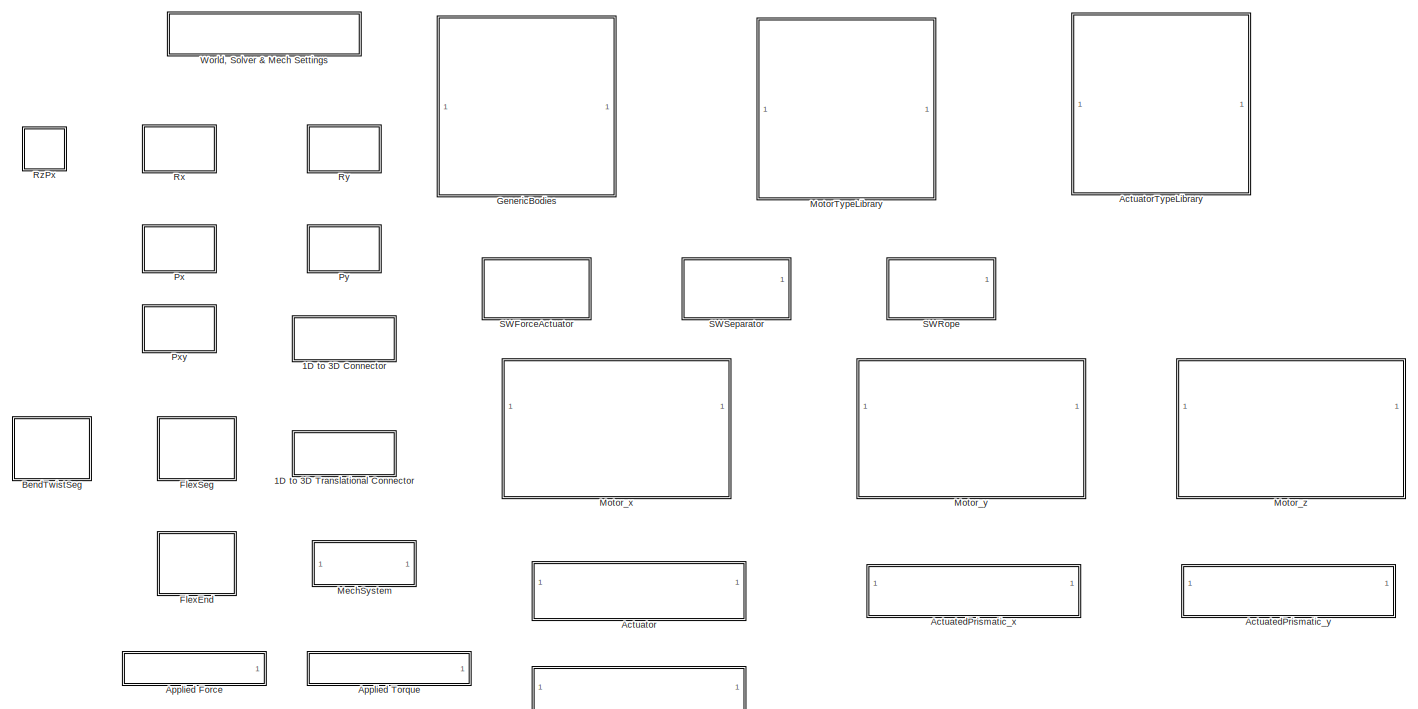
[diagram: root canvas - part 1/2, most of the canvas]
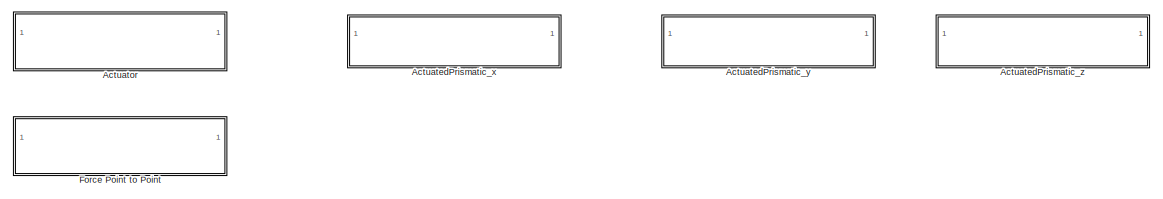
[diagram: root canvas - part 2/2, bottom center region]
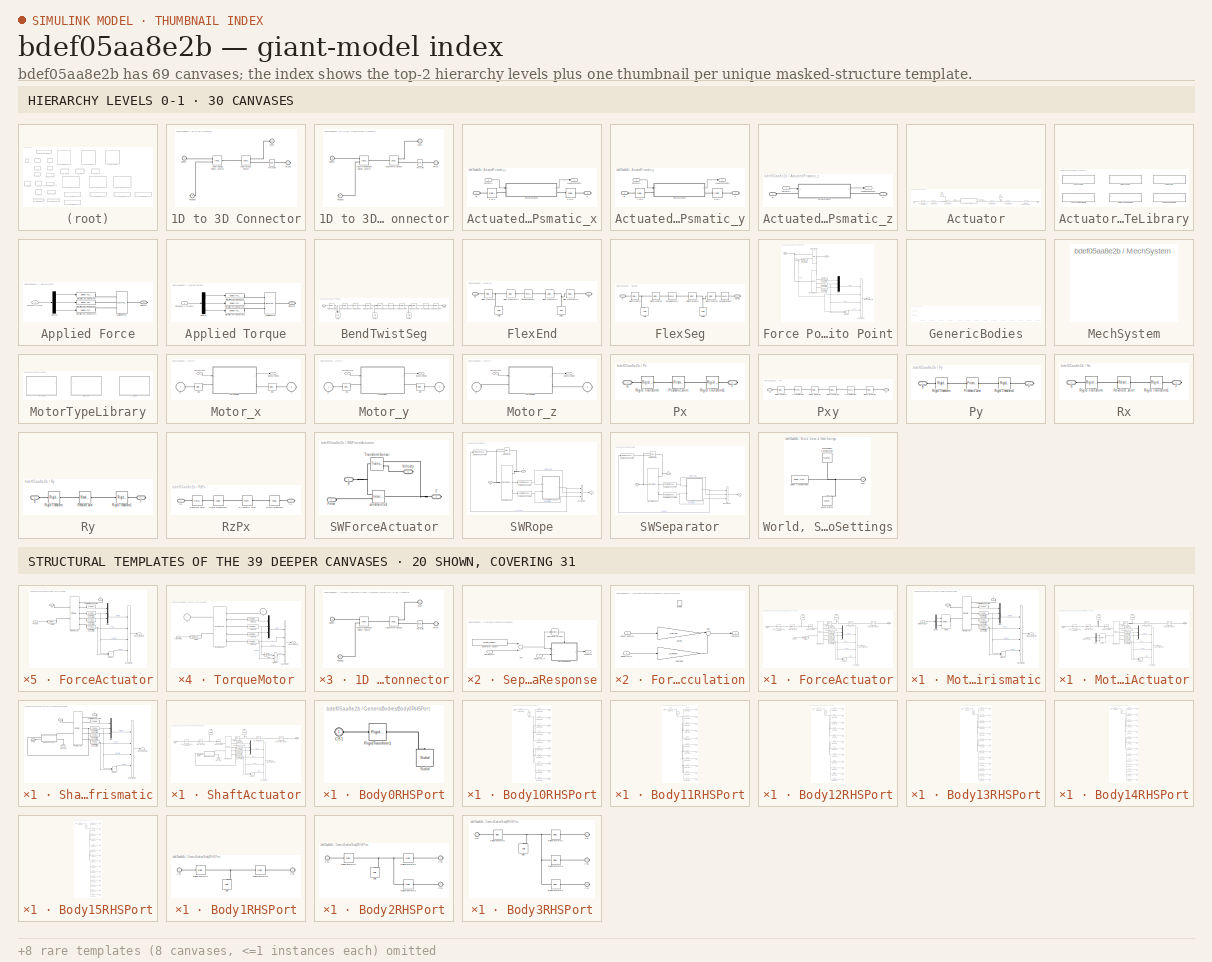
[diagram: thumbnail index - top-2 hierarchy levels (30 canvases) + 20 structural-template representatives of the remaining 39 canvases]
MODEL slx_bdef05aa8e2b
KIND library
CONFIG AbsTol = auto
CONFIG EnableMultiTasking = on
CONFIG FixedStep = auto
CONFIG MaxStep = auto
CONFIG MinStep = auto
CONFIG RelTol = 1e-3
CONFIG SampleTimeConstraint = Unconstrained
CONFIG Solver = ode45
CONFIG SolverName = ode45
CONFIG StartTime = 0.0
CONFIG StopTime = 10.0
BLOCK [SubSystem] 1D to 3D Connector
  Ports = [0, 0, 0, 0, 0, 2, 2]
  RequestExecContextInheritance = off
BLOCK [PMIOPort] 1D to 3D Connector/Housing
  Port = 4
  Side = Right
BLOCK [Reference] 1D to 3D Connector/Ideal Angular Velocity Source  REF=fl_lib/Mechanical/Mechanical Sources/Ideal Angular
Velocity Source
  Ports = [0, 0, 0, 0, 0, 1, 2]
  SourceBlock = fl_lib/Mechanical/Mechanical Sources/Ideal Angular\nVelocity Source
  SourceProductBaseCode = SS
  SourceProductName = Simscape
  SourceType = Ideal Angular\nVelocity Source
BLOCK [Reference] 1D to 3D Connector/Ideal Torque Sensor  REF=fl_lib/Mechanical/Mechanical Sensors/Ideal Torque Sensor
  Ports = [0, 0, 0, 0, 0, 1, 2]
  SourceBlock = fl_lib/Mechanical/Mechanical Sensors/Ideal Torque Sensor
  SourceProductBaseCode = SS
  SourceProductName = Simscape
  SourceType = Ideal Torque Sensor
BLOCK [Reference] 1D to 3D Connector/PS Gain  REF=fl_lib/Physical Signals/Functions/PS Gain
  Ports = [0, 0, 0, 0, 0, 1, 1]
  SourceBlock = fl_lib/Physical Signals/Functions/PS Gain
  SourceProductBaseCode = SS
  SourceProductName = Simscape
  SourceType = PS Gain
BLOCK [PMIOPort] 1D to 3D Connector/Shaft
  Port = 3
  Side = Left
BLOCK [PMIOPort] 1D to 3D Connector/Torque
  Side = Right
BLOCK [PMIOPort] 1D to 3D Connector/Velocity
  Port = 2
  Side = Left
BLOCK [SubSystem] 1D to 3D Translational Connector
  Ports = [0, 0, 0, 0, 0, 2, 2]
  RequestExecContextInheritance = off
  Tag = Mech1D3DConverter
BLOCK [PMIOPort] 1D to 3D Translational Connector/Force
  Side = Right
BLOCK [PMIOPort] 1D to 3D Translational Connector/Housing
  Port = 4
  Side = Right
BLOCK [Reference] 1D to 3D Translational Connector/Ideal Force Sensor  REF=fl_lib/Mechanical/Mechanical Sensors/Ideal Force Sensor
  Ports = [0, 0, 0, 0, 0, 1, 2]
  SourceBlock = fl_lib/Mechanical/Mechanical Sensors/Ideal Force Sensor
  SourceProductBaseCode = SS
  SourceProductName = Simscape
  SourceType = Ideal Force Sensor
BLOCK [Reference] 1D to 3D Translational Connector/Ideal Translational Velocity Source  REF=fl_lib/Mechanical/Mechanical Sources/Ideal Translational
Velocity Source
  Ports = [0, 0, 0, 0, 0, 1, 2]
  SourceBlock = fl_lib/Mechanical/Mechanical Sources/Ideal Translational\nVelocity Source
  SourceProductBaseCode = SS
  SourceProductName = Simscape
  SourceType = Ideal Translational\nVelocity Source
BLOCK [Reference] 1D to 3D Translational Connector/PS Gain  REF=fl_lib/Physical Signals/Functions/PS Gain
  Ports = [0, 0, 0, 0, 0, 1, 1]
  SourceBlock = fl_lib/Physical Signals/Functions/PS Gain
  SourceProductBaseCode = SS
  SourceProductName = Simscape
  SourceType = PS Gain
BLOCK [PMIOPort] 1D to 3D Translational Connector/Shaft
  Port = 3
  Side = Left
BLOCK [PMIOPort] 1D to 3D Translational Connector/Velocity
  Port = 2
  Side = Left
BLOCK [SubSystem] ActuatedPrismatic_x
  Ports = [1, 1, 0, 0, 0, 1, 1]
  RequestExecContextInheritance = off
  Tag = Force
BLOCK [PMIOPort] ActuatedPrismatic_x/B
  Side = Left
BLOCK [PMIOPort] ActuatedPrismatic_x/F
  Port = 2
  Side = Right
BLOCK [Inport] ActuatedPrismatic_x/Force(N)
  IconDisplay = Port number
BLOCK [SubSystem] ActuatedPrismatic_x/ForceActuator
  Ports = [1, 1, 0, 0, 0, 1, 1]
  RequestExecContextInheritance = off
  Tag = Actuator
BLOCK [PMIOPort] ActuatedPrismatic_x/ForceActuator/B
  Side = Left
BLOCK [BusCreator] ActuatedPrismatic_x/ForceActuator/Bus Creator
  DisplayOption = bar
  InheritFromInputs = on
  Inputs = 4
  Ports = [4, 1]
BLOCK [PMIOPort] ActuatedPrismatic_x/ForceActuator/F
  Port = 2
  Side = Right
BLOCK [Inport] ActuatedPrismatic_x/ForceActuator/Force (N)
  IconDisplay = Port number
BLOCK [Outport] ActuatedPrismatic_x/ForceActuator/Measurements
  IconDisplay = Port number
BLOCK [Mux] ActuatedPrismatic_x/ForceActuator/Mux
  DisplayOption = bar
  Inputs = 3
  Ports = [3, 1]
BLOCK [Reference] ActuatedPrismatic_x/ForceActuator/PS-Simulink Converter  REF=nesl_utility/PS-Simulink
Converter
  Ports = [0, 1, 0, 0, 0, 1]
  SourceBlock = nesl_utility/PS-Simulink\nConverter
  SourceProductBaseCode = SS
  SourceProductName = Simscape
  SourceType = PS-Simulink\nConverter
BLOCK [Reference] ActuatedPrismatic_x/ForceActuator/PS-Simulink Converter1  REF=nesl_utility/PS-Simulink
Converter
  Ports = [0, 1, 0, 0, 0, 1]
  SourceBlock = nesl_utility/PS-Simulink\nConverter
  SourceProductBaseCode = SS
  SourceProductName = Simscape
  SourceType = PS-Simulink\nConverter
BLOCK [Reference] ActuatedPrismatic_x/ForceActuator/PS-Simulink Converter2  REF=nesl_utility/PS-Simulink
Converter
  Ports = [0, 1, 0, 0, 0, 1]
  SourceBlock = nesl_utility/PS-Simulink\nConverter
  SourceProductBaseCode = SS
  SourceProductName = Simscape
  SourceType = PS-Simulink\nConverter
BLOCK [Reference] ActuatedPrismatic_x/ForceActuator/PS-Simulink Converter3  REF=nesl_utility/PS-Simulink
Converter
  Ports = [0, 1, 0, 0, 0, 1]
  SourceBlock = nesl_utility/PS-Simulink\nConverter
  SourceProductBaseCode = SS
  SourceProductName = Simscape
  SourceType = PS-Simulink\nConverter
BLOCK [Reference] ActuatedPrismatic_x/ForceActuator/Prismatic Joint  REF=sm_lib/Joints/Prismatic
Joint
  Ports = [0, 0, 0, 0, 0, 2, 5]
  SourceBlock = sm_lib/Joints/Prismatic\nJoint
  SourceProductBaseCode = MS
  SourceProductName = Simscape Multibody
  SourceType = Prismatic\nJoint
BLOCK [Product] ActuatedPrismatic_x/ForceActuator/Product
  InputSameDT = off
  OutDataTypeStr = Inherit: Inherit via internal rule
  Ports = [2, 1]
  RndMeth = Floor
  SaturateOnIntegerOverflow = off
BLOCK [Reference] ActuatedPrismatic_x/ForceActuator/UnitsIn  REF=nesl_utility/Simulink-PS
Converter
  Ports = [1, 0, 0, 0, 0, 0, 1]
  SourceBlock = nesl_utility/Simulink-PS\nConverter
  SourceProductBaseCode = SS
  SourceProductName = Simscape
  SourceType = Simulink-PS\nConverter
BLOCK [Outport] ActuatedPrismatic_x/Measurements
  IconDisplay = Port number
BLOCK [Reference] ActuatedPrismatic_x/x to z  REF=sm_lib/Frames and
Transforms/Rigid
Transform
  Ports = [0, 0, 0, 0, 0, 1, 1]
  SourceBlock = sm_lib/Frames and\nTransforms/Rigid\nTransform
  SourceProductBaseCode = MS
  SourceProductName = Simscape Multibody
  SourceType = Rigid\nTransform
BLOCK [Reference] ActuatedPrismatic_x/z to x  REF=sm_lib/Frames and
Transforms/Rigid
Transform
  Ports = [0, 0, 0, 0, 0, 1, 1]
  SourceBlock = sm_lib/Frames and\nTransforms/Rigid\nTransform
  SourceProductBaseCode = MS
  SourceProductName = Simscape Multibody
  SourceType = Rigid\nTransform
BLOCK [SubSystem] ActuatedPrismatic_y
  Ports = [1, 1, 0, 0, 0, 1, 1]
  RequestExecContextInheritance = off
  Tag = Force
BLOCK [PMIOPort] ActuatedPrismatic_y/B
  Side = Left
BLOCK [PMIOPort] ActuatedPrismatic_y/F
  Port = 2
  Side = Right
BLOCK [Inport] ActuatedPrismatic_y/Force(N)
  IconDisplay = Port number
BLOCK [SubSystem] ActuatedPrismatic_y/ForceActuator
  Ports = [1, 1, 0, 0, 0, 1, 1]
  RequestExecContextInheritance = off
  Tag = Actuator
BLOCK [PMIOPort] ActuatedPrismatic_y/ForceActuator/B
  Side = Left
BLOCK [BusCreator] ActuatedPrismatic_y/ForceActuator/Bus Creator
  DisplayOption = bar
  InheritFromInputs = on
  Inputs = 4
  Ports = [4, 1]
BLOCK [PMIOPort] ActuatedPrismatic_y/ForceActuator/F
  Port = 2
  Side = Right
BLOCK [Inport] ActuatedPrismatic_y/ForceActuator/Force (N)
  IconDisplay = Port number
BLOCK [Outport] ActuatedPrismatic_y/ForceActuator/Measurements
  IconDisplay = Port number
BLOCK [Mux] ActuatedPrismatic_y/ForceActuator/Mux
  DisplayOption = bar
  Inputs = 3
  Ports = [3, 1]
BLOCK [Reference] ActuatedPrismatic_y/ForceActuator/PS-Simulink Converter  REF=nesl_utility/PS-Simulink
Converter
  Ports = [0, 1, 0, 0, 0, 1]
  SourceBlock = nesl_utility/PS-Simulink\nConverter
  SourceProductBaseCode = SS
  SourceProductName = Simscape
  SourceType = PS-Simulink\nConverter
BLOCK [Reference] ActuatedPrismatic_y/ForceActuator/PS-Simulink Converter1  REF=nesl_utility/PS-Simulink
Converter
  Ports = [0, 1, 0, 0, 0, 1]
  SourceBlock = nesl_utility/PS-Simulink\nConverter
  SourceProductBaseCode = SS
  SourceProductName = Simscape
  SourceType = PS-Simulink\nConverter
BLOCK [Reference] ActuatedPrismatic_y/ForceActuator/PS-Simulink Converter2  REF=nesl_utility/PS-Simulink
Converter
  Ports = [0, 1, 0, 0, 0, 1]
  SourceBlock = nesl_utility/PS-Simulink\nConverter
  SourceProductBaseCode = SS
  SourceProductName = Simscape
  SourceType = PS-Simulink\nConverter
BLOCK [Reference] ActuatedPrismatic_y/ForceActuator/PS-Simulink Converter3  REF=nesl_utility/PS-Simulink
Converter
  Ports = [0, 1, 0, 0, 0, 1]
  SourceBlock = nesl_utility/PS-Simulink\nConverter
  SourceProductBaseCode = SS
  SourceProductName = Simscape
  SourceType = PS-Simulink\nConverter
BLOCK [Reference] ActuatedPrismatic_y/ForceActuator/Prismatic Joint  REF=sm_lib/Joints/Prismatic
Joint
  Ports = [0, 0, 0, 0, 0, 2, 5]
  SourceBlock = sm_lib/Joints/Prismatic\nJoint
  SourceProductBaseCode = MS
  SourceProductName = Simscape Multibody
  SourceType = Prismatic\nJoint
BLOCK [Product] ActuatedPrismatic_y/ForceActuator/Product
  InputSameDT = off
  OutDataTypeStr = Inherit: Inherit via internal rule
  Ports = [2, 1]
  RndMeth = Floor
  SaturateOnIntegerOverflow = off
BLOCK [Reference] ActuatedPrismatic_y/ForceActuator/UnitsIn  REF=nesl_utility/Simulink-PS
Converter
  Ports = [1, 0, 0, 0, 0, 0, 1]
  SourceBlock = nesl_utility/Simulink-PS\nConverter
  SourceProductBaseCode = SS
  SourceProductName = Simscape
  SourceType = Simulink-PS\nConverter
BLOCK [Outport] ActuatedPrismatic_y/Measurements
  IconDisplay = Port number
BLOCK [Reference] ActuatedPrismatic_y/y to z  REF=sm_lib/Frames and
Transforms/Rigid
Transform
  Ports = [0, 0, 0, 0, 0, 1, 1]
  SourceBlock = sm_lib/Frames and\nTransforms/Rigid\nTransform
  SourceProductBaseCode = MS
  SourceProductName = Simscape Multibody
  SourceType = Rigid\nTransform
BLOCK [Reference] ActuatedPrismatic_y/z to y   REF=sm_lib/Frames and
Transforms/Rigid
Transform
  Ports = [0, 0, 0, 0, 0, 1, 1]
  SourceBlock = sm_lib/Frames and\nTransforms/Rigid\nTransform
  SourceProductBaseCode = MS
  SourceProductName = Simscape Multibody
  SourceType = Rigid\nTransform
BLOCK [SubSystem] ActuatedPrismatic_z
  Ports = [1, 1, 0, 0, 0, 1, 1]
  RequestExecContextInheritance = off
  Tag = Force
BLOCK [PMIOPort] ActuatedPrismatic_z/B
  Side = Left
BLOCK [PMIOPort] ActuatedPrismatic_z/F
  Port = 2
  Side = Right
BLOCK [Inport] ActuatedPrismatic_z/Force(N)
  IconDisplay = Port number
BLOCK [SubSystem] ActuatedPrismatic_z/ForceActuator
  Ports = [1, 1, 0, 0, 0, 1, 1]
  RequestExecContextInheritance = off
  Tag = Actuator
BLOCK [PMIOPort] ActuatedPrismatic_z/ForceActuator/B
  Side = Left
BLOCK [BusCreator] ActuatedPrismatic_z/ForceActuator/Bus Creator
  DisplayOption = bar
  InheritFromInputs = on
  Inputs = 4
  Ports = [4, 1]
BLOCK [PMIOPort] ActuatedPrismatic_z/ForceActuator/F
  Port = 2
  Side = Right
BLOCK [Inport] ActuatedPrismatic_z/ForceActuator/Force (N)
  IconDisplay = Port number
BLOCK [Outport] ActuatedPrismatic_z/ForceActuator/Measurements
  IconDisplay = Port number
BLOCK [Mux] ActuatedPrismatic_z/ForceActuator/Mux
  DisplayOption = bar
  Inputs = 3
  Ports = [3, 1]
BLOCK [Reference] ActuatedPrismatic_z/ForceActuator/PS-Simulink Converter  REF=nesl_utility/PS-Simulink
Converter
  Ports = [0, 1, 0, 0, 0, 1]
  SourceBlock = nesl_utility/PS-Simulink\nConverter
  SourceProductBaseCode = SS
  SourceProductName = Simscape
  SourceType = PS-Simulink\nConverter
BLOCK [Reference] ActuatedPrismatic_z/ForceActuator/PS-Simulink Converter1  REF=nesl_utility/PS-Simulink
Converter
  Ports = [0, 1, 0, 0, 0, 1]
  SourceBlock = nesl_utility/PS-Simulink\nConverter
  SourceProductBaseCode = SS
  SourceProductName = Simscape
  SourceType = PS-Simulink\nConverter
BLOCK [Reference] ActuatedPrismatic_z/ForceActuator/PS-Simulink Converter2  REF=nesl_utility/PS-Simulink
Converter
  Ports = [0, 1, 0, 0, 0, 1]
  SourceBlock = nesl_utility/PS-Simulink\nConverter
  SourceProductBaseCode = SS
  SourceProductName = Simscape
  SourceType = PS-Simulink\nConverter
BLOCK [Reference] ActuatedPrismatic_z/ForceActuator/PS-Simulink Converter3  REF=nesl_utility/PS-Simulink
Converter
  Ports = [0, 1, 0, 0, 0, 1]
  SourceBlock = nesl_utility/PS-Simulink\nConverter
  SourceProductBaseCode = SS
  SourceProductName = Simscape
  SourceType = PS-Simulink\nConverter
BLOCK [Reference] ActuatedPrismatic_z/ForceActuator/Prismatic Joint  REF=sm_lib/Joints/Prismatic
Joint
  Ports = [0, 0, 0, 0, 0, 2, 5]
  SourceBlock = sm_lib/Joints/Prismatic\nJoint
  SourceProductBaseCode = MS
  SourceProductName = Simscape Multibody
  SourceType = Prismatic\nJoint
BLOCK [Product] ActuatedPrismatic_z/ForceActuator/Product
  InputSameDT = off
  OutDataTypeStr = Inherit: Inherit via internal rule
  Ports = [2, 1]
  RndMeth = Floor
  SaturateOnIntegerOverflow = off
BLOCK [Reference] ActuatedPrismatic_z/ForceActuator/UnitsIn  REF=nesl_utility/Simulink-PS
Converter
  Ports = [1, 0, 0, 0, 0, 0, 1]
  SourceBlock = nesl_utility/Simulink-PS\nConverter
  SourceProductBaseCode = SS
  SourceProductName = Simscape
  SourceType = Simulink-PS\nConverter
BLOCK [Outport] ActuatedPrismatic_z/Measurements
  IconDisplay = Port number
BLOCK [SubSystem] Actuator
  Ports = [1, 1, 0, 0, 0, 1, 1]
  RequestExecContextInheritance = off
  Tag = Force
BLOCK [PMIOPort] Actuator/B
  Side = Left
BLOCK [PMIOPort] Actuator/F
  Port = 2
  Side = Right
BLOCK [Inport] Actuator/Force(N)
  IconDisplay = Port number
BLOCK [SubSystem] Actuator/ForceActuator
  Ports = [1, 1, 0, 0, 0, 1, 1]
  RequestExecContextInheritance = off
  Tag = Actuator
BLOCK [PMIOPort] Actuator/ForceActuator/B
  Side = Left
BLOCK [BusCreator] Actuator/ForceActuator/Bus Creator
  DisplayOption = bar
  InheritFromInputs = on
  Inputs = 4
  Ports = [4, 1]
BLOCK [PMIOPort] Actuator/ForceActuator/F
  Port = 2
  Side = Right
BLOCK [Inport] Actuator/ForceActuator/Force (N)
  IconDisplay = Port number
BLOCK [Outport] Actuator/ForceActuator/Measurements
  IconDisplay = Port number
BLOCK [Mux] Actuator/ForceActuator/Mux
  DisplayOption = bar
  Inputs = 3
  Ports = [3, 1]
BLOCK [Reference] Actuator/ForceActuator/PS-Simulink Converter  REF=nesl_utility/PS-Simulink
Converter
  Ports = [0, 1, 0, 0, 0, 1]
  SourceBlock = nesl_utility/PS-Simulink\nConverter
  SourceProductBaseCode = SS
  SourceProductName = Simscape
  SourceType = PS-Simulink\nConverter
BLOCK [Reference] Actuator/ForceActuator/PS-Simulink Converter1  REF=nesl_utility/PS-Simulink
Converter
  Ports = [0, 1, 0, 0, 0, 1]
  SourceBlock = nesl_utility/PS-Simulink\nConverter
  SourceProductBaseCode = SS
  SourceProductName = Simscape
  SourceType = PS-Simulink\nConverter
BLOCK [Reference] Actuator/ForceActuator/PS-Simulink Converter2  REF=nesl_utility/PS-Simulink
Converter
  Ports = [0, 1, 0, 0, 0, 1]
  SourceBlock = nesl_utility/PS-Simulink\nConverter
  SourceProductBaseCode = SS
  SourceProductName = Simscape
  SourceType = PS-Simulink\nConverter
BLOCK [Reference] Actuator/ForceActuator/PS-Simulink Converter3  REF=nesl_utility/PS-Simulink
Converter
  Ports = [0, 1, 0, 0, 0, 1]
  SourceBlock = nesl_utility/PS-Simulink\nConverter
  SourceProductBaseCode = SS
  SourceProductName = Simscape
  SourceType = PS-Simulink\nConverter
BLOCK [Reference] Actuator/ForceActuator/Prismatic Joint  REF=sm_lib/Joints/Prismatic
Joint
  Ports = [0, 0, 0, 0, 0, 2, 5]
  SourceBlock = sm_lib/Joints/Prismatic\nJoint
  SourceProductBaseCode = MS
  SourceProductName = Simscape Multibody
  SourceType = Prismatic\nJoint
BLOCK [Product] Actuator/ForceActuator/Product
  InputSameDT = off
  OutDataTypeStr = Inherit: Inherit via internal rule
  Ports = [2, 1]
  RndMeth = Floor
  SaturateOnIntegerOverflow = off
BLOCK [Reference] Actuator/ForceActuator/UnitsIn  REF=nesl_utility/Simulink-PS
Converter
  Ports = [1, 0, 0, 0, 0, 0, 1]
  SourceBlock = nesl_utility/Simulink-PS\nConverter
  SourceProductBaseCode = SS
  SourceProductName = Simscape
  SourceType = Simulink-PS\nConverter
BLOCK [Outport] Actuator/Measurements
  IconDisplay = Port number
BLOCK [Reference] Actuator/RevXFor_ExtensionActuator  REF=sm_lib/Joints/Universal
Joint
  Ports = [0, 0, 0, 0, 0, 1, 1]
  SourceBlock = sm_lib/Joints/Universal\nJoint
  SourceProductBaseCode = MS
  SourceProductName = Simscape Multibody
  SourceType = Universal\nJoint
BLOCK [Reference] Actuator/Rigid Transform  REF=sm_lib/Frames and
Transforms/Rigid
Transform
  Ports = [0, 0, 0, 0, 0, 1, 1]
  SourceBlock = sm_lib/Frames and\nTransforms/Rigid\nTransform
  SourceProductBaseCode = MS
  SourceProductName = Simscape Multibody
  SourceType = Rigid\nTransform
BLOCK [Reference] Actuator/Rigid Transform2  REF=sm_lib/Frames and
Transforms/Rigid
Transform
  Ports = [0, 0, 0, 0, 0, 1, 1]
  SourceBlock = sm_lib/Frames and\nTransforms/Rigid\nTransform
  SourceProductBaseCode = MS
  SourceProductName = Simscape Multibody
  SourceType = Rigid\nTransform
BLOCK [Reference] Actuator/Rigid Transform3  REF=sm_lib/Frames and
Transforms/Rigid
Transform
  Ports = [0, 0, 0, 0, 0, 1, 1]
  SourceBlock = sm_lib/Frames and\nTransforms/Rigid\nTransform
  SourceProductBaseCode = MS
  SourceProductName = Simscape Multibody
  SourceType = Rigid\nTransform
BLOCK [Reference] Actuator/Solid  REF=sm_lib/Body Elements/Solid
  Ports = [0, 0, 0, 0, 0, 0, 1]
  SourceBlock = sm_lib/Body Elements/Solid
  SourceProductBaseCode = MS
  SourceProductName = Simscape Multibody
  SourceType = Solid
BLOCK [Reference] Actuator/Solid1  REF=sm_lib/Body Elements/Solid
  Ports = [0, 0, 0, 0, 0, 0, 1]
  SourceBlock = sm_lib/Body Elements/Solid
  SourceProductBaseCode = MS
  SourceProductName = Simscape Multibody
  SourceType = Solid
BLOCK [Reference] Actuator/SphericalFor_ExtensionActuator  REF=sm_lib/Joints/Spherical
Joint
  Ports = [0, 0, 0, 0, 0, 1, 1]
  SourceBlock = sm_lib/Joints/Spherical\nJoint
  SourceProductBaseCode = MS
  SourceProductName = Simscape Multibody
  SourceType = Spherical\nJoint
BLOCK [Reference] Actuator/TransformThatSetsF  REF=sm_lib/Frames and
Transforms/Rigid
Transform
  Ports = [0, 0, 0, 0, 0, 1, 1]
  SourceBlock = sm_lib/Frames and\nTransforms/Rigid\nTransform
  SourceProductBaseCode = MS
  SourceProductName = Simscape Multibody
  SourceType = Rigid\nTransform
BLOCK [SubSystem] ActuatorTypeLibrary
  Ports = []
  RequestExecContextInheritance = off
BLOCK [SubSystem] ActuatorTypeLibrary/ForceActuatedPrismatic
  Ports = [1, 1, 0, 0, 0, 1, 1]
  RequestExecContextInheritance = off
  Tag = Actuator
BLOCK [PMIOPort] ActuatorTypeLibrary/ForceActuatedPrismatic/B
  Side = Left
BLOCK [BusCreator] ActuatorTypeLibrary/ForceActuatedPrismatic/Bus Creator
  DisplayOption = bar
  InheritFromInputs = on
  Inputs = 4
  Ports = [4, 1]
BLOCK [PMIOPort] ActuatorTypeLibrary/ForceActuatedPrismatic/F
  Port = 2
  Side = Right
BLOCK [Inport] ActuatorTypeLibrary/ForceActuatedPrismatic/Force (N)
  IconDisplay = Port number
BLOCK [Outport] ActuatorTypeLibrary/ForceActuatedPrismatic/Measurements
  IconDisplay = Port number
BLOCK [Mux] ActuatorTypeLibrary/ForceActuatedPrismatic/Mux
  DisplayOption = bar
  Inputs = 3
  Ports = [3, 1]
BLOCK [Reference] ActuatorTypeLibrary/ForceActuatedPrismatic/PS-Simulink Converter  REF=nesl_utility/PS-Simulink
Converter
  Ports = [0, 1, 0, 0, 0, 1]
  SourceBlock = nesl_utility/PS-Simulink\nConverter
  SourceProductBaseCode = SS
  SourceProductName = Simscape
  SourceType = PS-Simulink\nConverter
BLOCK [Reference] ActuatorTypeLibrary/ForceActuatedPrismatic/PS-Simulink Converter1  REF=nesl_utility/PS-Simulink
Converter
  Ports = [0, 1, 0, 0, 0, 1]
  SourceBlock = nesl_utility/PS-Simulink\nConverter
  SourceProductBaseCode = SS
  SourceProductName = Simscape
  SourceType = PS-Simulink\nConverter
BLOCK [Reference] ActuatorTypeLibrary/ForceActuatedPrismatic/PS-Simulink Converter2  REF=nesl_utility/PS-Simulink
Converter
  Ports = [0, 1, 0, 0, 0, 1]
  SourceBlock = nesl_utility/PS-Simulink\nConverter
  SourceProductBaseCode = SS
  SourceProductName = Simscape
  SourceType = PS-Simulink\nConverter
BLOCK [Reference] ActuatorTypeLibrary/ForceActuatedPrismatic/PS-Simulink Converter3  REF=nesl_utility/PS-Simulink
Converter
  Ports = [0, 1, 0, 0, 0, 1]
  SourceBlock = nesl_utility/PS-Simulink\nConverter
  SourceProductBaseCode = SS
  SourceProductName = Simscape
  SourceType = PS-Simulink\nConverter
BLOCK [Reference] ActuatorTypeLibrary/ForceActuatedPrismatic/Prismatic Joint  REF=sm_lib/Joints/Prismatic
Joint
  Ports = [0, 0, 0, 0, 0, 2, 5]
  SourceBlock = sm_lib/Joints/Prismatic\nJoint
  SourceProductBaseCode = MS
  SourceProductName = Simscape Multibody
  SourceType = Prismatic\nJoint
BLOCK [Product] ActuatorTypeLibrary/ForceActuatedPrismatic/Product
  InputSameDT = off
  OutDataTypeStr = Inherit: Inherit via internal rule
  Ports = [2, 1]
  RndMeth = Floor
  SaturateOnIntegerOverflow = off
BLOCK [Reference] ActuatorTypeLibrary/ForceActuatedPrismatic/UnitsIn  REF=nesl_utility/Simulink-PS
Converter
  Ports = [1, 0, 0, 0, 0, 0, 1]
  SourceBlock = nesl_utility/Simulink-PS\nConverter
  SourceProductBaseCode = SS
  SourceProductName = Simscape
  SourceType = Simulink-PS\nConverter
BLOCK [SubSystem] ActuatorTypeLibrary/ForceActuator
  Ports = [1, 1, 0, 0, 0, 1, 1]
  RequestExecContextInheritance = off
  Tag = Actuator
BLOCK [PMIOPort] ActuatorTypeLibrary/ForceActuator/B
  Side = Left
BLOCK [BusCreator] ActuatorTypeLibrary/ForceActuator/Bus Creator
  DisplayOption = bar
  InheritFromInputs = on
  Inputs = 4
  Ports = [4, 1]
BLOCK [PMIOPort] ActuatorTypeLibrary/ForceActuator/F
  Port = 2
  Side = Right
BLOCK [Inport] ActuatorTypeLibrary/ForceActuator/Force (N)
  IconDisplay = Port number
BLOCK [Outport] ActuatorTypeLibrary/ForceActuator/Measurements
  IconDisplay = Port number
BLOCK [Mux] ActuatorTypeLibrary/ForceActuator/Mux
  DisplayOption = bar
  Inputs = 3
  Ports = [3, 1]
BLOCK [Reference] ActuatorTypeLibrary/ForceActuator/PS-Simulink Converter  REF=nesl_utility/PS-Simulink
Converter
  Ports = [0, 1, 0, 0, 0, 1]
  SourceBlock = nesl_utility/PS-Simulink\nConverter
  SourceProductBaseCode = SS
  SourceProductName = Simscape
  SourceType = PS-Simulink\nConverter
BLOCK [Reference] ActuatorTypeLibrary/ForceActuator/PS-Simulink Converter1  REF=nesl_utility/PS-Simulink
Converter
  Ports = [0, 1, 0, 0, 0, 1]
  SourceBlock = nesl_utility/PS-Simulink\nConverter
  SourceProductBaseCode = SS
  SourceProductName = Simscape
  SourceType = PS-Simulink\nConverter
BLOCK [Reference] ActuatorTypeLibrary/ForceActuator/PS-Simulink Converter2  REF=nesl_utility/PS-Simulink
Converter
  Ports = [0, 1, 0, 0, 0, 1]
  SourceBlock = nesl_utility/PS-Simulink\nConverter
  SourceProductBaseCode = SS
  SourceProductName = Simscape
  SourceType = PS-Simulink\nConverter
BLOCK [Reference] ActuatorTypeLibrary/ForceActuator/PS-Simulink Converter3  REF=nesl_utility/PS-Simulink
Converter
  Ports = [0, 1, 0, 0, 0, 1]
  SourceBlock = nesl_utility/PS-Simulink\nConverter
  SourceProductBaseCode = SS
  SourceProductName = Simscape
  SourceType = PS-Simulink\nConverter
BLOCK [Reference] ActuatorTypeLibrary/ForceActuator/Prismatic Joint  REF=sm_lib/Joints/Prismatic
Joint
  Ports = [0, 0, 0, 0, 0, 2, 5]
  SourceBlock = sm_lib/Joints/Prismatic\nJoint
  SourceProductBaseCode = MS
  SourceProductName = Simscape Multibody
  SourceType = Prismatic\nJoint
BLOCK [Product] ActuatorTypeLibrary/ForceActuator/Product
  InputSameDT = off
  OutDataTypeStr = Inherit: Inherit via internal rule
  Ports = [2, 1]
  RndMeth = Floor
  SaturateOnIntegerOverflow = off
BLOCK [Reference] ActuatorTypeLibrary/ForceActuator/RevXFor_ExtensionActuator  REF=sm_lib/Joints/Universal
Joint
  Ports = [0, 0, 0, 0, 0, 1, 1]
  SourceBlock = sm_lib/Joints/Universal\nJoint
  SourceProductBaseCode = MS
  SourceProductName = Simscape Multibody
  SourceType = Universal\nJoint
BLOCK [Reference] ActuatorTypeLibrary/ForceActuator/Rigid Transform  REF=sm_lib/Frames and
Transforms/Rigid
Transform
  Ports = [0, 0, 0, 0, 0, 1, 1]
  SourceBlock = sm_lib/Frames and\nTransforms/Rigid\nTransform
  SourceProductBaseCode = MS
  SourceProductName = Simscape Multibody
  SourceType = Rigid\nTransform
BLOCK [Reference] ActuatorTypeLibrary/ForceActuator/Rigid Transform2  REF=sm_lib/Frames and
Transforms/Rigid
Transform
  Ports = [0, 0, 0, 0, 0, 1, 1]
  SourceBlock = sm_lib/Frames and\nTransforms/Rigid\nTransform
  SourceProductBaseCode = MS
  SourceProductName = Simscape Multibody
  SourceType = Rigid\nTransform
BLOCK [Reference] ActuatorTypeLibrary/ForceActuator/Rigid Transform3  REF=sm_lib/Frames and
Transforms/Rigid
Transform
  Ports = [0, 0, 0, 0, 0, 1, 1]
  SourceBlock = sm_lib/Frames and\nTransforms/Rigid\nTransform
  SourceProductBaseCode = MS
  SourceProductName = Simscape Multibody
  SourceType = Rigid\nTransform
BLOCK [Reference] ActuatorTypeLibrary/ForceActuator/Solid  REF=sm_lib/Body Elements/Solid
  Ports = [0, 0, 0, 0, 0, 0, 1]
  SourceBlock = sm_lib/Body Elements/Solid
  SourceProductBaseCode = MS
  SourceProductName = Simscape Multibody
  SourceType = Solid
BLOCK [Reference] ActuatorTypeLibrary/ForceActuator/Solid1  REF=sm_lib/Body Elements/Solid
  Ports = [0, 0, 0, 0, 0, 0, 1]
  SourceBlock = sm_lib/Body Elements/Solid
  SourceProductBaseCode = MS
  SourceProductName = Simscape Multibody
  SourceType = Solid
BLOCK [Reference] ActuatorTypeLibrary/ForceActuator/SphericalFor_ExtensionActuator  REF=sm_lib/Joints/Spherical
Joint
  Ports = [0, 0, 0, 0, 0, 1, 1]
  SourceBlock = sm_lib/Joints/Spherical\nJoint
  SourceProductBaseCode = MS
  SourceProductName = Simscape Multibody
  SourceType = Spherical\nJoint
BLOCK [Reference] ActuatorTypeLibrary/ForceActuator/TransformThatSetsF  REF=sm_lib/Frames and
Transforms/Rigid
Transform
  Ports = [0, 0, 0, 0, 0, 1, 1]
  SourceBlock = sm_lib/Frames and\nTransforms/Rigid\nTransform
  SourceProductBaseCode = MS
  SourceProductName = Simscape Multibody
  SourceType = Rigid\nTransform
BLOCK [Reference] ActuatorTypeLibrary/ForceActuator/UnitsIn  REF=nesl_utility/Simulink-PS
Converter
  Ports = [1, 0, 0, 0, 0, 0, 1]
  SourceBlock = nesl_utility/Simulink-PS\nConverter
  SourceProductBaseCode = SS
  SourceProductName = Simscape
  SourceType = Simulink-PS\nConverter
BLOCK [SubSystem] ActuatorTypeLibrary/MotionActuatedPrismatic
  Ports = [1, 1, 0, 0, 0, 1, 1]
  RequestExecContextInheritance = off
  Tag = Actuator
BLOCK [PMIOPort] ActuatorTypeLibrary/MotionActuatedPrismatic/B
  Side = Left
BLOCK [BusCreator] ActuatorTypeLibrary/MotionActuatedPrismatic/Bus Creator
  DisplayOption = bar
  InheritFromInputs = on
  Inputs = 4
  Ports = [4, 1]
BLOCK [Demux] ActuatorTypeLibrary/MotionActuatedPrismatic/Demux
  DisplayOption = bar
  Outputs = 3
  Ports = [1, 3]
BLOCK [PMIOPort] ActuatorTypeLibrary/MotionActuatedPrismatic/F
  Port = 2
  Side = Right
BLOCK [Outport] ActuatorTypeLibrary/MotionActuatedPrismatic/Measurements
  IconDisplay = Port number
BLOCK [Inport] ActuatorTypeLibrary/MotionActuatedPrismatic/Motion ( pva, m, s )
  IconDisplay = Port number
BLOCK [Mux] ActuatorTypeLibrary/MotionActuatedPrismatic/Mux
  DisplayOption = bar
  Inputs = 3
  Ports = [3, 1]
BLOCK [Reference] ActuatorTypeLibrary/MotionActuatedPrismatic/PS-Simulink Converter  REF=nesl_utility/PS-Simulink
Converter
  Ports = [0, 1, 0, 0, 0, 1]
  SourceBlock = nesl_utility/PS-Simulink\nConverter
  SourceProductBaseCode = SS
  SourceProductName = Simscape
  SourceType = PS-Simulink\nConverter
BLOCK [Reference] ActuatorTypeLibrary/MotionActuatedPrismatic/PS-Simulink Converter1  REF=nesl_utility/PS-Simulink
Converter
  Ports = [0, 1, 0, 0, 0, 1]
  SourceBlock = nesl_utility/PS-Simulink\nConverter
  SourceProductBaseCode = SS
  SourceProductName = Simscape
  SourceType = PS-Simulink\nConverter
BLOCK [Reference] ActuatorTypeLibrary/MotionActuatedPrismatic/PS-Simulink Converter2  REF=nesl_utility/PS-Simulink
Converter
  Ports = [0, 1, 0, 0, 0, 1]
  SourceBlock = nesl_utility/PS-Simulink\nConverter
  SourceProductBaseCode = SS
  SourceProductName = Simscape
  SourceType = PS-Simulink\nConverter
BLOCK [Reference] ActuatorTypeLibrary/MotionActuatedPrismatic/PS-Simulink Converter3  REF=nesl_utility/PS-Simulink
Converter
  Ports = [0, 1, 0, 0, 0, 1]
  SourceBlock = nesl_utility/PS-Simulink\nConverter
  SourceProductBaseCode = SS
  SourceProductName = Simscape
  SourceType = PS-Simulink\nConverter
BLOCK [Reference] ActuatorTypeLibrary/MotionActuatedPrismatic/Prismatic Joint  REF=sm_lib/Joints/Prismatic
Joint
  Ports = [0, 0, 0, 0, 0, 2, 5]
  SourceBlock = sm_lib/Joints/Prismatic\nJoint
  SourceProductBaseCode = MS
  SourceProductName = Simscape Multibody
  SourceType = Prismatic\nJoint
BLOCK [Product] ActuatorTypeLibrary/MotionActuatedPrismatic/Product
  InputSameDT = off
  OutDataTypeStr = Inherit: Inherit via internal rule
  Ports = [2, 1]
  RndMeth = Floor
  SaturateOnIntegerOverflow = off
BLOCK [Reference] ActuatorTypeLibrary/MotionActuatedPrismatic/UnitsIn  REF=nesl_utility/Simulink-PS
Converter
  Ports = [3, 0, 0, 0, 0, 0, 1]
  SourceBlock = nesl_utility/Simulink-PS\nConverter
  SourceProductBaseCode = SS
  SourceProductName = Simscape
  SourceType = Simulink-PS\nConverter
BLOCK [SubSystem] ActuatorTypeLibrary/MotionActuator
  Ports = [1, 1, 0, 0, 0, 1, 1]
  RequestExecContextInheritance = off
  Tag = Actuator
BLOCK [PMIOPort] ActuatorTypeLibrary/MotionActuator/B
  Side = Left
BLOCK [BusCreator] ActuatorTypeLibrary/MotionActuator/Bus Creator
  DisplayOption = bar
  InheritFromInputs = on
  Inputs = 4
  Ports = [4, 1]
BLOCK [Demux] ActuatorTypeLibrary/MotionActuator/Demux
  DisplayOption = bar
  Outputs = 3
  Ports = [1, 3]
BLOCK [PMIOPort] ActuatorTypeLibrary/MotionActuator/F
  Port = 2
  Side = Right
BLOCK [Outport] ActuatorTypeLibrary/MotionActuator/Measurements
  IconDisplay = Port number
BLOCK [Inport] ActuatorTypeLibrary/MotionActuator/Motion ( pva, m, s )
  IconDisplay = Port number
BLOCK [Mux] ActuatorTypeLibrary/MotionActuator/Mux
  DisplayOption = bar
  Inputs = 3
  Ports = [3, 1]
BLOCK [Reference] ActuatorTypeLibrary/MotionActuator/PS-Simulink Converter  REF=nesl_utility/PS-Simulink
Converter
  Ports = [0, 1, 0, 0, 0, 1]
  SourceBlock = nesl_utility/PS-Simulink\nConverter
  SourceProductBaseCode = SS
  SourceProductName = Simscape
  SourceType = PS-Simulink\nConverter
BLOCK [Reference] ActuatorTypeLibrary/MotionActuator/PS-Simulink Converter1  REF=nesl_utility/PS-Simulink
Converter
  Ports = [0, 1, 0, 0, 0, 1]
  SourceBlock = nesl_utility/PS-Simulink\nConverter
  SourceProductBaseCode = SS
  SourceProductName = Simscape
  SourceType = PS-Simulink\nConverter
BLOCK [Reference] ActuatorTypeLibrary/MotionActuator/PS-Simulink Converter2  REF=nesl_utility/PS-Simulink
Converter
  Ports = [0, 1, 0, 0, 0, 1]
  SourceBlock = nesl_utility/PS-Simulink\nConverter
  SourceProductBaseCode = SS
  SourceProductName = Simscape
  SourceType = PS-Simulink\nConverter
BLOCK [Reference] ActuatorTypeLibrary/MotionActuator/PS-Simulink Converter3  REF=nesl_utility/PS-Simulink
Converter
  Ports = [0, 1, 0, 0, 0, 1]
  SourceBlock = nesl_utility/PS-Simulink\nConverter
  SourceProductBaseCode = SS
  SourceProductName = Simscape
  SourceType = PS-Simulink\nConverter
BLOCK [Reference] ActuatorTypeLibrary/MotionActuator/Prismatic Joint  REF=sm_lib/Joints/Prismatic
Joint
  Ports = [0, 0, 0, 0, 0, 2, 5]
  SourceBlock = sm_lib/Joints/Prismatic\nJoint
  SourceProductBaseCode = MS
  SourceProductName = Simscape Multibody
  SourceType = Prismatic\nJoint
BLOCK [Product] ActuatorTypeLibrary/MotionActuator/Product
  InputSameDT = off
  OutDataTypeStr = Inherit: Inherit via internal rule
  Ports = [2, 1]
  RndMeth = Floor
  SaturateOnIntegerOverflow = off
BLOCK [Reference] ActuatorTypeLibrary/MotionActuator/RevXFor_ExtensionActuator  REF=sm_lib/Joints/Universal
Joint
  Ports = [0, 0, 0, 0, 0, 1, 1]
  SourceBlock = sm_lib/Joints/Universal\nJoint
  SourceProductBaseCode = MS
  SourceProductName = Simscape Multibody
  SourceType = Universal\nJoint
BLOCK [Reference] ActuatorTypeLibrary/MotionActuator/Rigid Transform  REF=sm_lib/Frames and
Transforms/Rigid
Transform
  Ports = [0, 0, 0, 0, 0, 1, 1]
  SourceBlock = sm_lib/Frames and\nTransforms/Rigid\nTransform
  SourceProductBaseCode = MS
  SourceProductName = Simscape Multibody
  SourceType = Rigid\nTransform
BLOCK [Reference] ActuatorTypeLibrary/MotionActuator/Rigid Transform2  REF=sm_lib/Frames and
Transforms/Rigid
Transform
  Ports = [0, 0, 0, 0, 0, 1, 1]
  SourceBlock = sm_lib/Frames and\nTransforms/Rigid\nTransform
  SourceProductBaseCode = MS
  SourceProductName = Simscape Multibody
  SourceType = Rigid\nTransform
BLOCK [Reference] ActuatorTypeLibrary/MotionActuator/Rigid Transform3  REF=sm_lib/Frames and
Transforms/Rigid
Transform
  Ports = [0, 0, 0, 0, 0, 1, 1]
  SourceBlock = sm_lib/Frames and\nTransforms/Rigid\nTransform
  SourceProductBaseCode = MS
  SourceProductName = Simscape Multibody
  SourceType = Rigid\nTransform
BLOCK [Reference] ActuatorTypeLibrary/MotionActuator/Solid  REF=sm_lib/Body Elements/Solid
  Ports = [0, 0, 0, 0, 0, 0, 1]
  SourceBlock = sm_lib/Body Elements/Solid
  SourceProductBaseCode = MS
  SourceProductName = Simscape Multibody
  SourceType = Solid
BLOCK [Reference] ActuatorTypeLibrary/MotionActuator/Solid1  REF=sm_lib/Body Elements/Solid
  Ports = [0, 0, 0, 0, 0, 0, 1]
  SourceBlock = sm_lib/Body Elements/Solid
  SourceProductBaseCode = MS
  SourceProductName = Simscape Multibody
  SourceType = Solid
BLOCK [Reference] ActuatorTypeLibrary/MotionActuator/SphericalFor_ExtensionActuator  REF=sm_lib/Joints/Spherical
Joint
  Ports = [0, 0, 0, 0, 0, 1, 1]
  SourceBlock = sm_lib/Joints/Spherical\nJoint
  SourceProductBaseCode = MS
  SourceProductName = Simscape Multibody
  SourceType = Spherical\nJoint
BLOCK [Reference] ActuatorTypeLibrary/MotionActuator/TransformThatSetsF  REF=sm_lib/Frames and
Transforms/Rigid
Transform
  Ports = [0, 0, 0, 0, 0, 1, 1]
  SourceBlock = sm_lib/Frames and\nTransforms/Rigid\nTransform
  SourceProductBaseCode = MS
  SourceProductName = Simscape Multibody
  SourceType = Rigid\nTransform
BLOCK [Reference] ActuatorTypeLibrary/MotionActuator/UnitsIn  REF=nesl_utility/Simulink-PS
Converter
  Ports = [3, 0, 0, 0, 0, 0, 1]
  SourceBlock = nesl_utility/Simulink-PS\nConverter
  SourceProductBaseCode = SS
  SourceProductName = Simscape
  SourceType = Simulink-PS\nConverter
BLOCK [SubSystem] ActuatorTypeLibrary/ShaftActuatedPrismatic
  Ports = [0, 1, 0, 0, 0, 2, 1]
  RequestExecContextInheritance = off
  Tag = Actuator
BLOCK [SubSystem] ActuatorTypeLibrary/ShaftActuatedPrismatic/1D to 3D Connector
  Ports = [0, 0, 0, 0, 0, 2, 2]
  RequestExecContextInheritance = off
  Tag = Mech1D3DConverter
BLOCK [PMIOPort] ActuatorTypeLibrary/ShaftActuatedPrismatic/1D to 3D Connector/Force
  Side = Right
BLOCK [PMIOPort] ActuatorTypeLibrary/ShaftActuatedPrismatic/1D to 3D Connector/Housing
  Port = 4
  Side = Right
BLOCK [Reference] ActuatorTypeLibrary/ShaftActuatedPrismatic/1D to 3D Connector/Ideal Force Sensor  REF=fl_lib/Mechanical/Mechanical Sensors/Ideal Force Sensor
  Ports = [0, 0, 0, 0, 0, 1, 2]
  SourceBlock = fl_lib/Mechanical/Mechanical Sensors/Ideal Force Sensor
  SourceProductBaseCode = SS
  SourceProductName = Simscape
  SourceType = Ideal Force Sensor
BLOCK [Reference] ActuatorTypeLibrary/ShaftActuatedPrismatic/1D to 3D Connector/Ideal Translational Velocity Source  REF=fl_lib/Mechanical/Mechanical Sources/Ideal Translational
Velocity Source
  Ports = [0, 0, 0, 0, 0, 1, 2]
  SourceBlock = fl_lib/Mechanical/Mechanical Sources/Ideal Translational\nVelocity Source
  SourceProductBaseCode = SS
  SourceProductName = Simscape
  SourceType = Ideal Translational\nVelocity Source
BLOCK [Reference] ActuatorTypeLibrary/ShaftActuatedPrismatic/1D to 3D Connector/PS Gain  REF=fl_lib/Physical Signals/Functions/PS Gain
  Ports = [0, 0, 0, 0, 0, 1, 1]
  SourceBlock = fl_lib/Physical Signals/Functions/PS Gain
  SourceProductBaseCode = SS
  SourceProductName = Simscape
  SourceType = PS Gain
BLOCK [PMIOPort] ActuatorTypeLibrary/ShaftActuatedPrismatic/1D to 3D Connector/Shaft
  Port = 3
  Side = Left
BLOCK [PMIOPort] ActuatorTypeLibrary/ShaftActuatedPrismatic/1D to 3D Connector/Velocity
  Port = 2
  Side = Left
BLOCK [PMIOPort] ActuatorTypeLibrary/ShaftActuatedPrismatic/B
  Port = 2
  Side = Left
BLOCK [BusCreator] ActuatorTypeLibrary/ShaftActuatedPrismatic/Bus Creator
  DisplayOption = bar
  InheritFromInputs = on
  Inputs = 4
  Ports = [4, 1]
BLOCK [PMIOPort] ActuatorTypeLibrary/ShaftActuatedPrismatic/F
  Port = 3
  Side = Right
BLOCK [Outport] ActuatorTypeLibrary/ShaftActuatedPrismatic/Measurements
  IconDisplay = Port number
BLOCK [Reference] ActuatorTypeLibrary/ShaftActuatedPrismatic/MechRef  REF=fl_lib/Mechanical/Translational
Elements/Mechanical
Translational
Reference
  Ports = [0, 0, 0, 0, 0, 1]
  SourceBlock = fl_lib/Mechanical/Translational\nElements/Mechanical\nTranslational\nReference
  SourceProductBaseCode = SS
  SourceProductName = Simscape
  SourceType = Mechanical\nTranslational\nReference
BLOCK [Mux] ActuatorTypeLibrary/ShaftActuatedPrismatic/Mux
  DisplayOption = bar
  Inputs = 3
  Ports = [3, 1]
BLOCK [Reference] ActuatorTypeLibrary/ShaftActuatedPrismatic/PS-Simulink Converter  REF=nesl_utility/PS-Simulink
Converter
  Ports = [0, 1, 0, 0, 0, 1]
  SourceBlock = nesl_utility/PS-Simulink\nConverter
  SourceProductBaseCode = SS
  SourceProductName = Simscape
  SourceType = PS-Simulink\nConverter
BLOCK [Reference] ActuatorTypeLibrary/ShaftActuatedPrismatic/PS-Simulink Converter1  REF=nesl_utility/PS-Simulink
Converter
  Ports = [0, 1, 0, 0, 0, 1]
  SourceBlock = nesl_utility/PS-Simulink\nConverter
  SourceProductBaseCode = SS
  SourceProductName = Simscape
  SourceType = PS-Simulink\nConverter
BLOCK [Reference] ActuatorTypeLibrary/ShaftActuatedPrismatic/PS-Simulink Converter2  REF=nesl_utility/PS-Simulink
Converter
  Ports = [0, 1, 0, 0, 0, 1]
  SourceBlock = nesl_utility/PS-Simulink\nConverter
  SourceProductBaseCode = SS
  SourceProductName = Simscape
  SourceType = PS-Simulink\nConverter
BLOCK [Reference] ActuatorTypeLibrary/ShaftActuatedPrismatic/PS-Simulink Converter3  REF=nesl_utility/PS-Simulink
Converter
  Ports = [0, 1, 0, 0, 0, 1]
  SourceBlock = nesl_utility/PS-Simulink\nConverter
  SourceProductBaseCode = SS
  SourceProductName = Simscape
  SourceType = PS-Simulink\nConverter
BLOCK [Reference] ActuatorTypeLibrary/ShaftActuatedPrismatic/Prismatic Joint  REF=sm_lib/Joints/Prismatic
Joint
  Ports = [0, 0, 0, 0, 0, 2, 5]
  SourceBlock = sm_lib/Joints/Prismatic\nJoint
  SourceProductBaseCode = MS
  SourceProductName = Simscape Multibody
  SourceType = Prismatic\nJoint
BLOCK [Product] ActuatorTypeLibrary/ShaftActuatedPrismatic/Product
  InputSameDT = off
  OutDataTypeStr = Inherit: Inherit via internal rule
  Ports = [2, 1]
  RndMeth = Floor
  SaturateOnIntegerOverflow = off
BLOCK [PMIOPort] ActuatorTypeLibrary/ShaftActuatedPrismatic/Shaft
  Side = Left
BLOCK [SubSystem] ActuatorTypeLibrary/ShaftActuator
  Ports = [0, 1, 0, 0, 0, 2, 1]
  RequestExecContextInheritance = off
  Tag = Actuator
BLOCK [SubSystem] ActuatorTypeLibrary/ShaftActuator/1D to 3D Connector
  Ports = [0, 0, 0, 0, 0, 2, 2]
  RequestExecContextInheritance = off
  Tag = Mech1D3DConverter
BLOCK [PMIOPort] ActuatorTypeLibrary/ShaftActuator/1D to 3D Connector/Force
  Side = Right
BLOCK [PMIOPort] ActuatorTypeLibrary/ShaftActuator/1D to 3D Connector/Housing
  Port = 4
  Side = Right
BLOCK [Reference] ActuatorTypeLibrary/ShaftActuator/1D to 3D Connector/Ideal Force Sensor  REF=fl_lib/Mechanical/Mechanical Sensors/Ideal Force Sensor
  Ports = [0, 0, 0, 0, 0, 1, 2]
  SourceBlock = fl_lib/Mechanical/Mechanical Sensors/Ideal Force Sensor
  SourceProductBaseCode = SS
  SourceProductName = Simscape
  SourceType = Ideal Force Sensor
BLOCK [Reference] ActuatorTypeLibrary/ShaftActuator/1D to 3D Connector/Ideal Translational Velocity Source  REF=fl_lib/Mechanical/Mechanical Sources/Ideal Translational
Velocity Source
  Ports = [0, 0, 0, 0, 0, 1, 2]
  SourceBlock = fl_lib/Mechanical/Mechanical Sources/Ideal Translational\nVelocity Source
  SourceProductBaseCode = SS
  SourceProductName = Simscape
  SourceType = Ideal Translational\nVelocity Source
BLOCK [Reference] ActuatorTypeLibrary/ShaftActuator/1D to 3D Connector/PS Gain  REF=fl_lib/Physical Signals/Functions/PS Gain
  Ports = [0, 0, 0, 0, 0, 1, 1]
  SourceBlock = fl_lib/Physical Signals/Functions/PS Gain
  SourceProductBaseCode = SS
  SourceProductName = Simscape
  SourceType = PS Gain
BLOCK [PMIOPort] ActuatorTypeLibrary/ShaftActuator/1D to 3D Connector/Shaft
  Port = 3
  Side = Left
BLOCK [PMIOPort] ActuatorTypeLibrary/ShaftActuator/1D to 3D Connector/Velocity
  Port = 2
  Side = Left
BLOCK [PMIOPort] ActuatorTypeLibrary/ShaftActuator/B
  Port = 2
  Side = Left
BLOCK [BusCreator] ActuatorTypeLibrary/ShaftActuator/Bus Creator
  DisplayOption = bar
  InheritFromInputs = on
  Inputs = 4
  Ports = [4, 1]
BLOCK [PMIOPort] ActuatorTypeLibrary/ShaftActuator/F
  Port = 3
  Side = Right
BLOCK [Outport] ActuatorTypeLibrary/ShaftActuator/Measurements
  IconDisplay = Port number
BLOCK [Reference] ActuatorTypeLibrary/ShaftActuator/MechRef  REF=fl_lib/Mechanical/Translational
Elements/Mechanical
Translational
Reference
  Ports = [0, 0, 0, 0, 0, 1]
  SourceBlock = fl_lib/Mechanical/Translational\nElements/Mechanical\nTranslational\nReference
  SourceProductBaseCode = SS
  SourceProductName = Simscape
  SourceType = Mechanical\nTranslational\nReference
BLOCK [Mux] ActuatorTypeLibrary/ShaftActuator/Mux
  DisplayOption = bar
  Inputs = 3
  Ports = [3, 1]
BLOCK [Reference] ActuatorTypeLibrary/ShaftActuator/PS-Simulink Converter  REF=nesl_utility/PS-Simulink
Converter
  Ports = [0, 1, 0, 0, 0, 1]
  SourceBlock = nesl_utility/PS-Simulink\nConverter
  SourceProductBaseCode = SS
  SourceProductName = Simscape
  SourceType = PS-Simulink\nConverter
BLOCK [Reference] ActuatorTypeLibrary/ShaftActuator/PS-Simulink Converter1  REF=nesl_utility/PS-Simulink
Converter
  Ports = [0, 1, 0, 0, 0, 1]
  SourceBlock = nesl_utility/PS-Simulink\nConverter
  SourceProductBaseCode = SS
  SourceProductName = Simscape
  SourceType = PS-Simulink\nConverter
BLOCK [Reference] ActuatorTypeLibrary/ShaftActuator/PS-Simulink Converter2  REF=nesl_utility/PS-Simulink
Converter
  Ports = [0, 1, 0, 0, 0, 1]
  SourceBlock = nesl_utility/PS-Simulink\nConverter
  SourceProductBaseCode = SS
  SourceProductName = Simscape
  SourceType = PS-Simulink\nConverter
BLOCK [Reference] ActuatorTypeLibrary/ShaftActuator/PS-Simulink Converter3  REF=nesl_utility/PS-Simulink
Converter
  Ports = [0, 1, 0, 0, 0, 1]
  SourceBlock = nesl_utility/PS-Simulink\nConverter
  SourceProductBaseCode = SS
  SourceProductName = Simscape
  SourceType = PS-Simulink\nConverter
BLOCK [Reference] ActuatorTypeLibrary/ShaftActuator/Prismatic Joint  REF=sm_lib/Joints/Prismatic
Joint
  Ports = [0, 0, 0, 0, 0, 2, 5]
  SourceBlock = sm_lib/Joints/Prismatic\nJoint
  SourceProductBaseCode = MS
  SourceProductName = Simscape Multibody
  SourceType = Prismatic\nJoint
BLOCK [Product] ActuatorTypeLibrary/ShaftActuator/Product
  InputSameDT = off
  OutDataTypeStr = Inherit: Inherit via internal rule
  Ports = [2, 1]
  RndMeth = Floor
  SaturateOnIntegerOverflow = off
BLOCK [Reference] ActuatorTypeLibrary/ShaftActuator/RevXFor_ExtensionActuator  REF=sm_lib/Joints/Universal
Joint
  Ports = [0, 0, 0, 0, 0, 1, 1]
  SourceBlock = sm_lib/Joints/Universal\nJoint
  SourceProductBaseCode = MS
  SourceProductName = Simscape Multibody
  SourceType = Universal\nJoint
BLOCK [Reference] ActuatorTypeLibrary/ShaftActuator/Rigid Transform  REF=sm_lib/Frames and
Transforms/Rigid
Transform
  Ports = [0, 0, 0, 0, 0, 1, 1]
  SourceBlock = sm_lib/Frames and\nTransforms/Rigid\nTransform
  SourceProductBaseCode = MS
  SourceProductName = Simscape Multibody
  SourceType = Rigid\nTransform
BLOCK [Reference] ActuatorTypeLibrary/ShaftActuator/Rigid Transform2  REF=sm_lib/Frames and
Transforms/Rigid
Transform
  Ports = [0, 0, 0, 0, 0, 1, 1]
  SourceBlock = sm_lib/Frames and\nTransforms/Rigid\nTransform
  SourceProductBaseCode = MS
  SourceProductName = Simscape Multibody
  SourceType = Rigid\nTransform
BLOCK [Reference] ActuatorTypeLibrary/ShaftActuator/Rigid Transform3  REF=sm_lib/Frames and
Transforms/Rigid
Transform
  Ports = [0, 0, 0, 0, 0, 1, 1]
  SourceBlock = sm_lib/Frames and\nTransforms/Rigid\nTransform
  SourceProductBaseCode = MS
  SourceProductName = Simscape Multibody
  SourceType = Rigid\nTransform
BLOCK [PMIOPort] ActuatorTypeLibrary/ShaftActuator/Shaft
  Side = Left
BLOCK [Reference] ActuatorTypeLibrary/ShaftActuator/Solid  REF=sm_lib/Body Elements/Solid
  Ports = [0, 0, 0, 0, 0, 0, 1]
  SourceBlock = sm_lib/Body Elements/Solid
  SourceProductBaseCode = MS
  SourceProductName = Simscape Multibody
  SourceType = Solid
BLOCK [Reference] ActuatorTypeLibrary/ShaftActuator/Solid1  REF=sm_lib/Body Elements/Solid
  Ports = [0, 0, 0, 0, 0, 0, 1]
  SourceBlock = sm_lib/Body Elements/Solid
  SourceProductBaseCode = MS
  SourceProductName = Simscape Multibody
  SourceType = Solid
BLOCK [Reference] ActuatorTypeLibrary/ShaftActuator/SphericalFor_ExtensionActuator  REF=sm_lib/Joints/Spherical
Joint
  Ports = [0, 0, 0, 0, 0, 1, 1]
  SourceBlock = sm_lib/Joints/Spherical\nJoint
  SourceProductBaseCode = MS
  SourceProductName = Simscape Multibody
  SourceType = Spherical\nJoint
BLOCK [Reference] ActuatorTypeLibrary/ShaftActuator/TransformThatSetsF  REF=sm_lib/Frames and
Transforms/Rigid
Transform
  Ports = [0, 0, 0, 0, 0, 1, 1]
  SourceBlock = sm_lib/Frames and\nTransforms/Rigid\nTransform
  SourceProductBaseCode = MS
  SourceProductName = Simscape Multibody
  SourceType = Rigid\nTransform
BLOCK [SubSystem] Applied Force
  Ports = [1, 0, 0, 0, 0, 0, 1]
  RequestExecContextInheritance = off
BLOCK [Reference] Applied Force/AppliedForce  REF=sm_lib/Forces and
Torques/External Force
and Torque
  Ports = [0, 0, 0, 0, 0, 3, 1]
  SourceBlock = sm_lib/Forces and\nTorques/External Force\nand Torque
  SourceProductBaseCode = MS
  SourceProductName = Simscape Multibody
  SourceType = External Force\nand Torque
BLOCK [PMIOPort] Applied Force/BodyCS
  Side = Right
BLOCK [Demux] Applied Force/Demux
  DisplayOption = bar
  Outputs = 3
  Ports = [1, 3]
BLOCK [Inport] Applied Force/Force[x,y,z](N)
  IconDisplay = Port number
BLOCK [Reference] Applied Force/Simulink-PS Converter  REF=nesl_utility/Simulink-PS
Converter
  Ports = [1, 0, 0, 0, 0, 0, 1]
  SourceBlock = nesl_utility/Simulink-PS\nConverter
  SourceProductBaseCode = SS
  SourceProductName = Simscape
  SourceType = Simulink-PS\nConverter
BLOCK [Reference] Applied Force/Simulink-PS Converter1  REF=nesl_utility/Simulink-PS
Converter
  Ports = [1, 0, 0, 0, 0, 0, 1]
  SourceBlock = nesl_utility/Simulink-PS\nConverter
  SourceProductBaseCode = SS
  SourceProductName = Simscape
  SourceType = Simulink-PS\nConverter
BLOCK [Reference] Applied Force/Simulink-PS Converter2  REF=nesl_utility/Simulink-PS
Converter
  Ports = [1, 0, 0, 0, 0, 0, 1]
  SourceBlock = nesl_utility/Simulink-PS\nConverter
  SourceProductBaseCode = SS
  SourceProductName = Simscape
  SourceType = Simulink-PS\nConverter
BLOCK [SubSystem] Applied Torque
  Ports = [1, 0, 0, 0, 0, 0, 1]
  RequestExecContextInheritance = off
BLOCK [Reference] Applied Torque/AppliedForce  REF=sm_lib/Forces and
Torques/External Force
and Torque
  Ports = [0, 0, 0, 0, 0, 3, 1]
  SourceBlock = sm_lib/Forces and\nTorques/External Force\nand Torque
  SourceProductBaseCode = MS
  SourceProductName = Simscape Multibody
  SourceType = External Force\nand Torque
BLOCK [PMIOPort] Applied Torque/BodyCS
  Side = Right
BLOCK [Demux] Applied Torque/Demux
  DisplayOption = bar
  Outputs = 3
  Ports = [1, 3]
BLOCK [Reference] Applied Torque/Simulink-PS Converter  REF=nesl_utility/Simulink-PS
Converter
  Ports = [1, 0, 0, 0, 0, 0, 1]
  SourceBlock = nesl_utility/Simulink-PS\nConverter
  SourceProductBaseCode = SS
  SourceProductName = Simscape
  SourceType = Simulink-PS\nConverter
BLOCK [Reference] Applied Torque/Simulink-PS Converter1  REF=nesl_utility/Simulink-PS
Converter
  Ports = [1, 0, 0, 0, 0, 0, 1]
  SourceBlock = nesl_utility/Simulink-PS\nConverter
  SourceProductBaseCode = SS
  SourceProductName = Simscape
  SourceType = Simulink-PS\nConverter
BLOCK [Reference] Applied Torque/Simulink-PS Converter2  REF=nesl_utility/Simulink-PS
Converter
  Ports = [1, 0, 0, 0, 0, 0, 1]
  SourceBlock = nesl_utility/Simulink-PS\nConverter
  SourceProductBaseCode = SS
  SourceProductName = Simscape
  SourceType = Simulink-PS\nConverter
BLOCK [Inport] Applied Torque/Torque[x,y,z](N*m)
  IconDisplay = Port number
BLOCK [SubSystem] BendTwistSeg
  Ports = [0, 0, 0, 0, 0, 1, 1]
  RequestExecContextInheritance = off
BLOCK [PMIOPort] BendTwistSeg/B
  Side = Left
BLOCK [Reference] BendTwistSeg/RevoluteSpringX  REF=sm_lib/Joints/Revolute Joint
  Ports = [0, 0, 0, 0, 0, 1, 1]
  SourceBlock = sm_lib/Joints/Revolute Joint
  SourceProductBaseCode = MS
  SourceProductName = Simscape Multibody
  SourceType = Revolute Joint
BLOCK [Reference] BendTwistSeg/RevoluteSpringY  REF=sm_lib/Joints/Revolute Joint
  Ports = [0, 0, 0, 0, 0, 1, 1]
  SourceBlock = sm_lib/Joints/Revolute Joint
  SourceProductBaseCode = MS
  SourceProductName = Simscape Multibody
  SourceType = Revolute Joint
BLOCK [Reference] BendTwistSeg/RevoluteSpringZ  REF=sm_lib/Joints/Revolute Joint
  Ports = [0, 0, 0, 0, 0, 1, 1]
  SourceBlock = sm_lib/Joints/Revolute Joint
  SourceProductBaseCode = MS
  SourceProductName = Simscape Multibody
  SourceType = Revolute Joint
BLOCK [Reference] BendTwistSeg/Rigid Transform  REF=sm_lib/Frames and
Transforms/Rigid
Transform
  Ports = [0, 0, 0, 0, 0, 1, 1]
  SourceBlock = sm_lib/Frames and\nTransforms/Rigid\nTransform
  SourceProductBaseCode = MS
  SourceProductName = Simscape Multibody
  SourceType = Rigid\nTransform
BLOCK [Reference] BendTwistSeg/Rigid Transform1  REF=sm_lib/Frames and
Transforms/Rigid
Transform
  Ports = [0, 0, 0, 0, 0, 1, 1]
  SourceBlock = sm_lib/Frames and\nTransforms/Rigid\nTransform
  SourceProductBaseCode = MS
  SourceProductName = Simscape Multibody
  SourceType = Rigid\nTransform
BLOCK [Reference] BendTwistSeg/Rigid Transform2  REF=sm_lib/Frames and
Transforms/Rigid
Transform
  Ports = [0, 0, 0, 0, 0, 1, 1]
  SourceBlock = sm_lib/Frames and\nTransforms/Rigid\nTransform
  SourceProductBaseCode = MS
  SourceProductName = Simscape Multibody
  SourceType = Rigid\nTransform
BLOCK [Reference] BendTwistSeg/Rigid Transform3  REF=sm_lib/Frames and
Transforms/Rigid
Transform
  Ports = [0, 0, 0, 0, 0, 1, 1]
  SourceBlock = sm_lib/Frames and\nTransforms/Rigid\nTransform
  SourceProductBaseCode = MS
  SourceProductName = Simscape Multibody
  SourceType = Rigid\nTransform
BLOCK [Reference] BendTwistSeg/Rigid Transform4  REF=sm_lib/Frames and
Transforms/Rigid
Transform
  Ports = [0, 0, 0, 0, 0, 1, 1]
  SourceBlock = sm_lib/Frames and\nTransforms/Rigid\nTransform
  SourceProductBaseCode = MS
  SourceProductName = Simscape Multibody
  SourceType = Rigid\nTransform
BLOCK [Reference] BendTwistSeg/Rigid Transform5  REF=sm_lib/Frames and
Transforms/Rigid
Transform
  Ports = [0, 0, 0, 0, 0, 1, 1]
  SourceBlock = sm_lib/Frames and\nTransforms/Rigid\nTransform
  SourceProductBaseCode = MS
  SourceProductName = Simscape Multibody
  SourceType = Rigid\nTransform
BLOCK [Reference] BendTwistSeg/Rigid Transform6  REF=sm_lib/Frames and
Transforms/Rigid
Transform
  Ports = [0, 0, 0, 0, 0, 1, 1]
  SourceBlock = sm_lib/Frames and\nTransforms/Rigid\nTransform
  SourceProductBaseCode = MS
  SourceProductName = Simscape Multibody
  SourceType = Rigid\nTransform
BLOCK [Reference] BendTwistSeg/Solid  REF=sm_lib/Body Elements/Solid
  Ports = [0, 0, 0, 0, 0, 0, 1]
  SourceBlock = sm_lib/Body Elements/Solid
  SourceProductBaseCode = MS
  SourceProductName = Simscape Multibody
  SourceType = Solid
BLOCK [Reference] BendTwistSeg/Solid1  REF=sm_lib/Body Elements/Solid
  Ports = [0, 0, 0, 0, 0, 0, 1]
  SourceBlock = sm_lib/Body Elements/Solid
  SourceProductBaseCode = MS
  SourceProductName = Simscape Multibody
  SourceType = Solid
BLOCK [Reference] BendTwistSeg/Solid2  REF=sm_lib/Body Elements/Solid
  Ports = [0, 0, 0, 0, 0, 0, 1]
  SourceBlock = sm_lib/Body Elements/Solid
  SourceProductBaseCode = MS
  SourceProductName = Simscape Multibody
  SourceType = Solid
BLOCK [PMIOPort] BendTwistSeg/Spring
  Port = 2
  Side = Right
BLOCK [SubSystem] FlexEnd
  Ports = [0, 0, 0, 0, 0, 1, 1]
  RequestExecContextInheritance = off
BLOCK [PMIOPort] FlexEnd/B1
  Side = Left
BLOCK [PMIOPort] FlexEnd/B2
  Port = 2
  Side = Right
BLOCK [Reference] FlexEnd/RevoluteSpringY  REF=sm_lib/Joints/Revolute Joint
  Ports = [0, 0, 0, 0, 0, 1, 1]
  SourceBlock = sm_lib/Joints/Revolute Joint
  SourceProductBaseCode = MS
  SourceProductName = Simscape Multibody
  SourceType = Revolute Joint
BLOCK [Reference] FlexEnd/Rigid Transform  REF=sm_lib/Frames and
Transforms/Rigid
Transform
  Ports = [0, 0, 0, 0, 0, 1, 1]
  SourceBlock = sm_lib/Frames and\nTransforms/Rigid\nTransform
  SourceProductBaseCode = MS
  SourceProductName = Simscape Multibody
  SourceType = Rigid\nTransform
BLOCK [Reference] FlexEnd/Rigid Transform1  REF=sm_lib/Frames and
Transforms/Rigid
Transform
  Ports = [0, 0, 0, 0, 0, 1, 1]
  SourceBlock = sm_lib/Frames and\nTransforms/Rigid\nTransform
  SourceProductBaseCode = MS
  SourceProductName = Simscape Multibody
  SourceType = Rigid\nTransform
BLOCK [Reference] FlexEnd/Rigid Transform2  REF=sm_lib/Frames and
Transforms/Rigid
Transform
  Ports = [0, 0, 0, 0, 0, 1, 1]
  SourceBlock = sm_lib/Frames and\nTransforms/Rigid\nTransform
  SourceProductBaseCode = MS
  SourceProductName = Simscape Multibody
  SourceType = Rigid\nTransform
BLOCK [Reference] FlexEnd/Rigid Transform3  REF=sm_lib/Frames and
Transforms/Rigid
Transform
  Ports = [0, 0, 0, 0, 0, 1, 1]
  SourceBlock = sm_lib/Frames and\nTransforms/Rigid\nTransform
  SourceProductBaseCode = MS
  SourceProductName = Simscape Multibody
  SourceType = Rigid\nTransform
BLOCK [Reference] FlexEnd/Solid  REF=sm_lib/Body Elements/Solid
  Ports = [0, 0, 0, 0, 0, 0, 1]
  SourceBlock = sm_lib/Body Elements/Solid
  SourceProductBaseCode = MS
  SourceProductName = Simscape Multibody
  SourceType = Solid
BLOCK [Reference] FlexEnd/Solid1  REF=sm_lib/Body Elements/Solid
  Ports = [0, 0, 0, 0, 0, 0, 1]
  SourceBlock = sm_lib/Body Elements/Solid
  SourceProductBaseCode = MS
  SourceProductName = Simscape Multibody
  SourceType = Solid
BLOCK [SubSystem] FlexSeg
  Ports = [0, 0, 0, 0, 0, 1, 1]
  RequestExecContextInheritance = off
BLOCK [PMIOPort] FlexSeg/B
  Side = Left
BLOCK [Reference] FlexSeg/RevoluteSpringY  REF=sm_lib/Joints/Revolute Joint
  Ports = [0, 0, 0, 0, 0, 1, 1]
  SourceBlock = sm_lib/Joints/Revolute Joint
  SourceProductBaseCode = MS
  SourceProductName = Simscape Multibody
  SourceType = Revolute Joint
BLOCK [Reference] FlexSeg/RevoluteSpringZ  REF=sm_lib/Joints/Revolute Joint
  Ports = [0, 0, 0, 0, 0, 1, 1]
  SourceBlock = sm_lib/Joints/Revolute Joint
  SourceProductBaseCode = MS
  SourceProductName = Simscape Multibody
  SourceType = Revolute Joint
BLOCK [Reference] FlexSeg/Rigid Transform  REF=sm_lib/Frames and
Transforms/Rigid
Transform
  Ports = [0, 0, 0, 0, 0, 1, 1]
  SourceBlock = sm_lib/Frames and\nTransforms/Rigid\nTransform
  SourceProductBaseCode = MS
  SourceProductName = Simscape Multibody
  SourceType = Rigid\nTransform
BLOCK [Reference] FlexSeg/Rigid Transform1  REF=sm_lib/Frames and
Transforms/Rigid
Transform
  Ports = [0, 0, 0, 0, 0, 1, 1]
  SourceBlock = sm_lib/Frames and\nTransforms/Rigid\nTransform
  SourceProductBaseCode = MS
  SourceProductName = Simscape Multibody
  SourceType = Rigid\nTransform
BLOCK [Reference] FlexSeg/Rigid Transform2  REF=sm_lib/Frames and
Transforms/Rigid
Transform
  Ports = [0, 0, 0, 0, 0, 1, 1]
  SourceBlock = sm_lib/Frames and\nTransforms/Rigid\nTransform
  SourceProductBaseCode = MS
  SourceProductName = Simscape Multibody
  SourceType = Rigid\nTransform
BLOCK [Reference] FlexSeg/Rigid Transform3  REF=sm_lib/Frames and
Transforms/Rigid
Transform
  Ports = [0, 0, 0, 0, 0, 1, 1]
  SourceBlock = sm_lib/Frames and\nTransforms/Rigid\nTransform
  SourceProductBaseCode = MS
  SourceProductName = Simscape Multibody
  SourceType = Rigid\nTransform
BLOCK [Reference] FlexSeg/Solid  REF=sm_lib/Body Elements/Solid
  Ports = [0, 0, 0, 0, 0, 0, 1]
  SourceBlock = sm_lib/Body Elements/Solid
  SourceProductBaseCode = MS
  SourceProductName = Simscape Multibody
  SourceType = Solid
BLOCK [Reference] FlexSeg/Solid1  REF=sm_lib/Body Elements/Solid
  Ports = [0, 0, 0, 0, 0, 0, 1]
  SourceBlock = sm_lib/Body Elements/Solid
  SourceProductBaseCode = MS
  SourceProductName = Simscape Multibody
  SourceType = Solid
BLOCK [PMIOPort] FlexSeg/Spring
  Port = 2
  Side = Right
BLOCK [SubSystem] Force Point to Point
  Ports = [1, 1, 0, 0, 0, 1, 1]
  RequestExecContextInheritance = off
BLOCK [PMIOPort] Force Point to Point/B
  Side = Left
BLOCK [BusCreator] Force Point to Point/Bus Creator
  DisplayOption = bar
  InheritFromInputs = on
  Inputs = 4
  Ports = [4, 1]
BLOCK [PMIOPort] Force Point to Point/F
  Port = 2
  Side = Right
BLOCK [Inport] Force Point to Point/Force(N)
  IconDisplay = Port number
BLOCK [Reference] Force Point to Point/Internal Force  REF=sm_lib/Forces and
Torques/Internal Force
  Ports = [0, 0, 0, 0, 0, 2, 1]
  SourceBlock = sm_lib/Forces and\nTorques/Internal Force
  SourceProductBaseCode = MS
  SourceProductName = Simscape Multibody
  SourceType = Internal Force
BLOCK [Outport] Force Point to Point/Measurements
  IconDisplay = Port number
BLOCK [Mux] Force Point to Point/Mux
  DisplayOption = bar
  Inputs = 3
  Ports = [3, 1]
BLOCK [Reference] Force Point to Point/PS-Simulink Converter  REF=nesl_utility/PS-Simulink
Converter
  Ports = [0, 1, 0, 0, 0, 1]
  SourceBlock = nesl_utility/PS-Simulink\nConverter
  SourceProductBaseCode = SS
  SourceProductName = Simscape
  SourceType = PS-Simulink\nConverter
BLOCK [Reference] Force Point to Point/PS-Simulink Converter1  REF=nesl_utility/PS-Simulink
Converter
  Ports = [0, 1, 0, 0, 0, 1]
  SourceBlock = nesl_utility/PS-Simulink\nConverter
  SourceProductBaseCode = SS
  SourceProductName = Simscape
  SourceType = PS-Simulink\nConverter
BLOCK [Reference] Force Point to Point/PS-Simulink Converter2  REF=nesl_utility/PS-Simulink
Converter
  Ports = [0, 1, 0, 0, 0, 1]
  SourceBlock = nesl_utility/PS-Simulink\nConverter
  SourceProductBaseCode = SS
  SourceProductName = Simscape
  SourceType = PS-Simulink\nConverter
BLOCK [Product] Force Point to Point/Product
  InputSameDT = off
  OutDataTypeStr = Inherit: Inherit via internal rule
  Ports = [2, 1]
  RndMeth = Floor
  SaturateOnIntegerOverflow = off
BLOCK [Reference] Force Point to Point/Simulink-PS Converter  REF=nesl_utility/Simulink-PS
Converter
  Ports = [1, 0, 0, 0, 0, 0, 1]
  SourceBlock = nesl_utility/Simulink-PS\nConverter
  SourceProductBaseCode = SS
  SourceProductName = Simscape
  SourceType = Simulink-PS\nConverter
BLOCK [Reference] Force Point to Point/Transform Sensor  REF=sm_lib/Frames and
Transforms/Transform
Sensor
  Ports = [0, 0, 0, 0, 0, 1, 4]
  SourceBlock = sm_lib/Frames and\nTransforms/Transform\nSensor
  SourceProductBaseCode = MS
  SourceProductName = Simscape Multibody
  SourceType = Transform\nSensor
BLOCK [SubSystem] GenericBodies
  Ports = []
  RequestExecContextInheritance = off
BLOCK [SubSystem] GenericBodies/Body0RHSPort
  Ports = [0, 0, 0, 0, 0, 1]
  RequestExecContextInheritance = off
BLOCK [PMIOPort] GenericBodies/Body0RHSPort/CS1 
  Side = Left
BLOCK [Reference] GenericBodies/Body0RHSPort/RigidTransform1  REF=sm_lib/Frames and
Transforms/Rigid
Transform
  Ports = [0, 0, 0, 0, 0, 1, 1]
  SourceBlock = sm_lib/Frames and\nTransforms/Rigid\nTransform
  SourceProductBaseCode = MS
  SourceProductName = Simscape Multibody
  SourceType = Rigid\nTransform
BLOCK [Reference] GenericBodies/Body0RHSPort/Solid  REF=sm_lib/Body Elements/Solid
  Ports = [0, 0, 0, 0, 0, 0, 1]
  SourceBlock = sm_lib/Body Elements/Solid
  SourceProductBaseCode = MS
  SourceProductName = Simscape Multibody
  SourceType = Solid
BLOCK [SubSystem] GenericBodies/Body10RHSPort
  Ports = [0, 0, 0, 0, 0, 1, 10]
  RequestExecContextInheritance = off
BLOCK [PMIOPort] GenericBodies/Body10RHSPort/CS1 
  Side = Left
BLOCK [PMIOPort] GenericBodies/Body10RHSPort/CS10
  Port = 10
  Side = Right
BLOCK [PMIOPort] GenericBodies/Body10RHSPort/CS11
  Port = 11
  Side = Right
BLOCK [PMIOPort] GenericBodies/Body10RHSPort/CS2
  Port = 2
  Side = Right
BLOCK [PMIOPort] GenericBodies/Body10RHSPort/CS3
  Port = 3
  Side = Right
BLOCK [PMIOPort] GenericBodies/Body10RHSPort/CS4
  Port = 4
  Side = Right
BLOCK [PMIOPort] GenericBodies/Body10RHSPort/CS5
  Port = 5
  Side = Right
BLOCK [PMIOPort] GenericBodies/Body10RHSPort/CS6
  Port = 6
  Side = Right
BLOCK [PMIOPort] GenericBodies/Body10RHSPort/CS7
  Port = 7
  Side = Right
BLOCK [PMIOPort] GenericBodies/Body10RHSPort/CS8
  Port = 8
  Side = Right
BLOCK [PMIOPort] GenericBodies/Body10RHSPort/CS9
  Port = 9
  Side = Right
BLOCK [Reference] GenericBodies/Body10RHSPort/RigidTransform1  REF=sm_lib/Frames and
Transforms/Rigid
Transform
  Ports = [0, 0, 0, 0, 0, 1, 1]
  SourceBlock = sm_lib/Frames and\nTransforms/Rigid\nTransform
  SourceProductBaseCode = MS
  SourceProductName = Simscape Multibody
  SourceType = Rigid\nTransform
BLOCK [Reference] GenericBodies/Body10RHSPort/RigidTransform10  REF=sm_lib/Frames and
Transforms/Rigid
Transform
  Ports = [0, 0, 0, 0, 0, 1, 1]
  SourceBlock = sm_lib/Frames and\nTransforms/Rigid\nTransform
  SourceProductBaseCode = MS
  SourceProductName = Simscape Multibody
  SourceType = Rigid\nTransform
BLOCK [Reference] GenericBodies/Body10RHSPort/RigidTransform11  REF=sm_lib/Frames and
Transforms/Rigid
Transform
  Ports = [0, 0, 0, 0, 0, 1, 1]
  SourceBlock = sm_lib/Frames and\nTransforms/Rigid\nTransform
  SourceProductBaseCode = MS
  SourceProductName = Simscape Multibody
  SourceType = Rigid\nTransform
BLOCK [Reference] GenericBodies/Body10RHSPort/RigidTransform2  REF=sm_lib/Frames and
Transforms/Rigid
Transform
  Ports = [0, 0, 0, 0, 0, 1, 1]
  SourceBlock = sm_lib/Frames and\nTransforms/Rigid\nTransform
  SourceProductBaseCode = MS
  SourceProductName = Simscape Multibody
  SourceType = Rigid\nTransform
BLOCK [Reference] GenericBodies/Body10RHSPort/RigidTransform3  REF=sm_lib/Frames and
Transforms/Rigid
Transform
  Ports = [0, 0, 0, 0, 0, 1, 1]
  SourceBlock = sm_lib/Frames and\nTransforms/Rigid\nTransform
  SourceProductBaseCode = MS
  SourceProductName = Simscape Multibody
  SourceType = Rigid\nTransform
BLOCK [Reference] GenericBodies/Body10RHSPort/RigidTransform4  REF=sm_lib/Frames and
Transforms/Rigid
Transform
  Ports = [0, 0, 0, 0, 0, 1, 1]
  SourceBlock = sm_lib/Frames and\nTransforms/Rigid\nTransform
  SourceProductBaseCode = MS
  SourceProductName = Simscape Multibody
  SourceType = Rigid\nTransform
BLOCK [Reference] GenericBodies/Body10RHSPort/RigidTransform5  REF=sm_lib/Frames and
Transforms/Rigid
Transform
  Ports = [0, 0, 0, 0, 0, 1, 1]
  SourceBlock = sm_lib/Frames and\nTransforms/Rigid\nTransform
  SourceProductBaseCode = MS
  SourceProductName = Simscape Multibody
  SourceType = Rigid\nTransform
BLOCK [Reference] GenericBodies/Body10RHSPort/RigidTransform6  REF=sm_lib/Frames and
Transforms/Rigid
Transform
  Ports = [0, 0, 0, 0, 0, 1, 1]
  SourceBlock = sm_lib/Frames and\nTransforms/Rigid\nTransform
  SourceProductBaseCode = MS
  SourceProductName = Simscape Multibody
  SourceType = Rigid\nTransform
BLOCK [Reference] GenericBodies/Body10RHSPort/RigidTransform7  REF=sm_lib/Frames and
Transforms/Rigid
Transform
  Ports = [0, 0, 0, 0, 0, 1, 1]
  SourceBlock = sm_lib/Frames and\nTransforms/Rigid\nTransform
  SourceProductBaseCode = MS
  SourceProductName = Simscape Multibody
  SourceType = Rigid\nTransform
BLOCK [Reference] GenericBodies/Body10RHSPort/RigidTransform8  REF=sm_lib/Frames and
Transforms/Rigid
Transform
  Ports = [0, 0, 0, 0, 0, 1, 1]
  SourceBlock = sm_lib/Frames and\nTransforms/Rigid\nTransform
  SourceProductBaseCode = MS
  SourceProductName = Simscape Multibody
  SourceType = Rigid\nTransform
BLOCK [Reference] GenericBodies/Body10RHSPort/RigidTransform9  REF=sm_lib/Frames and
Transforms/Rigid
Transform
  Ports = [0, 0, 0, 0, 0, 1, 1]
  SourceBlock = sm_lib/Frames and\nTransforms/Rigid\nTransform
  SourceProductBaseCode = MS
  SourceProductName = Simscape Multibody
  SourceType = Rigid\nTransform
BLOCK [Reference] GenericBodies/Body10RHSPort/Solid  REF=sm_lib/Body Elements/Solid
  Ports = [0, 0, 0, 0, 0, 0, 1]
  SourceBlock = sm_lib/Body Elements/Solid
  SourceProductBaseCode = MS
  SourceProductName = Simscape Multibody
  SourceType = Solid
BLOCK [SubSystem] GenericBodies/Body11RHSPort
  Ports = [0, 0, 0, 0, 0, 1, 11]
  RequestExecContextInheritance = off
BLOCK [PMIOPort] GenericBodies/Body11RHSPort/CS1 
  Side = Left
BLOCK [PMIOPort] GenericBodies/Body11RHSPort/CS10
  Port = 10
  Side = Right
BLOCK [PMIOPort] GenericBodies/Body11RHSPort/CS11
  Port = 11
  Side = Right
BLOCK [PMIOPort] GenericBodies/Body11RHSPort/CS12
  Port = 12
  Side = Right
BLOCK [PMIOPort] GenericBodies/Body11RHSPort/CS2
  Port = 2
  Side = Right
BLOCK [PMIOPort] GenericBodies/Body11RHSPort/CS3
  Port = 3
  Side = Right
BLOCK [PMIOPort] GenericBodies/Body11RHSPort/CS4
  Port = 4
  Side = Right
BLOCK [PMIOPort] GenericBodies/Body11RHSPort/CS5
  Port = 5
  Side = Right
BLOCK [PMIOPort] GenericBodies/Body11RHSPort/CS6
  Port = 6
  Side = Right
BLOCK [PMIOPort] GenericBodies/Body11RHSPort/CS7
  Port = 7
  Side = Right
BLOCK [PMIOPort] GenericBodies/Body11RHSPort/CS8
  Port = 8
  Side = Right
BLOCK [PMIOPort] GenericBodies/Body11RHSPort/CS9
  Port = 9
  Side = Right
BLOCK [Reference] GenericBodies/Body11RHSPort/RigidTransform1  REF=sm_lib/Frames and
Transforms/Rigid
Transform
  Ports = [0, 0, 0, 0, 0, 1, 1]
  SourceBlock = sm_lib/Frames and\nTransforms/Rigid\nTransform
  SourceProductBaseCode = MS
  SourceProductName = Simscape Multibody
  SourceType = Rigid\nTransform
BLOCK [Reference] GenericBodies/Body11RHSPort/RigidTransform10  REF=sm_lib/Frames and
Transforms/Rigid
Transform
  Ports = [0, 0, 0, 0, 0, 1, 1]
  SourceBlock = sm_lib/Frames and\nTransforms/Rigid\nTransform
  SourceProductBaseCode = MS
  SourceProductName = Simscape Multibody
  SourceType = Rigid\nTransform
BLOCK [Reference] GenericBodies/Body11RHSPort/RigidTransform11  REF=sm_lib/Frames and
Transforms/Rigid
Transform
  Ports = [0, 0, 0, 0, 0, 1, 1]
  SourceBlock = sm_lib/Frames and\nTransforms/Rigid\nTransform
  SourceProductBaseCode = MS
  SourceProductName = Simscape Multibody
  SourceType = Rigid\nTransform
BLOCK [Reference] GenericBodies/Body11RHSPort/RigidTransform12  REF=sm_lib/Frames and
Transforms/Rigid
Transform
  Ports = [0, 0, 0, 0, 0, 1, 1]
  SourceBlock = sm_lib/Frames and\nTransforms/Rigid\nTransform
  SourceProductBaseCode = MS
  SourceProductName = Simscape Multibody
  SourceType = Rigid\nTransform
BLOCK [Reference] GenericBodies/Body11RHSPort/RigidTransform2  REF=sm_lib/Frames and
Transforms/Rigid
Transform
  Ports = [0, 0, 0, 0, 0, 1, 1]
  SourceBlock = sm_lib/Frames and\nTransforms/Rigid\nTransform
  SourceProductBaseCode = MS
  SourceProductName = Simscape Multibody
  SourceType = Rigid\nTransform
BLOCK [Reference] GenericBodies/Body11RHSPort/RigidTransform3  REF=sm_lib/Frames and
Transforms/Rigid
Transform
  Ports = [0, 0, 0, 0, 0, 1, 1]
  SourceBlock = sm_lib/Frames and\nTransforms/Rigid\nTransform
  SourceProductBaseCode = MS
  SourceProductName = Simscape Multibody
  SourceType = Rigid\nTransform
BLOCK [Reference] GenericBodies/Body11RHSPort/RigidTransform4  REF=sm_lib/Frames and
Transforms/Rigid
Transform
  Ports = [0, 0, 0, 0, 0, 1, 1]
  SourceBlock = sm_lib/Frames and\nTransforms/Rigid\nTransform
  SourceProductBaseCode = MS
  SourceProductName = Simscape Multibody
  SourceType = Rigid\nTransform
BLOCK [Reference] GenericBodies/Body11RHSPort/RigidTransform5  REF=sm_lib/Frames and
Transforms/Rigid
Transform
  Ports = [0, 0, 0, 0, 0, 1, 1]
  SourceBlock = sm_lib/Frames and\nTransforms/Rigid\nTransform
  SourceProductBaseCode = MS
  SourceProductName = Simscape Multibody
  SourceType = Rigid\nTransform
BLOCK [Reference] GenericBodies/Body11RHSPort/RigidTransform6  REF=sm_lib/Frames and
Transforms/Rigid
Transform
  Ports = [0, 0, 0, 0, 0, 1, 1]
  SourceBlock = sm_lib/Frames and\nTransforms/Rigid\nTransform
  SourceProductBaseCode = MS
  SourceProductName = Simscape Multibody
  SourceType = Rigid\nTransform
BLOCK [Reference] GenericBodies/Body11RHSPort/RigidTransform7  REF=sm_lib/Frames and
Transforms/Rigid
Transform
  Ports = [0, 0, 0, 0, 0, 1, 1]
  SourceBlock = sm_lib/Frames and\nTransforms/Rigid\nTransform
  SourceProductBaseCode = MS
  SourceProductName = Simscape Multibody
  SourceType = Rigid\nTransform
BLOCK [Reference] GenericBodies/Body11RHSPort/RigidTransform8  REF=sm_lib/Frames and
Transforms/Rigid
Transform
  Ports = [0, 0, 0, 0, 0, 1, 1]
  SourceBlock = sm_lib/Frames and\nTransforms/Rigid\nTransform
  SourceProductBaseCode = MS
  SourceProductName = Simscape Multibody
  SourceType = Rigid\nTransform
BLOCK [Reference] GenericBodies/Body11RHSPort/RigidTransform9  REF=sm_lib/Frames and
Transforms/Rigid
Transform
  Ports = [0, 0, 0, 0, 0, 1, 1]
  SourceBlock = sm_lib/Frames and\nTransforms/Rigid\nTransform
  SourceProductBaseCode = MS
  SourceProductName = Simscape Multibody
  SourceType = Rigid\nTransform
BLOCK [Reference] GenericBodies/Body11RHSPort/Solid  REF=sm_lib/Body Elements/Solid
  Ports = [0, 0, 0, 0, 0, 0, 1]
  SourceBlock = sm_lib/Body Elements/Solid
  SourceProductBaseCode = MS
  SourceProductName = Simscape Multibody
  SourceType = Solid
BLOCK [SubSystem] GenericBodies/Body12RHSPort
  Ports = [0, 0, 0, 0, 0, 1, 12]
  RequestExecContextInheritance = off
BLOCK [PMIOPort] GenericBodies/Body12RHSPort/CS1 
  Side = Left
BLOCK [PMIOPort] GenericBodies/Body12RHSPort/CS10
  Port = 10
  Side = Right
BLOCK [PMIOPort] GenericBodies/Body12RHSPort/CS11
  Port = 11
  Side = Right
BLOCK [PMIOPort] GenericBodies/Body12RHSPort/CS12
  Port = 12
  Side = Right
BLOCK [PMIOPort] GenericBodies/Body12RHSPort/CS13
  Port = 13
  Side = Right
BLOCK [PMIOPort] GenericBodies/Body12RHSPort/CS2
  Port = 2
  Side = Right
BLOCK [PMIOPort] GenericBodies/Body12RHSPort/CS3
  Port = 3
  Side = Right
BLOCK [PMIOPort] GenericBodies/Body12RHSPort/CS4
  Port = 4
  Side = Right
BLOCK [PMIOPort] GenericBodies/Body12RHSPort/CS5
  Port = 5
  Side = Right
BLOCK [PMIOPort] GenericBodies/Body12RHSPort/CS6
  Port = 6
  Side = Right
BLOCK [PMIOPort] GenericBodies/Body12RHSPort/CS7
  Port = 7
  Side = Right
BLOCK [PMIOPort] GenericBodies/Body12RHSPort/CS8
  Port = 8
  Side = Right
BLOCK [PMIOPort] GenericBodies/Body12RHSPort/CS9
  Port = 9
  Side = Right
BLOCK [Reference] GenericBodies/Body12RHSPort/RigidTransform1  REF=sm_lib/Frames and
Transforms/Rigid
Transform
  Ports = [0, 0, 0, 0, 0, 1, 1]
  SourceBlock = sm_lib/Frames and\nTransforms/Rigid\nTransform
  SourceProductBaseCode = MS
  SourceProductName = Simscape Multibody
  SourceType = Rigid\nTransform
BLOCK [Reference] GenericBodies/Body12RHSPort/RigidTransform10  REF=sm_lib/Frames and
Transforms/Rigid
Transform
  Ports = [0, 0, 0, 0, 0, 1, 1]
  SourceBlock = sm_lib/Frames and\nTransforms/Rigid\nTransform
  SourceProductBaseCode = MS
  SourceProductName = Simscape Multibody
  SourceType = Rigid\nTransform
BLOCK [Reference] GenericBodies/Body12RHSPort/RigidTransform11  REF=sm_lib/Frames and
Transforms/Rigid
Transform
  Ports = [0, 0, 0, 0, 0, 1, 1]
  SourceBlock = sm_lib/Frames and\nTransforms/Rigid\nTransform
  SourceProductBaseCode = MS
  SourceProductName = Simscape Multibody
  SourceType = Rigid\nTransform
BLOCK [Reference] GenericBodies/Body12RHSPort/RigidTransform12  REF=sm_lib/Frames and
Transforms/Rigid
Transform
  Ports = [0, 0, 0, 0, 0, 1, 1]
  SourceBlock = sm_lib/Frames and\nTransforms/Rigid\nTransform
  SourceProductBaseCode = MS
  SourceProductName = Simscape Multibody
  SourceType = Rigid\nTransform
BLOCK [Reference] GenericBodies/Body12RHSPort/RigidTransform13  REF=sm_lib/Frames and
Transforms/Rigid
Transform
  Ports = [0, 0, 0, 0, 0, 1, 1]
  SourceBlock = sm_lib/Frames and\nTransforms/Rigid\nTransform
  SourceProductBaseCode = MS
  SourceProductName = Simscape Multibody
  SourceType = Rigid\nTransform
BLOCK [Reference] GenericBodies/Body12RHSPort/RigidTransform2  REF=sm_lib/Frames and
Transforms/Rigid
Transform
  Ports = [0, 0, 0, 0, 0, 1, 1]
  SourceBlock = sm_lib/Frames and\nTransforms/Rigid\nTransform
  SourceProductBaseCode = MS
  SourceProductName = Simscape Multibody
  SourceType = Rigid\nTransform
BLOCK [Reference] GenericBodies/Body12RHSPort/RigidTransform3  REF=sm_lib/Frames and
Transforms/Rigid
Transform
  Ports = [0, 0, 0, 0, 0, 1, 1]
  SourceBlock = sm_lib/Frames and\nTransforms/Rigid\nTransform
  SourceProductBaseCode = MS
  SourceProductName = Simscape Multibody
  SourceType = Rigid\nTransform
BLOCK [Reference] GenericBodies/Body12RHSPort/RigidTransform4  REF=sm_lib/Frames and
Transforms/Rigid
Transform
  Ports = [0, 0, 0, 0, 0, 1, 1]
  SourceBlock = sm_lib/Frames and\nTransforms/Rigid\nTransform
  SourceProductBaseCode = MS
  SourceProductName = Simscape Multibody
  SourceType = Rigid\nTransform
BLOCK [Reference] GenericBodies/Body12RHSPort/RigidTransform5  REF=sm_lib/Frames and
Transforms/Rigid
Transform
  Ports = [0, 0, 0, 0, 0, 1, 1]
  SourceBlock = sm_lib/Frames and\nTransforms/Rigid\nTransform
  SourceProductBaseCode = MS
  SourceProductName = Simscape Multibody
  SourceType = Rigid\nTransform
BLOCK [Reference] GenericBodies/Body12RHSPort/RigidTransform6  REF=sm_lib/Frames and
Transforms/Rigid
Transform
  Ports = [0, 0, 0, 0, 0, 1, 1]
  SourceBlock = sm_lib/Frames and\nTransforms/Rigid\nTransform
  SourceProductBaseCode = MS
  SourceProductName = Simscape Multibody
  SourceType = Rigid\nTransform
BLOCK [Reference] GenericBodies/Body12RHSPort/RigidTransform7  REF=sm_lib/Frames and
Transforms/Rigid
Transform
  Ports = [0, 0, 0, 0, 0, 1, 1]
  SourceBlock = sm_lib/Frames and\nTransforms/Rigid\nTransform
  SourceProductBaseCode = MS
  SourceProductName = Simscape Multibody
  SourceType = Rigid\nTransform
BLOCK [Reference] GenericBodies/Body12RHSPort/RigidTransform8  REF=sm_lib/Frames and
Transforms/Rigid
Transform
  Ports = [0, 0, 0, 0, 0, 1, 1]
  SourceBlock = sm_lib/Frames and\nTransforms/Rigid\nTransform
  SourceProductBaseCode = MS
  SourceProductName = Simscape Multibody
  SourceType = Rigid\nTransform
BLOCK [Reference] GenericBodies/Body12RHSPort/RigidTransform9  REF=sm_lib/Frames and
Transforms/Rigid
Transform
  Ports = [0, 0, 0, 0, 0, 1, 1]
  SourceBlock = sm_lib/Frames and\nTransforms/Rigid\nTransform
  SourceProductBaseCode = MS
  SourceProductName = Simscape Multibody
  SourceType = Rigid\nTransform
BLOCK [Reference] GenericBodies/Body12RHSPort/Solid  REF=sm_lib/Body Elements/Solid
  Ports = [0, 0, 0, 0, 0, 0, 1]
  SourceBlock = sm_lib/Body Elements/Solid
  SourceProductBaseCode = MS
  SourceProductName = Simscape Multibody
  SourceType = Solid
BLOCK [SubSystem] GenericBodies/Body13RHSPort
  Ports = [0, 0, 0, 0, 0, 1, 13]
  RequestExecContextInheritance = off
BLOCK [PMIOPort] GenericBodies/Body13RHSPort/CS1 
  Side = Left
BLOCK [PMIOPort] GenericBodies/Body13RHSPort/CS10
  Port = 10
  Side = Right
BLOCK [PMIOPort] GenericBodies/Body13RHSPort/CS11
  Port = 11
  Side = Right
BLOCK [PMIOPort] GenericBodies/Body13RHSPort/CS12
  Port = 12
  Side = Right
BLOCK [PMIOPort] GenericBodies/Body13RHSPort/CS13
  Port = 13
  Side = Right
BLOCK [PMIOPort] GenericBodies/Body13RHSPort/CS14
  Port = 14
  Side = Right
BLOCK [PMIOPort] GenericBodies/Body13RHSPort/CS2
  Port = 2
  Side = Right
BLOCK [PMIOPort] GenericBodies/Body13RHSPort/CS3
  Port = 3
  Side = Right
BLOCK [PMIOPort] GenericBodies/Body13RHSPort/CS4
  Port = 4
  Side = Right
BLOCK [PMIOPort] GenericBodies/Body13RHSPort/CS5
  Port = 5
  Side = Right
BLOCK [PMIOPort] GenericBodies/Body13RHSPort/CS6
  Port = 6
  Side = Right
BLOCK [PMIOPort] GenericBodies/Body13RHSPort/CS7
  Port = 7
  Side = Right
BLOCK [PMIOPort] GenericBodies/Body13RHSPort/CS8
  Port = 8
  Side = Right
BLOCK [PMIOPort] GenericBodies/Body13RHSPort/CS9
  Port = 9
  Side = Right
BLOCK [Reference] GenericBodies/Body13RHSPort/RigidTransform1  REF=sm_lib/Frames and
Transforms/Rigid
Transform
  Ports = [0, 0, 0, 0, 0, 1, 1]
  SourceBlock = sm_lib/Frames and\nTransforms/Rigid\nTransform
  SourceProductBaseCode = MS
  SourceProductName = Simscape Multibody
  SourceType = Rigid\nTransform
BLOCK [Reference] GenericBodies/Body13RHSPort/RigidTransform10  REF=sm_lib/Frames and
Transforms/Rigid
Transform
  Ports = [0, 0, 0, 0, 0, 1, 1]
  SourceBlock = sm_lib/Frames and\nTransforms/Rigid\nTransform
  SourceProductBaseCode = MS
  SourceProductName = Simscape Multibody
  SourceType = Rigid\nTransform
BLOCK [Reference] GenericBodies/Body13RHSPort/RigidTransform11  REF=sm_lib/Frames and
Transforms/Rigid
Transform
  Ports = [0, 0, 0, 0, 0, 1, 1]
  SourceBlock = sm_lib/Frames and\nTransforms/Rigid\nTransform
  SourceProductBaseCode = MS
  SourceProductName = Simscape Multibody
  SourceType = Rigid\nTransform
BLOCK [Reference] GenericBodies/Body13RHSPort/RigidTransform12  REF=sm_lib/Frames and
Transforms/Rigid
Transform
  Ports = [0, 0, 0, 0, 0, 1, 1]
  SourceBlock = sm_lib/Frames and\nTransforms/Rigid\nTransform
  SourceProductBaseCode = MS
  SourceProductName = Simscape Multibody
  SourceType = Rigid\nTransform
BLOCK [Reference] GenericBodies/Body13RHSPort/RigidTransform13  REF=sm_lib/Frames and
Transforms/Rigid
Transform
  Ports = [0, 0, 0, 0, 0, 1, 1]
  SourceBlock = sm_lib/Frames and\nTransforms/Rigid\nTransform
  SourceProductBaseCode = MS
  SourceProductName = Simscape Multibody
  SourceType = Rigid\nTransform
BLOCK [Reference] GenericBodies/Body13RHSPort/RigidTransform14  REF=sm_lib/Frames and
Transforms/Rigid
Transform
  Ports = [0, 0, 0, 0, 0, 1, 1]
  SourceBlock = sm_lib/Frames and\nTransforms/Rigid\nTransform
  SourceProductBaseCode = MS
  SourceProductName = Simscape Multibody
  SourceType = Rigid\nTransform
BLOCK [Reference] GenericBodies/Body13RHSPort/RigidTransform2  REF=sm_lib/Frames and
Transforms/Rigid
Transform
  Ports = [0, 0, 0, 0, 0, 1, 1]
  SourceBlock = sm_lib/Frames and\nTransforms/Rigid\nTransform
  SourceProductBaseCode = MS
  SourceProductName = Simscape Multibody
  SourceType = Rigid\nTransform
BLOCK [Reference] GenericBodies/Body13RHSPort/RigidTransform3  REF=sm_lib/Frames and
Transforms/Rigid
Transform
  Ports = [0, 0, 0, 0, 0, 1, 1]
  SourceBlock = sm_lib/Frames and\nTransforms/Rigid\nTransform
  SourceProductBaseCode = MS
  SourceProductName = Simscape Multibody
  SourceType = Rigid\nTransform
BLOCK [Reference] GenericBodies/Body13RHSPort/RigidTransform4  REF=sm_lib/Frames and
Transforms/Rigid
Transform
  Ports = [0, 0, 0, 0, 0, 1, 1]
  SourceBlock = sm_lib/Frames and\nTransforms/Rigid\nTransform
  SourceProductBaseCode = MS
  SourceProductName = Simscape Multibody
  SourceType = Rigid\nTransform
BLOCK [Reference] GenericBodies/Body13RHSPort/RigidTransform5  REF=sm_lib/Frames and
Transforms/Rigid
Transform
  Ports = [0, 0, 0, 0, 0, 1, 1]
  SourceBlock = sm_lib/Frames and\nTransforms/Rigid\nTransform
  SourceProductBaseCode = MS
  SourceProductName = Simscape Multibody
  SourceType = Rigid\nTransform
BLOCK [Reference] GenericBodies/Body13RHSPort/RigidTransform6  REF=sm_lib/Frames and
Transforms/Rigid
Transform
  Ports = [0, 0, 0, 0, 0, 1, 1]
  SourceBlock = sm_lib/Frames and\nTransforms/Rigid\nTransform
  SourceProductBaseCode = MS
  SourceProductName = Simscape Multibody
  SourceType = Rigid\nTransform
BLOCK [Reference] GenericBodies/Body13RHSPort/RigidTransform7  REF=sm_lib/Frames and
Transforms/Rigid
Transform
  Ports = [0, 0, 0, 0, 0, 1, 1]
  SourceBlock = sm_lib/Frames and\nTransforms/Rigid\nTransform
  SourceProductBaseCode = MS
  SourceProductName = Simscape Multibody
  SourceType = Rigid\nTransform
BLOCK [Reference] GenericBodies/Body13RHSPort/RigidTransform8  REF=sm_lib/Frames and
Transforms/Rigid
Transform
  Ports = [0, 0, 0, 0, 0, 1, 1]
  SourceBlock = sm_lib/Frames and\nTransforms/Rigid\nTransform
  SourceProductBaseCode = MS
  SourceProductName = Simscape Multibody
  SourceType = Rigid\nTransform
BLOCK [Reference] GenericBodies/Body13RHSPort/RigidTransform9  REF=sm_lib/Frames and
Transforms/Rigid
Transform
  Ports = [0, 0, 0, 0, 0, 1, 1]
  SourceBlock = sm_lib/Frames and\nTransforms/Rigid\nTransform
  SourceProductBaseCode = MS
  SourceProductName = Simscape Multibody
  SourceType = Rigid\nTransform
BLOCK [Reference] GenericBodies/Body13RHSPort/Solid  REF=sm_lib/Body Elements/Solid
  Ports = [0, 0, 0, 0, 0, 0, 1]
  SourceBlock = sm_lib/Body Elements/Solid
  SourceProductBaseCode = MS
  SourceProductName = Simscape Multibody
  SourceType = Solid
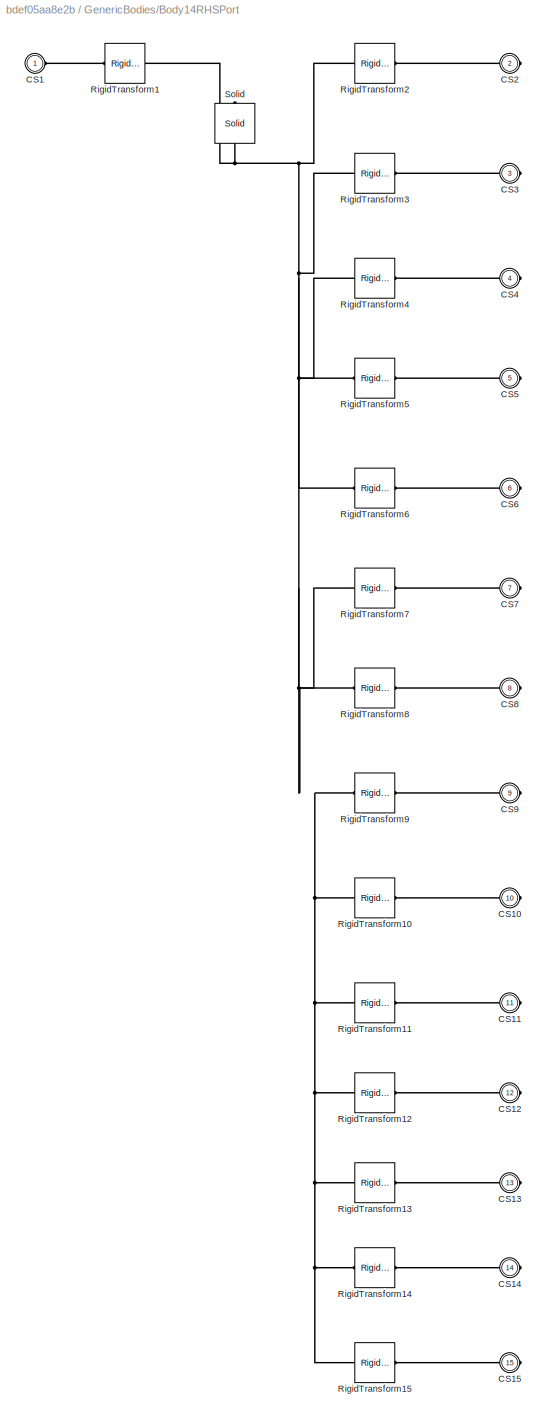
BLOCK [SubSystem] GenericBodies/Body14RHSPort
  Ports = [0, 0, 0, 0, 0, 1, 14]
  RequestExecContextInheritance = off
BLOCK [PMIOPort] GenericBodies/Body14RHSPort/CS1 
  Side = Left
BLOCK [PMIOPort] GenericBodies/Body14RHSPort/CS10
  Port = 10
  Side = Right
BLOCK [PMIOPort] GenericBodies/Body14RHSPort/CS11
  Port = 11
  Side = Right
BLOCK [PMIOPort] GenericBodies/Body14RHSPort/CS12
  Port = 12
  Side = Right
BLOCK [PMIOPort] GenericBodies/Body14RHSPort/CS13
  Port = 13
  Side = Right
BLOCK [PMIOPort] GenericBodies/Body14RHSPort/CS14
  Port = 14
  Side = Right
BLOCK [PMIOPort] GenericBodies/Body14RHSPort/CS15
  Port = 15
  Side = Right
BLOCK [PMIOPort] GenericBodies/Body14RHSPort/CS2
  Port = 2
  Side = Right
BLOCK [PMIOPort] GenericBodies/Body14RHSPort/CS3
  Port = 3
  Side = Right
BLOCK [PMIOPort] GenericBodies/Body14RHSPort/CS4
  Port = 4
  Side = Right
BLOCK [PMIOPort] GenericBodies/Body14RHSPort/CS5
  Port = 5
  Side = Right
BLOCK [PMIOPort] GenericBodies/Body14RHSPort/CS6
  Port = 6
  Side = Right
BLOCK [PMIOPort] GenericBodies/Body14RHSPort/CS7
  Port = 7
  Side = Right
BLOCK [PMIOPort] GenericBodies/Body14RHSPort/CS8
  Port = 8
  Side = Right
BLOCK [PMIOPort] GenericBodies/Body14RHSPort/CS9
  Port = 9
  Side = Right
BLOCK [Reference] GenericBodies/Body14RHSPort/RigidTransform1  REF=sm_lib/Frames and
Transforms/Rigid
Transform
  Ports = [0, 0, 0, 0, 0, 1, 1]
  SourceBlock = sm_lib/Frames and\nTransforms/Rigid\nTransform
  SourceProductBaseCode = MS
  SourceProductName = Simscape Multibody
  SourceType = Rigid\nTransform
BLOCK [Reference] GenericBodies/Body14RHSPort/RigidTransform10  REF=sm_lib/Frames and
Transforms/Rigid
Transform
  Ports = [0, 0, 0, 0, 0, 1, 1]
  SourceBlock = sm_lib/Frames and\nTransforms/Rigid\nTransform
  SourceProductBaseCode = MS
  SourceProductName = Simscape Multibody
  SourceType = Rigid\nTransform
BLOCK [Reference] GenericBodies/Body14RHSPort/RigidTransform11  REF=sm_lib/Frames and
Transforms/Rigid
Transform
  Ports = [0, 0, 0, 0, 0, 1, 1]
  SourceBlock = sm_lib/Frames and\nTransforms/Rigid\nTransform
  SourceProductBaseCode = MS
  SourceProductName = Simscape Multibody
  SourceType = Rigid\nTransform
BLOCK [Reference] GenericBodies/Body14RHSPort/RigidTransform12  REF=sm_lib/Frames and
Transforms/Rigid
Transform
  Ports = [0, 0, 0, 0, 0, 1, 1]
  SourceBlock = sm_lib/Frames and\nTransforms/Rigid\nTransform
  SourceProductBaseCode = MS
  SourceProductName = Simscape Multibody
  SourceType = Rigid\nTransform
BLOCK [Reference] GenericBodies/Body14RHSPort/RigidTransform13  REF=sm_lib/Frames and
Transforms/Rigid
Transform
  Ports = [0, 0, 0, 0, 0, 1, 1]
  SourceBlock = sm_lib/Frames and\nTransforms/Rigid\nTransform
  SourceProductBaseCode = MS
  SourceProductName = Simscape Multibody
  SourceType = Rigid\nTransform
BLOCK [Reference] GenericBodies/Body14RHSPort/RigidTransform14  REF=sm_lib/Frames and
Transforms/Rigid
Transform
  Ports = [0, 0, 0, 0, 0, 1, 1]
  SourceBlock = sm_lib/Frames and\nTransforms/Rigid\nTransform
  SourceProductBaseCode = MS
  SourceProductName = Simscape Multibody
  SourceType = Rigid\nTransform
BLOCK [Reference] GenericBodies/Body14RHSPort/RigidTransform15  REF=sm_lib/Frames and
Transforms/Rigid
Transform
  Ports = [0, 0, 0, 0, 0, 1, 1]
  SourceBlock = sm_lib/Frames and\nTransforms/Rigid\nTransform
  SourceProductBaseCode = MS
  SourceProductName = Simscape Multibody
  SourceType = Rigid\nTransform
BLOCK [Reference] GenericBodies/Body14RHSPort/RigidTransform2  REF=sm_lib/Frames and
Transforms/Rigid
Transform
  Ports = [0, 0, 0, 0, 0, 1, 1]
  SourceBlock = sm_lib/Frames and\nTransforms/Rigid\nTransform
  SourceProductBaseCode = MS
  SourceProductName = Simscape Multibody
  SourceType = Rigid\nTransform
BLOCK [Reference] GenericBodies/Body14RHSPort/RigidTransform3  REF=sm_lib/Frames and
Transforms/Rigid
Transform
  Ports = [0, 0, 0, 0, 0, 1, 1]
  SourceBlock = sm_lib/Frames and\nTransforms/Rigid\nTransform
  SourceProductBaseCode = MS
  SourceProductName = Simscape Multibody
  SourceType = Rigid\nTransform
BLOCK [Reference] GenericBodies/Body14RHSPort/RigidTransform4  REF=sm_lib/Frames and
Transforms/Rigid
Transform
  Ports = [0, 0, 0, 0, 0, 1, 1]
  SourceBlock = sm_lib/Frames and\nTransforms/Rigid\nTransform
  SourceProductBaseCode = MS
  SourceProductName = Simscape Multibody
  SourceType = Rigid\nTransform
BLOCK [Reference] GenericBodies/Body14RHSPort/RigidTransform5  REF=sm_lib/Frames and
Transforms/Rigid
Transform
  Ports = [0, 0, 0, 0, 0, 1, 1]
  SourceBlock = sm_lib/Frames and\nTransforms/Rigid\nTransform
  SourceProductBaseCode = MS
  SourceProductName = Simscape Multibody
  SourceType = Rigid\nTransform
BLOCK [Reference] GenericBodies/Body14RHSPort/RigidTransform6  REF=sm_lib/Frames and
Transforms/Rigid
Transform
  Ports = [0, 0, 0, 0, 0, 1, 1]
  SourceBlock = sm_lib/Frames and\nTransforms/Rigid\nTransform
  SourceProductBaseCode = MS
  SourceProductName = Simscape Multibody
  SourceType = Rigid\nTransform
BLOCK [Reference] GenericBodies/Body14RHSPort/RigidTransform7  REF=sm_lib/Frames and
Transforms/Rigid
Transform
  Ports = [0, 0, 0, 0, 0, 1, 1]
  SourceBlock = sm_lib/Frames and\nTransforms/Rigid\nTransform
  SourceProductBaseCode = MS
  SourceProductName = Simscape Multibody
  SourceType = Rigid\nTransform
BLOCK [Reference] GenericBodies/Body14RHSPort/RigidTransform8  REF=sm_lib/Frames and
Transforms/Rigid
Transform
  Ports = [0, 0, 0, 0, 0, 1, 1]
  SourceBlock = sm_lib/Frames and\nTransforms/Rigid\nTransform
  SourceProductBaseCode = MS
  SourceProductName = Simscape Multibody
  SourceType = Rigid\nTransform
BLOCK [Reference] GenericBodies/Body14RHSPort/RigidTransform9  REF=sm_lib/Frames and
Transforms/Rigid
Transform
  Ports = [0, 0, 0, 0, 0, 1, 1]
  SourceBlock = sm_lib/Frames and\nTransforms/Rigid\nTransform
  SourceProductBaseCode = MS
  SourceProductName = Simscape Multibody
  SourceType = Rigid\nTransform
BLOCK [Reference] GenericBodies/Body14RHSPort/Solid  REF=sm_lib/Body Elements/Solid
  Ports = [0, 0, 0, 0, 0, 0, 1]
  SourceBlock = sm_lib/Body Elements/Solid
  SourceProductBaseCode = MS
  SourceProductName = Simscape Multibody
  SourceType = Solid
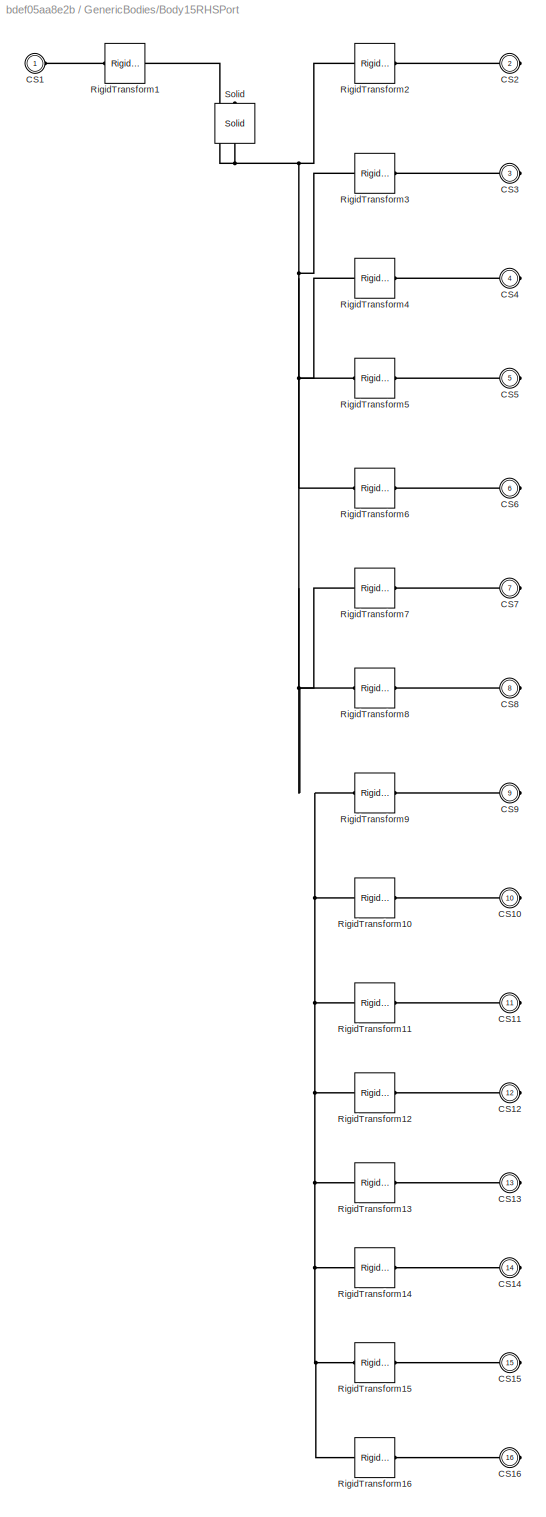
BLOCK [SubSystem] GenericBodies/Body15RHSPort
  Ports = [0, 0, 0, 0, 0, 1, 15]
  RequestExecContextInheritance = off
BLOCK [PMIOPort] GenericBodies/Body15RHSPort/CS1 
  Side = Left
BLOCK [PMIOPort] GenericBodies/Body15RHSPort/CS10
  Port = 10
  Side = Right
BLOCK [PMIOPort] GenericBodies/Body15RHSPort/CS11
  Port = 11
  Side = Right
BLOCK [PMIOPort] GenericBodies/Body15RHSPort/CS12
  Port = 12
  Side = Right
BLOCK [PMIOPort] GenericBodies/Body15RHSPort/CS13
  Port = 13
  Side = Right
BLOCK [PMIOPort] GenericBodies/Body15RHSPort/CS14
  Port = 14
  Side = Right
BLOCK [PMIOPort] GenericBodies/Body15RHSPort/CS15
  Port = 15
  Side = Right
BLOCK [PMIOPort] GenericBodies/Body15RHSPort/CS16
  Port = 16
  Side = Right
BLOCK [PMIOPort] GenericBodies/Body15RHSPort/CS2
  Port = 2
  Side = Right
BLOCK [PMIOPort] GenericBodies/Body15RHSPort/CS3
  Port = 3
  Side = Right
BLOCK [PMIOPort] GenericBodies/Body15RHSPort/CS4
  Port = 4
  Side = Right
BLOCK [PMIOPort] GenericBodies/Body15RHSPort/CS5
  Port = 5
  Side = Right
BLOCK [PMIOPort] GenericBodies/Body15RHSPort/CS6
  Port = 6
  Side = Right
BLOCK [PMIOPort] GenericBodies/Body15RHSPort/CS7
  Port = 7
  Side = Right
BLOCK [PMIOPort] GenericBodies/Body15RHSPort/CS8
  Port = 8
  Side = Right
BLOCK [PMIOPort] GenericBodies/Body15RHSPort/CS9
  Port = 9
  Side = Right
BLOCK [Reference] GenericBodies/Body15RHSPort/RigidTransform1  REF=sm_lib/Frames and
Transforms/Rigid
Transform
  Ports = [0, 0, 0, 0, 0, 1, 1]
  SourceBlock = sm_lib/Frames and\nTransforms/Rigid\nTransform
  SourceProductBaseCode = MS
  SourceProductName = Simscape Multibody
  SourceType = Rigid\nTransform
BLOCK [Reference] GenericBodies/Body15RHSPort/RigidTransform10  REF=sm_lib/Frames and
Transforms/Rigid
Transform
  Ports = [0, 0, 0, 0, 0, 1, 1]
  SourceBlock = sm_lib/Frames and\nTransforms/Rigid\nTransform
  SourceProductBaseCode = MS
  SourceProductName = Simscape Multibody
  SourceType = Rigid\nTransform
BLOCK [Reference] GenericBodies/Body15RHSPort/RigidTransform11  REF=sm_lib/Frames and
Transforms/Rigid
Transform
  Ports = [0, 0, 0, 0, 0, 1, 1]
  SourceBlock = sm_lib/Frames and\nTransforms/Rigid\nTransform
  SourceProductBaseCode = MS
  SourceProductName = Simscape Multibody
  SourceType = Rigid\nTransform
BLOCK [Reference] GenericBodies/Body15RHSPort/RigidTransform12  REF=sm_lib/Frames and
Transforms/Rigid
Transform
  Ports = [0, 0, 0, 0, 0, 1, 1]
  SourceBlock = sm_lib/Frames and\nTransforms/Rigid\nTransform
  SourceProductBaseCode = MS
  SourceProductName = Simscape Multibody
  SourceType = Rigid\nTransform
BLOCK [Reference] GenericBodies/Body15RHSPort/RigidTransform13  REF=sm_lib/Frames and
Transforms/Rigid
Transform
  Ports = [0, 0, 0, 0, 0, 1, 1]
  SourceBlock = sm_lib/Frames and\nTransforms/Rigid\nTransform
  SourceProductBaseCode = MS
  SourceProductName = Simscape Multibody
  SourceType = Rigid\nTransform
BLOCK [Reference] GenericBodies/Body15RHSPort/RigidTransform14  REF=sm_lib/Frames and
Transforms/Rigid
Transform
  Ports = [0, 0, 0, 0, 0, 1, 1]
  SourceBlock = sm_lib/Frames and\nTransforms/Rigid\nTransform
  SourceProductBaseCode = MS
  SourceProductName = Simscape Multibody
  SourceType = Rigid\nTransform
BLOCK [Reference] GenericBodies/Body15RHSPort/RigidTransform15  REF=sm_lib/Frames and
Transforms/Rigid
Transform
  Ports = [0, 0, 0, 0, 0, 1, 1]
  SourceBlock = sm_lib/Frames and\nTransforms/Rigid\nTransform
  SourceProductBaseCode = MS
  SourceProductName = Simscape Multibody
  SourceType = Rigid\nTransform
BLOCK [Reference] GenericBodies/Body15RHSPort/RigidTransform16  REF=sm_lib/Frames and
Transforms/Rigid
Transform
  Ports = [0, 0, 0, 0, 0, 1, 1]
  SourceBlock = sm_lib/Frames and\nTransforms/Rigid\nTransform
  SourceProductBaseCode = MS
  SourceProductName = Simscape Multibody
  SourceType = Rigid\nTransform
BLOCK [Reference] GenericBodies/Body15RHSPort/RigidTransform2  REF=sm_lib/Frames and
Transforms/Rigid
Transform
  Ports = [0, 0, 0, 0, 0, 1, 1]
  SourceBlock = sm_lib/Frames and\nTransforms/Rigid\nTransform
  SourceProductBaseCode = MS
  SourceProductName = Simscape Multibody
  SourceType = Rigid\nTransform
BLOCK [Reference] GenericBodies/Body15RHSPort/RigidTransform3  REF=sm_lib/Frames and
Transforms/Rigid
Transform
  Ports = [0, 0, 0, 0, 0, 1, 1]
  SourceBlock = sm_lib/Frames and\nTransforms/Rigid\nTransform
  SourceProductBaseCode = MS
  SourceProductName = Simscape Multibody
  SourceType = Rigid\nTransform
BLOCK [Reference] GenericBodies/Body15RHSPort/RigidTransform4  REF=sm_lib/Frames and
Transforms/Rigid
Transform
  Ports = [0, 0, 0, 0, 0, 1, 1]
  SourceBlock = sm_lib/Frames and\nTransforms/Rigid\nTransform
  SourceProductBaseCode = MS
  SourceProductName = Simscape Multibody
  SourceType = Rigid\nTransform
BLOCK [Reference] GenericBodies/Body15RHSPort/RigidTransform5  REF=sm_lib/Frames and
Transforms/Rigid
Transform
  Ports = [0, 0, 0, 0, 0, 1, 1]
  SourceBlock = sm_lib/Frames and\nTransforms/Rigid\nTransform
  SourceProductBaseCode = MS
  SourceProductName = Simscape Multibody
  SourceType = Rigid\nTransform
BLOCK [Reference] GenericBodies/Body15RHSPort/RigidTransform6  REF=sm_lib/Frames and
Transforms/Rigid
Transform
  Ports = [0, 0, 0, 0, 0, 1, 1]
  SourceBlock = sm_lib/Frames and\nTransforms/Rigid\nTransform
  SourceProductBaseCode = MS
  SourceProductName = Simscape Multibody
  SourceType = Rigid\nTransform
BLOCK [Reference] GenericBodies/Body15RHSPort/RigidTransform7  REF=sm_lib/Frames and
Transforms/Rigid
Transform
  Ports = [0, 0, 0, 0, 0, 1, 1]
  SourceBlock = sm_lib/Frames and\nTransforms/Rigid\nTransform
  SourceProductBaseCode = MS
  SourceProductName = Simscape Multibody
  SourceType = Rigid\nTransform
BLOCK [Reference] GenericBodies/Body15RHSPort/RigidTransform8  REF=sm_lib/Frames and
Transforms/Rigid
Transform
  Ports = [0, 0, 0, 0, 0, 1, 1]
  SourceBlock = sm_lib/Frames and\nTransforms/Rigid\nTransform
  SourceProductBaseCode = MS
  SourceProductName = Simscape Multibody
  SourceType = Rigid\nTransform
BLOCK [Reference] GenericBodies/Body15RHSPort/RigidTransform9  REF=sm_lib/Frames and
Transforms/Rigid
Transform
  Ports = [0, 0, 0, 0, 0, 1, 1]
  SourceBlock = sm_lib/Frames and\nTransforms/Rigid\nTransform
  SourceProductBaseCode = MS
  SourceProductName = Simscape Multibody
  SourceType = Rigid\nTransform
BLOCK [Reference] GenericBodies/Body15RHSPort/Solid  REF=sm_lib/Body Elements/Solid
  Ports = [0, 0, 0, 0, 0, 0, 1]
  SourceBlock = sm_lib/Body Elements/Solid
  SourceProductBaseCode = MS
  SourceProductName = Simscape Multibody
  SourceType = Solid
BLOCK [SubSystem] GenericBodies/Body1RHSPort
  Ports = [0, 0, 0, 0, 0, 1, 1]
  RequestExecContextInheritance = off
BLOCK [PMIOPort] GenericBodies/Body1RHSPort/CS1 
  Side = Left
BLOCK [PMIOPort] GenericBodies/Body1RHSPort/CS2
  Port = 2
  Side = Right
BLOCK [Reference] GenericBodies/Body1RHSPort/RigidTransform1  REF=sm_lib/Frames and
Transforms/Rigid
Transform
  Ports = [0, 0, 0, 0, 0, 1, 1]
  SourceBlock = sm_lib/Frames and\nTransforms/Rigid\nTransform
  SourceProductBaseCode = MS
  SourceProductName = Simscape Multibody
  SourceType = Rigid\nTransform
BLOCK [Reference] GenericBodies/Body1RHSPort/RigidTransform2  REF=sm_lib/Frames and
Transforms/Rigid
Transform
  Ports = [0, 0, 0, 0, 0, 1, 1]
  SourceBlock = sm_lib/Frames and\nTransforms/Rigid\nTransform
  SourceProductBaseCode = MS
  SourceProductName = Simscape Multibody
  SourceType = Rigid\nTransform
BLOCK [Reference] GenericBodies/Body1RHSPort/Solid  REF=sm_lib/Body Elements/Solid
  Ports = [0, 0, 0, 0, 0, 0, 1]
  SourceBlock = sm_lib/Body Elements/Solid
  SourceProductBaseCode = MS
  SourceProductName = Simscape Multibody
  SourceType = Solid
BLOCK [SubSystem] GenericBodies/Body2RHSPort
  Ports = [0, 0, 0, 0, 0, 1, 2]
  RequestExecContextInheritance = off
BLOCK [PMIOPort] GenericBodies/Body2RHSPort/CS1 
  Side = Left
BLOCK [PMIOPort] GenericBodies/Body2RHSPort/CS2
  Port = 2
  Side = Right
BLOCK [PMIOPort] GenericBodies/Body2RHSPort/CS3
  Port = 3
  Side = Right
BLOCK [Reference] GenericBodies/Body2RHSPort/RigidTransform1  REF=sm_lib/Frames and
Transforms/Rigid
Transform
  Ports = [0, 0, 0, 0, 0, 1, 1]
  SourceBlock = sm_lib/Frames and\nTransforms/Rigid\nTransform
  SourceProductBaseCode = MS
  SourceProductName = Simscape Multibody
  SourceType = Rigid\nTransform
BLOCK [Reference] GenericBodies/Body2RHSPort/RigidTransform2  REF=sm_lib/Frames and
Transforms/Rigid
Transform
  Ports = [0, 0, 0, 0, 0, 1, 1]
  SourceBlock = sm_lib/Frames and\nTransforms/Rigid\nTransform
  SourceProductBaseCode = MS
  SourceProductName = Simscape Multibody
  SourceType = Rigid\nTransform
BLOCK [Reference] GenericBodies/Body2RHSPort/RigidTransform3  REF=sm_lib/Frames and
Transforms/Rigid
Transform
  Ports = [0, 0, 0, 0, 0, 1, 1]
  SourceBlock = sm_lib/Frames and\nTransforms/Rigid\nTransform
  SourceProductBaseCode = MS
  SourceProductName = Simscape Multibody
  SourceType = Rigid\nTransform
BLOCK [Reference] GenericBodies/Body2RHSPort/Solid  REF=sm_lib/Body Elements/Solid
  Ports = [0, 0, 0, 0, 0, 0, 1]
  SourceBlock = sm_lib/Body Elements/Solid
  SourceProductBaseCode = MS
  SourceProductName = Simscape Multibody
  SourceType = Solid
BLOCK [SubSystem] GenericBodies/Body3RHSPort
  Ports = [0, 0, 0, 0, 0, 1, 3]
  RequestExecContextInheritance = off
BLOCK [PMIOPort] GenericBodies/Body3RHSPort/CS1 
  Side = Left
BLOCK [PMIOPort] GenericBodies/Body3RHSPort/CS2
  Port = 2
  Side = Right
BLOCK [PMIOPort] GenericBodies/Body3RHSPort/CS3
  Port = 3
  Side = Right
BLOCK [PMIOPort] GenericBodies/Body3RHSPort/CS4
  Port = 4
  Side = Right
BLOCK [Reference] GenericBodies/Body3RHSPort/RigidTransform1  REF=sm_lib/Frames and
Transforms/Rigid
Transform
  Ports = [0, 0, 0, 0, 0, 1, 1]
  SourceBlock = sm_lib/Frames and\nTransforms/Rigid\nTransform
  SourceProductBaseCode = MS
  SourceProductName = Simscape Multibody
  SourceType = Rigid\nTransform
BLOCK [Reference] GenericBodies/Body3RHSPort/RigidTransform2  REF=sm_lib/Frames and
Transforms/Rigid
Transform
  Ports = [0, 0, 0, 0, 0, 1, 1]
  SourceBlock = sm_lib/Frames and\nTransforms/Rigid\nTransform
  SourceProductBaseCode = MS
  SourceProductName = Simscape Multibody
  SourceType = Rigid\nTransform
BLOCK [Reference] GenericBodies/Body3RHSPort/RigidTransform3  REF=sm_lib/Frames and
Transforms/Rigid
Transform
  Ports = [0, 0, 0, 0, 0, 1, 1]
  SourceBlock = sm_lib/Frames and\nTransforms/Rigid\nTransform
  SourceProductBaseCode = MS
  SourceProductName = Simscape Multibody
  SourceType = Rigid\nTransform
BLOCK [Reference] GenericBodies/Body3RHSPort/RigidTransform4  REF=sm_lib/Frames and
Transforms/Rigid
Transform
  Ports = [0, 0, 0, 0, 0, 1, 1]
  SourceBlock = sm_lib/Frames and\nTransforms/Rigid\nTransform
  SourceProductBaseCode = MS
  SourceProductName = Simscape Multibody
  SourceType = Rigid\nTransform
BLOCK [Reference] GenericBodies/Body3RHSPort/Solid  REF=sm_lib/Body Elements/Solid
  Ports = [0, 0, 0, 0, 0, 0, 1]
  SourceBlock = sm_lib/Body Elements/Solid
  SourceProductBaseCode = MS
  SourceProductName = Simscape Multibody
  SourceType = Solid
BLOCK [SubSystem] GenericBodies/Body4RHSPort
  Ports = [0, 0, 0, 0, 0, 1, 4]
  RequestExecContextInheritance = off
BLOCK [PMIOPort] GenericBodies/Body4RHSPort/CS1 
  Side = Left
BLOCK [PMIOPort] GenericBodies/Body4RHSPort/CS2
  Port = 2
  Side = Right
BLOCK [PMIOPort] GenericBodies/Body4RHSPort/CS3
  Port = 3
  Side = Right
BLOCK [PMIOPort] GenericBodies/Body4RHSPort/CS4
  Port = 4
  Side = Right
BLOCK [PMIOPort] GenericBodies/Body4RHSPort/CS5
  Port = 5
  Side = Right
BLOCK [Reference] GenericBodies/Body4RHSPort/RigidTransform1  REF=sm_lib/Frames and
Transforms/Rigid
Transform
  Ports = [0, 0, 0, 0, 0, 1, 1]
  SourceBlock = sm_lib/Frames and\nTransforms/Rigid\nTransform
  SourceProductBaseCode = MS
  SourceProductName = Simscape Multibody
  SourceType = Rigid\nTransform
BLOCK [Reference] GenericBodies/Body4RHSPort/RigidTransform2  REF=sm_lib/Frames and
Transforms/Rigid
Transform
  Ports = [0, 0, 0, 0, 0, 1, 1]
  SourceBlock = sm_lib/Frames and\nTransforms/Rigid\nTransform
  SourceProductBaseCode = MS
  SourceProductName = Simscape Multibody
  SourceType = Rigid\nTransform
BLOCK [Reference] GenericBodies/Body4RHSPort/RigidTransform3  REF=sm_lib/Frames and
Transforms/Rigid
Transform
  Ports = [0, 0, 0, 0, 0, 1, 1]
  SourceBlock = sm_lib/Frames and\nTransforms/Rigid\nTransform
  SourceProductBaseCode = MS
  SourceProductName = Simscape Multibody
  SourceType = Rigid\nTransform
BLOCK [Reference] GenericBodies/Body4RHSPort/RigidTransform4  REF=sm_lib/Frames and
Transforms/Rigid
Transform
  Ports = [0, 0, 0, 0, 0, 1, 1]
  SourceBlock = sm_lib/Frames and\nTransforms/Rigid\nTransform
  SourceProductBaseCode = MS
  SourceProductName = Simscape Multibody
  SourceType = Rigid\nTransform
BLOCK [Reference] GenericBodies/Body4RHSPort/RigidTransform5  REF=sm_lib/Frames and
Transforms/Rigid
Transform
  Ports = [0, 0, 0, 0, 0, 1, 1]
  SourceBlock = sm_lib/Frames and\nTransforms/Rigid\nTransform
  SourceProductBaseCode = MS
  SourceProductName = Simscape Multibody
  SourceType = Rigid\nTransform
BLOCK [Reference] GenericBodies/Body4RHSPort/Solid  REF=sm_lib/Body Elements/Solid
  Ports = [0, 0, 0, 0, 0, 0, 1]
  SourceBlock = sm_lib/Body Elements/Solid
  SourceProductBaseCode = MS
  SourceProductName = Simscape Multibody
  SourceType = Solid
BLOCK [SubSystem] GenericBodies/Body5RHSPort
  Ports = [0, 0, 0, 0, 0, 1, 5]
  RequestExecContextInheritance = off
BLOCK [PMIOPort] GenericBodies/Body5RHSPort/CS1 
  Side = Left
BLOCK [PMIOPort] GenericBodies/Body5RHSPort/CS2
  Port = 2
  Side = Right
BLOCK [PMIOPort] GenericBodies/Body5RHSPort/CS3
  Port = 3
  Side = Right
BLOCK [PMIOPort] GenericBodies/Body5RHSPort/CS4
  Port = 4
  Side = Right
BLOCK [PMIOPort] GenericBodies/Body5RHSPort/CS5
  Port = 5
  Side = Right
BLOCK [PMIOPort] GenericBodies/Body5RHSPort/CS6
  Port = 6
  Side = Right
BLOCK [Reference] GenericBodies/Body5RHSPort/RigidTransform1  REF=sm_lib/Frames and
Transforms/Rigid
Transform
  Ports = [0, 0, 0, 0, 0, 1, 1]
  SourceBlock = sm_lib/Frames and\nTransforms/Rigid\nTransform
  SourceProductBaseCode = MS
  SourceProductName = Simscape Multibody
  SourceType = Rigid\nTransform
BLOCK [Reference] GenericBodies/Body5RHSPort/RigidTransform2  REF=sm_lib/Frames and
Transforms/Rigid
Transform
  Ports = [0, 0, 0, 0, 0, 1, 1]
  SourceBlock = sm_lib/Frames and\nTransforms/Rigid\nTransform
  SourceProductBaseCode = MS
  SourceProductName = Simscape Multibody
  SourceType = Rigid\nTransform
BLOCK [Reference] GenericBodies/Body5RHSPort/RigidTransform3  REF=sm_lib/Frames and
Transforms/Rigid
Transform
  Ports = [0, 0, 0, 0, 0, 1, 1]
  SourceBlock = sm_lib/Frames and\nTransforms/Rigid\nTransform
  SourceProductBaseCode = MS
  SourceProductName = Simscape Multibody
  SourceType = Rigid\nTransform
BLOCK [Reference] GenericBodies/Body5RHSPort/RigidTransform4  REF=sm_lib/Frames and
Transforms/Rigid
Transform
  Ports = [0, 0, 0, 0, 0, 1, 1]
  SourceBlock = sm_lib/Frames and\nTransforms/Rigid\nTransform
  SourceProductBaseCode = MS
  SourceProductName = Simscape Multibody
  SourceType = Rigid\nTransform
BLOCK [Reference] GenericBodies/Body5RHSPort/RigidTransform5  REF=sm_lib/Frames and
Transforms/Rigid
Transform
  Ports = [0, 0, 0, 0, 0, 1, 1]
  SourceBlock = sm_lib/Frames and\nTransforms/Rigid\nTransform
  SourceProductBaseCode = MS
  SourceProductName = Simscape Multibody
  SourceType = Rigid\nTransform
BLOCK [Reference] GenericBodies/Body5RHSPort/RigidTransform6  REF=sm_lib/Frames and
Transforms/Rigid
Transform
  Ports = [0, 0, 0, 0, 0, 1, 1]
  SourceBlock = sm_lib/Frames and\nTransforms/Rigid\nTransform
  SourceProductBaseCode = MS
  SourceProductName = Simscape Multibody
  SourceType = Rigid\nTransform
BLOCK [Reference] GenericBodies/Body5RHSPort/Solid  REF=sm_lib/Body Elements/Solid
  Ports = [0, 0, 0, 0, 0, 0, 1]
  SourceBlock = sm_lib/Body Elements/Solid
  SourceProductBaseCode = MS
  SourceProductName = Simscape Multibody
  SourceType = Solid
BLOCK [SubSystem] GenericBodies/Body6RHSPort
  Ports = [0, 0, 0, 0, 0, 1, 6]
  RequestExecContextInheritance = off
BLOCK [PMIOPort] GenericBodies/Body6RHSPort/CS1 
  Side = Left
BLOCK [PMIOPort] GenericBodies/Body6RHSPort/CS2
  Port = 2
  Side = Right
BLOCK [PMIOPort] GenericBodies/Body6RHSPort/CS3
  Port = 3
  Side = Right
BLOCK [PMIOPort] GenericBodies/Body6RHSPort/CS4
  Port = 4
  Side = Right
BLOCK [PMIOPort] GenericBodies/Body6RHSPort/CS5
  Port = 5
  Side = Right
BLOCK [PMIOPort] GenericBodies/Body6RHSPort/CS6
  Port = 6
  Side = Right
BLOCK [PMIOPort] GenericBodies/Body6RHSPort/CS7
  Port = 7
  Side = Right
BLOCK [Reference] GenericBodies/Body6RHSPort/RigidTransform1  REF=sm_lib/Frames and
Transforms/Rigid
Transform
  Ports = [0, 0, 0, 0, 0, 1, 1]
  SourceBlock = sm_lib/Frames and\nTransforms/Rigid\nTransform
  SourceProductBaseCode = MS
  SourceProductName = Simscape Multibody
  SourceType = Rigid\nTransform
BLOCK [Reference] GenericBodies/Body6RHSPort/RigidTransform2  REF=sm_lib/Frames and
Transforms/Rigid
Transform
  Ports = [0, 0, 0, 0, 0, 1, 1]
  SourceBlock = sm_lib/Frames and\nTransforms/Rigid\nTransform
  SourceProductBaseCode = MS
  SourceProductName = Simscape Multibody
  SourceType = Rigid\nTransform
BLOCK [Reference] GenericBodies/Body6RHSPort/RigidTransform3  REF=sm_lib/Frames and
Transforms/Rigid
Transform
  Ports = [0, 0, 0, 0, 0, 1, 1]
  SourceBlock = sm_lib/Frames and\nTransforms/Rigid\nTransform
  SourceProductBaseCode = MS
  SourceProductName = Simscape Multibody
  SourceType = Rigid\nTransform
BLOCK [Reference] GenericBodies/Body6RHSPort/RigidTransform4  REF=sm_lib/Frames and
Transforms/Rigid
Transform
  Ports = [0, 0, 0, 0, 0, 1, 1]
  SourceBlock = sm_lib/Frames and\nTransforms/Rigid\nTransform
  SourceProductBaseCode = MS
  SourceProductName = Simscape Multibody
  SourceType = Rigid\nTransform
BLOCK [Reference] GenericBodies/Body6RHSPort/RigidTransform5  REF=sm_lib/Frames and
Transforms/Rigid
Transform
  Ports = [0, 0, 0, 0, 0, 1, 1]
  SourceBlock = sm_lib/Frames and\nTransforms/Rigid\nTransform
  SourceProductBaseCode = MS
  SourceProductName = Simscape Multibody
  SourceType = Rigid\nTransform
BLOCK [Reference] GenericBodies/Body6RHSPort/RigidTransform6  REF=sm_lib/Frames and
Transforms/Rigid
Transform
  Ports = [0, 0, 0, 0, 0, 1, 1]
  SourceBlock = sm_lib/Frames and\nTransforms/Rigid\nTransform
  SourceProductBaseCode = MS
  SourceProductName = Simscape Multibody
  SourceType = Rigid\nTransform
BLOCK [Reference] GenericBodies/Body6RHSPort/RigidTransform7  REF=sm_lib/Frames and
Transforms/Rigid
Transform
  Ports = [0, 0, 0, 0, 0, 1, 1]
  SourceBlock = sm_lib/Frames and\nTransforms/Rigid\nTransform
  SourceProductBaseCode = MS
  SourceProductName = Simscape Multibody
  SourceType = Rigid\nTransform
BLOCK [Reference] GenericBodies/Body6RHSPort/Solid  REF=sm_lib/Body Elements/Solid
  Ports = [0, 0, 0, 0, 0, 0, 1]
  SourceBlock = sm_lib/Body Elements/Solid
  SourceProductBaseCode = MS
  SourceProductName = Simscape Multibody
  SourceType = Solid
BLOCK [SubSystem] GenericBodies/Body7RHSPort
  Ports = [0, 0, 0, 0, 0, 1, 7]
  RequestExecContextInheritance = off
BLOCK [PMIOPort] GenericBodies/Body7RHSPort/CS1 
  Side = Left
BLOCK [PMIOPort] GenericBodies/Body7RHSPort/CS2
  Port = 2
  Side = Right
BLOCK [PMIOPort] GenericBodies/Body7RHSPort/CS3
  Port = 3
  Side = Right
BLOCK [PMIOPort] GenericBodies/Body7RHSPort/CS4
  Port = 4
  Side = Right
BLOCK [PMIOPort] GenericBodies/Body7RHSPort/CS5
  Port = 5
  Side = Right
BLOCK [PMIOPort] GenericBodies/Body7RHSPort/CS6
  Port = 6
  Side = Right
BLOCK [PMIOPort] GenericBodies/Body7RHSPort/CS7
  Port = 7
  Side = Right
BLOCK [PMIOPort] GenericBodies/Body7RHSPort/CS8
  Port = 8
  Side = Right
BLOCK [Reference] GenericBodies/Body7RHSPort/RigidTransform1  REF=sm_lib/Frames and
Transforms/Rigid
Transform
  Ports = [0, 0, 0, 0, 0, 1, 1]
  SourceBlock = sm_lib/Frames and\nTransforms/Rigid\nTransform
  SourceProductBaseCode = MS
  SourceProductName = Simscape Multibody
  SourceType = Rigid\nTransform
BLOCK [Reference] GenericBodies/Body7RHSPort/RigidTransform2  REF=sm_lib/Frames and
Transforms/Rigid
Transform
  Ports = [0, 0, 0, 0, 0, 1, 1]
  SourceBlock = sm_lib/Frames and\nTransforms/Rigid\nTransform
  SourceProductBaseCode = MS
  SourceProductName = Simscape Multibody
  SourceType = Rigid\nTransform
BLOCK [Reference] GenericBodies/Body7RHSPort/RigidTransform3  REF=sm_lib/Frames and
Transforms/Rigid
Transform
  Ports = [0, 0, 0, 0, 0, 1, 1]
  SourceBlock = sm_lib/Frames and\nTransforms/Rigid\nTransform
  SourceProductBaseCode = MS
  SourceProductName = Simscape Multibody
  SourceType = Rigid\nTransform
BLOCK [Reference] GenericBodies/Body7RHSPort/RigidTransform4  REF=sm_lib/Frames and
Transforms/Rigid
Transform
  Ports = [0, 0, 0, 0, 0, 1, 1]
  SourceBlock = sm_lib/Frames and\nTransforms/Rigid\nTransform
  SourceProductBaseCode = MS
  SourceProductName = Simscape Multibody
  SourceType = Rigid\nTransform
BLOCK [Reference] GenericBodies/Body7RHSPort/RigidTransform5  REF=sm_lib/Frames and
Transforms/Rigid
Transform
  Ports = [0, 0, 0, 0, 0, 1, 1]
  SourceBlock = sm_lib/Frames and\nTransforms/Rigid\nTransform
  SourceProductBaseCode = MS
  SourceProductName = Simscape Multibody
  SourceType = Rigid\nTransform
BLOCK [Reference] GenericBodies/Body7RHSPort/RigidTransform6  REF=sm_lib/Frames and
Transforms/Rigid
Transform
  Ports = [0, 0, 0, 0, 0, 1, 1]
  SourceBlock = sm_lib/Frames and\nTransforms/Rigid\nTransform
  SourceProductBaseCode = MS
  SourceProductName = Simscape Multibody
  SourceType = Rigid\nTransform
BLOCK [Reference] GenericBodies/Body7RHSPort/RigidTransform7  REF=sm_lib/Frames and
Transforms/Rigid
Transform
  Ports = [0, 0, 0, 0, 0, 1, 1]
  SourceBlock = sm_lib/Frames and\nTransforms/Rigid\nTransform
  SourceProductBaseCode = MS
  SourceProductName = Simscape Multibody
  SourceType = Rigid\nTransform
BLOCK [Reference] GenericBodies/Body7RHSPort/RigidTransform8  REF=sm_lib/Frames and
Transforms/Rigid
Transform
  Ports = [0, 0, 0, 0, 0, 1, 1]
  SourceBlock = sm_lib/Frames and\nTransforms/Rigid\nTransform
  SourceProductBaseCode = MS
  SourceProductName = Simscape Multibody
  SourceType = Rigid\nTransform
BLOCK [Reference] GenericBodies/Body7RHSPort/Solid  REF=sm_lib/Body Elements/Solid
  Ports = [0, 0, 0, 0, 0, 0, 1]
  SourceBlock = sm_lib/Body Elements/Solid
  SourceProductBaseCode = MS
  SourceProductName = Simscape Multibody
  SourceType = Solid
BLOCK [SubSystem] GenericBodies/Body8RHSPort
  Ports = [0, 0, 0, 0, 0, 1, 8]
  RequestExecContextInheritance = off
BLOCK [PMIOPort] GenericBodies/Body8RHSPort/CS1 
  Side = Left
BLOCK [PMIOPort] GenericBodies/Body8RHSPort/CS2
  Port = 2
  Side = Right
BLOCK [PMIOPort] GenericBodies/Body8RHSPort/CS3
  Port = 3
  Side = Right
BLOCK [PMIOPort] GenericBodies/Body8RHSPort/CS4
  Port = 4
  Side = Right
BLOCK [PMIOPort] GenericBodies/Body8RHSPort/CS5
  Port = 5
  Side = Right
BLOCK [PMIOPort] GenericBodies/Body8RHSPort/CS6
  Port = 6
  Side = Right
BLOCK [PMIOPort] GenericBodies/Body8RHSPort/CS7
  Port = 7
  Side = Right
BLOCK [PMIOPort] GenericBodies/Body8RHSPort/CS8
  Port = 8
  Side = Right
BLOCK [PMIOPort] GenericBodies/Body8RHSPort/CS9
  Port = 9
  Side = Right
BLOCK [Reference] GenericBodies/Body8RHSPort/RigidTransform1  REF=sm_lib/Frames and
Transforms/Rigid
Transform
  Ports = [0, 0, 0, 0, 0, 1, 1]
  SourceBlock = sm_lib/Frames and\nTransforms/Rigid\nTransform
  SourceProductBaseCode = MS
  SourceProductName = Simscape Multibody
  SourceType = Rigid\nTransform
BLOCK [Reference] GenericBodies/Body8RHSPort/RigidTransform2  REF=sm_lib/Frames and
Transforms/Rigid
Transform
  Ports = [0, 0, 0, 0, 0, 1, 1]
  SourceBlock = sm_lib/Frames and\nTransforms/Rigid\nTransform
  SourceProductBaseCode = MS
  SourceProductName = Simscape Multibody
  SourceType = Rigid\nTransform
BLOCK [Reference] GenericBodies/Body8RHSPort/RigidTransform3  REF=sm_lib/Frames and
Transforms/Rigid
Transform
  Ports = [0, 0, 0, 0, 0, 1, 1]
  SourceBlock = sm_lib/Frames and\nTransforms/Rigid\nTransform
  SourceProductBaseCode = MS
  SourceProductName = Simscape Multibody
  SourceType = Rigid\nTransform
BLOCK [Reference] GenericBodies/Body8RHSPort/RigidTransform4  REF=sm_lib/Frames and
Transforms/Rigid
Transform
  Ports = [0, 0, 0, 0, 0, 1, 1]
  SourceBlock = sm_lib/Frames and\nTransforms/Rigid\nTransform
  SourceProductBaseCode = MS
  SourceProductName = Simscape Multibody
  SourceType = Rigid\nTransform
BLOCK [Reference] GenericBodies/Body8RHSPort/RigidTransform5  REF=sm_lib/Frames and
Transforms/Rigid
Transform
  Ports = [0, 0, 0, 0, 0, 1, 1]
  SourceBlock = sm_lib/Frames and\nTransforms/Rigid\nTransform
  SourceProductBaseCode = MS
  SourceProductName = Simscape Multibody
  SourceType = Rigid\nTransform
BLOCK [Reference] GenericBodies/Body8RHSPort/RigidTransform6  REF=sm_lib/Frames and
Transforms/Rigid
Transform
  Ports = [0, 0, 0, 0, 0, 1, 1]
  SourceBlock = sm_lib/Frames and\nTransforms/Rigid\nTransform
  SourceProductBaseCode = MS
  SourceProductName = Simscape Multibody
  SourceType = Rigid\nTransform
BLOCK [Reference] GenericBodies/Body8RHSPort/RigidTransform7  REF=sm_lib/Frames and
Transforms/Rigid
Transform
  Ports = [0, 0, 0, 0, 0, 1, 1]
  SourceBlock = sm_lib/Frames and\nTransforms/Rigid\nTransform
  SourceProductBaseCode = MS
  SourceProductName = Simscape Multibody
  SourceType = Rigid\nTransform
BLOCK [Reference] GenericBodies/Body8RHSPort/RigidTransform8  REF=sm_lib/Frames and
Transforms/Rigid
Transform
  Ports = [0, 0, 0, 0, 0, 1, 1]
  SourceBlock = sm_lib/Frames and\nTransforms/Rigid\nTransform
  SourceProductBaseCode = MS
  SourceProductName = Simscape Multibody
  SourceType = Rigid\nTransform
BLOCK [Reference] GenericBodies/Body8RHSPort/RigidTransform9  REF=sm_lib/Frames and
Transforms/Rigid
Transform
  Ports = [0, 0, 0, 0, 0, 1, 1]
  SourceBlock = sm_lib/Frames and\nTransforms/Rigid\nTransform
  SourceProductBaseCode = MS
  SourceProductName = Simscape Multibody
  SourceType = Rigid\nTransform
BLOCK [Reference] GenericBodies/Body8RHSPort/Solid  REF=sm_lib/Body Elements/Solid
  Ports = [0, 0, 0, 0, 0, 0, 1]
  SourceBlock = sm_lib/Body Elements/Solid
  SourceProductBaseCode = MS
  SourceProductName = Simscape Multibody
  SourceType = Solid
BLOCK [SubSystem] GenericBodies/Body9RHSPort
  Ports = [0, 0, 0, 0, 0, 1, 9]
  RequestExecContextInheritance = off
BLOCK [PMIOPort] GenericBodies/Body9RHSPort/CS1 
  Side = Left
BLOCK [PMIOPort] GenericBodies/Body9RHSPort/CS10
  Port = 10
  Side = Right
BLOCK [PMIOPort] GenericBodies/Body9RHSPort/CS2
  Port = 2
  Side = Right
BLOCK [PMIOPort] GenericBodies/Body9RHSPort/CS3
  Port = 3
  Side = Right
BLOCK [PMIOPort] GenericBodies/Body9RHSPort/CS4
  Port = 4
  Side = Right
BLOCK [PMIOPort] GenericBodies/Body9RHSPort/CS5
  Port = 5
  Side = Right
BLOCK [PMIOPort] GenericBodies/Body9RHSPort/CS6
  Port = 6
  Side = Right
BLOCK [PMIOPort] GenericBodies/Body9RHSPort/CS7
  Port = 7
  Side = Right
BLOCK [PMIOPort] GenericBodies/Body9RHSPort/CS8
  Port = 8
  Side = Right
BLOCK [PMIOPort] GenericBodies/Body9RHSPort/CS9
  Port = 9
  Side = Right
BLOCK [Reference] GenericBodies/Body9RHSPort/RigidTransform1  REF=sm_lib/Frames and
Transforms/Rigid
Transform
  Ports = [0, 0, 0, 0, 0, 1, 1]
  SourceBlock = sm_lib/Frames and\nTransforms/Rigid\nTransform
  SourceProductBaseCode = MS
  SourceProductName = Simscape Multibody
  SourceType = Rigid\nTransform
BLOCK [Reference] GenericBodies/Body9RHSPort/RigidTransform10  REF=sm_lib/Frames and
Transforms/Rigid
Transform
  Ports = [0, 0, 0, 0, 0, 1, 1]
  SourceBlock = sm_lib/Frames and\nTransforms/Rigid\nTransform
  SourceProductBaseCode = MS
  SourceProductName = Simscape Multibody
  SourceType = Rigid\nTransform
BLOCK [Reference] GenericBodies/Body9RHSPort/RigidTransform2  REF=sm_lib/Frames and
Transforms/Rigid
Transform
  Ports = [0, 0, 0, 0, 0, 1, 1]
  SourceBlock = sm_lib/Frames and\nTransforms/Rigid\nTransform
  SourceProductBaseCode = MS
  SourceProductName = Simscape Multibody
  SourceType = Rigid\nTransform
BLOCK [Reference] GenericBodies/Body9RHSPort/RigidTransform3  REF=sm_lib/Frames and
Transforms/Rigid
Transform
  Ports = [0, 0, 0, 0, 0, 1, 1]
  SourceBlock = sm_lib/Frames and\nTransforms/Rigid\nTransform
  SourceProductBaseCode = MS
  SourceProductName = Simscape Multibody
  SourceType = Rigid\nTransform
BLOCK [Reference] GenericBodies/Body9RHSPort/RigidTransform4  REF=sm_lib/Frames and
Transforms/Rigid
Transform
  Ports = [0, 0, 0, 0, 0, 1, 1]
  SourceBlock = sm_lib/Frames and\nTransforms/Rigid\nTransform
  SourceProductBaseCode = MS
  SourceProductName = Simscape Multibody
  SourceType = Rigid\nTransform
BLOCK [Reference] GenericBodies/Body9RHSPort/RigidTransform5  REF=sm_lib/Frames and
Transforms/Rigid
Transform
  Ports = [0, 0, 0, 0, 0, 1, 1]
  SourceBlock = sm_lib/Frames and\nTransforms/Rigid\nTransform
  SourceProductBaseCode = MS
  SourceProductName = Simscape Multibody
  SourceType = Rigid\nTransform
BLOCK [Reference] GenericBodies/Body9RHSPort/RigidTransform6  REF=sm_lib/Frames and
Transforms/Rigid
Transform
  Ports = [0, 0, 0, 0, 0, 1, 1]
  SourceBlock = sm_lib/Frames and\nTransforms/Rigid\nTransform
  SourceProductBaseCode = MS
  SourceProductName = Simscape Multibody
  SourceType = Rigid\nTransform
BLOCK [Reference] GenericBodies/Body9RHSPort/RigidTransform7  REF=sm_lib/Frames and
Transforms/Rigid
Transform
  Ports = [0, 0, 0, 0, 0, 1, 1]
  SourceBlock = sm_lib/Frames and\nTransforms/Rigid\nTransform
  SourceProductBaseCode = MS
  SourceProductName = Simscape Multibody
  SourceType = Rigid\nTransform
BLOCK [Reference] GenericBodies/Body9RHSPort/RigidTransform8  REF=sm_lib/Frames and
Transforms/Rigid
Transform
  Ports = [0, 0, 0, 0, 0, 1, 1]
  SourceBlock = sm_lib/Frames and\nTransforms/Rigid\nTransform
  SourceProductBaseCode = MS
  SourceProductName = Simscape Multibody
  SourceType = Rigid\nTransform
BLOCK [Reference] GenericBodies/Body9RHSPort/RigidTransform9  REF=sm_lib/Frames and
Transforms/Rigid
Transform
  Ports = [0, 0, 0, 0, 0, 1, 1]
  SourceBlock = sm_lib/Frames and\nTransforms/Rigid\nTransform
  SourceProductBaseCode = MS
  SourceProductName = Simscape Multibody
  SourceType = Rigid\nTransform
BLOCK [Reference] GenericBodies/Body9RHSPort/Solid  REF=sm_lib/Body Elements/Solid
  Ports = [0, 0, 0, 0, 0, 0, 1]
  SourceBlock = sm_lib/Body Elements/Solid
  SourceProductBaseCode = MS
  SourceProductName = Simscape Multibody
  SourceType = Solid
BLOCK [SubSystem] MechSystem
  Ports = []
  RequestExecContextInheritance = off
BLOCK [SubSystem] MotorTypeLibrary
  Ports = []
  RequestExecContextInheritance = off
BLOCK [SubSystem] MotorTypeLibrary/MotionMotor
  Ports = [1, 1, 0, 0, 0, 1, 1]
  RequestExecContextInheritance = off
  Tag = Motor
BLOCK [PMIOPort] MotorTypeLibrary/MotionMotor/B
  Side = Left
BLOCK [BusCreator] MotorTypeLibrary/MotionMotor/Bus Creator
  DisplayOption = bar
  InheritFromInputs = on
  Inputs = 4
  Ports = [4, 1]
BLOCK [Demux] MotorTypeLibrary/MotionMotor/Demux
  DisplayOption = bar
  Outputs = 3
  Ports = [1, 3]
BLOCK [PMIOPort] MotorTypeLibrary/MotionMotor/F
  Port = 2
  Side = Right
BLOCK [Gain] MotorTypeLibrary/MotionMotor/Gain
  Gain = pi/180
  OutDataTypeStr = Inherit: Inherit via internal rule
  ParamDataTypeStr = Inherit: Inherit via internal rule
  SaturateOnIntegerOverflow = off
BLOCK [Outport] MotorTypeLibrary/MotionMotor/Measurements
  IconDisplay = Port number
BLOCK [Inport] MotorTypeLibrary/MotionMotor/Motion ( pva, deg, s )
  IconDisplay = Port number
BLOCK [Mux] MotorTypeLibrary/MotionMotor/Mux
  DisplayOption = bar
  Inputs = 3
  Ports = [3, 1]
BLOCK [Product] MotorTypeLibrary/MotionMotor/Product
  InputSameDT = off
  OutDataTypeStr = Inherit: Inherit via internal rule
  Ports = [2, 1]
  RndMeth = Floor
  SaturateOnIntegerOverflow = off
BLOCK [Reference] MotorTypeLibrary/MotionMotor/Revolute Joint  REF=sm_lib/Joints/Revolute Joint
  Ports = [0, 0, 0, 0, 0, 2, 5]
  SourceBlock = sm_lib/Joints/Revolute Joint
  SourceProductBaseCode = MS
  SourceProductName = Simscape Multibody
  SourceType = Revolute Joint
BLOCK [Reference] MotorTypeLibrary/MotionMotor/UnitsIn  REF=nesl_utility/Simulink-PS
Converter
  Ports = [3, 0, 0, 0, 0, 0, 1]
  SourceBlock = nesl_utility/Simulink-PS\nConverter
  SourceProductBaseCode = SS
  SourceProductName = Simscape
  SourceType = Simulink-PS\nConverter
BLOCK [Reference] MotorTypeLibrary/MotionMotor/UnitsOut1  REF=nesl_utility/PS-Simulink
Converter
  Ports = [0, 1, 0, 0, 0, 1]
  SourceBlock = nesl_utility/PS-Simulink\nConverter
  SourceProductBaseCode = SS
  SourceProductName = Simscape
  SourceType = PS-Simulink\nConverter
BLOCK [Reference] MotorTypeLibrary/MotionMotor/UnitsOut2  REF=nesl_utility/PS-Simulink
Converter
  Ports = [0, 1, 0, 0, 0, 1]
  SourceBlock = nesl_utility/PS-Simulink\nConverter
  SourceProductBaseCode = SS
  SourceProductName = Simscape
  SourceType = PS-Simulink\nConverter
BLOCK [Reference] MotorTypeLibrary/MotionMotor/UnitsOut3  REF=nesl_utility/PS-Simulink
Converter
  Ports = [0, 1, 0, 0, 0, 1]
  SourceBlock = nesl_utility/PS-Simulink\nConverter
  SourceProductBaseCode = SS
  SourceProductName = Simscape
  SourceType = PS-Simulink\nConverter
BLOCK [Reference] MotorTypeLibrary/MotionMotor/UnitsOut4  REF=nesl_utility/PS-Simulink
Converter
  Ports = [0, 1, 0, 0, 0, 1]
  SourceBlock = nesl_utility/PS-Simulink\nConverter
  SourceProductBaseCode = SS
  SourceProductName = Simscape
  SourceType = PS-Simulink\nConverter
BLOCK [SubSystem] MotorTypeLibrary/ShaftMotor
  Ports = [0, 1, 0, 0, 0, 2, 1]
  RequestExecContextInheritance = off
  Tag = Motor
BLOCK [SubSystem] MotorTypeLibrary/ShaftMotor/1D to 3D Connector
  Ports = [0, 0, 0, 0, 0, 2, 2]
  RequestExecContextInheritance = off
  Tag = Mech1D3DConverter
BLOCK [PMIOPort] MotorTypeLibrary/ShaftMotor/1D to 3D Connector/Housing
  Port = 4
  Side = Right
BLOCK [Reference] MotorTypeLibrary/ShaftMotor/1D to 3D Connector/Ideal Angular Velocity Source  REF=fl_lib/Mechanical/Mechanical Sources/Ideal Angular
Velocity Source
  Ports = [0, 0, 0, 0, 0, 1, 2]
  SourceBlock = fl_lib/Mechanical/Mechanical Sources/Ideal Angular\nVelocity Source
  SourceProductBaseCode = SS
  SourceProductName = Simscape
  SourceType = Ideal Angular\nVelocity Source
BLOCK [Reference] MotorTypeLibrary/ShaftMotor/1D to 3D Connector/Ideal Torque Sensor  REF=fl_lib/Mechanical/Mechanical Sensors/Ideal Torque Sensor
  Ports = [0, 0, 0, 0, 0, 1, 2]
  SourceBlock = fl_lib/Mechanical/Mechanical Sensors/Ideal Torque Sensor
  SourceProductBaseCode = SS
  SourceProductName = Simscape
  SourceType = Ideal Torque Sensor
BLOCK [Reference] MotorTypeLibrary/ShaftMotor/1D to 3D Connector/PS Gain  REF=fl_lib/Physical Signals/Functions/PS Gain
  Ports = [0, 0, 0, 0, 0, 1, 1]
  SourceBlock = fl_lib/Physical Signals/Functions/PS Gain
  SourceProductBaseCode = SS
  SourceProductName = Simscape
  SourceType = PS Gain
BLOCK [PMIOPort] MotorTypeLibrary/ShaftMotor/1D to 3D Connector/Shaft
  Port = 3
  Side = Left
BLOCK [PMIOPort] MotorTypeLibrary/ShaftMotor/1D to 3D Connector/Torque
  Side = Right
BLOCK [PMIOPort] MotorTypeLibrary/ShaftMotor/1D to 3D Connector/Velocity
  Port = 2
  Side = Left
BLOCK [PMIOPort] MotorTypeLibrary/ShaftMotor/B
  Port = 2
  Side = Left
BLOCK [BusCreator] MotorTypeLibrary/ShaftMotor/Bus Creator
  DisplayOption = bar
  InheritFromInputs = on
  Inputs = 4
  Ports = [4, 1]
BLOCK [PMIOPort] MotorTypeLibrary/ShaftMotor/F
  Port = 3
  Side = Right
BLOCK [Gain] MotorTypeLibrary/ShaftMotor/Gain
  Gain = pi/180
  OutDataTypeStr = Inherit: Inherit via internal rule
  ParamDataTypeStr = Inherit: Inherit via internal rule
  SaturateOnIntegerOverflow = off
BLOCK [Outport] MotorTypeLibrary/ShaftMotor/Measurements
  IconDisplay = Port number
BLOCK [Reference] MotorTypeLibrary/ShaftMotor/MechRef  REF=fl_lib/Mechanical/Rotational Elements/Mechanical
Rotational Reference
  Ports = [0, 0, 0, 0, 0, 1]
  SourceBlock = fl_lib/Mechanical/Rotational Elements/Mechanical\nRotational Reference
  SourceProductBaseCode = SS
  SourceProductName = Simscape
  SourceType = Mechanical\nRotational Reference
BLOCK [Mux] MotorTypeLibrary/ShaftMotor/Mux
  DisplayOption = bar
  Inputs = 3
  Ports = [3, 1]
BLOCK [Product] MotorTypeLibrary/ShaftMotor/Product
  InputSameDT = off
  OutDataTypeStr = Inherit: Inherit via internal rule
  Ports = [2, 1]
  RndMeth = Floor
  SaturateOnIntegerOverflow = off
BLOCK [Reference] MotorTypeLibrary/ShaftMotor/Revolute Joint  REF=sm_lib/Joints/Revolute Joint
  Ports = [0, 0, 0, 0, 0, 2, 5]
  SourceBlock = sm_lib/Joints/Revolute Joint
  SourceProductBaseCode = MS
  SourceProductName = Simscape Multibody
  SourceType = Revolute Joint
BLOCK [PMIOPort] MotorTypeLibrary/ShaftMotor/Shaft
  Side = Left
BLOCK [Reference] MotorTypeLibrary/ShaftMotor/UnitsOut1  REF=nesl_utility/PS-Simulink
Converter
  Ports = [0, 1, 0, 0, 0, 1]
  SourceBlock = nesl_utility/PS-Simulink\nConverter
  SourceProductBaseCode = SS
  SourceProductName = Simscape
  SourceType = PS-Simulink\nConverter
BLOCK [Reference] MotorTypeLibrary/ShaftMotor/UnitsOut2  REF=nesl_utility/PS-Simulink
Converter
  Ports = [0, 1, 0, 0, 0, 1]
  SourceBlock = nesl_utility/PS-Simulink\nConverter
  SourceProductBaseCode = SS
  SourceProductName = Simscape
  SourceType = PS-Simulink\nConverter
BLOCK [Reference] MotorTypeLibrary/ShaftMotor/UnitsOut3  REF=nesl_utility/PS-Simulink
Converter
  Ports = [0, 1, 0, 0, 0, 1]
  SourceBlock = nesl_utility/PS-Simulink\nConverter
  SourceProductBaseCode = SS
  SourceProductName = Simscape
  SourceType = PS-Simulink\nConverter
BLOCK [Reference] MotorTypeLibrary/ShaftMotor/UnitsOut4  REF=nesl_utility/PS-Simulink
Converter
  Ports = [0, 1, 0, 0, 0, 1]
  SourceBlock = nesl_utility/PS-Simulink\nConverter
  SourceProductBaseCode = SS
  SourceProductName = Simscape
  SourceType = PS-Simulink\nConverter
BLOCK [SubSystem] MotorTypeLibrary/TorqueMotor
  Ports = [1, 1, 0, 0, 0, 1, 1]
  RequestExecContextInheritance = off
  Tag = Motor
BLOCK [PMIOPort] MotorTypeLibrary/TorqueMotor/B
  Side = Left
BLOCK [BusCreator] MotorTypeLibrary/TorqueMotor/Bus Creator
  DisplayOption = bar
  InheritFromInputs = on
  Inputs = 4
  Ports = [4, 1]
BLOCK [PMIOPort] MotorTypeLibrary/TorqueMotor/F
  Port = 2
  Side = Right
BLOCK [Gain] MotorTypeLibrary/TorqueMotor/Gain
  Gain = pi/180
  OutDataTypeStr = Inherit: Inherit via internal rule
  ParamDataTypeStr = Inherit: Inherit via internal rule
  SaturateOnIntegerOverflow = off
BLOCK [Outport] MotorTypeLibrary/TorqueMotor/Measurements
  IconDisplay = Port number
BLOCK [Mux] MotorTypeLibrary/TorqueMotor/Mux
  DisplayOption = bar
  Inputs = 3
  Ports = [3, 1]
BLOCK [Product] MotorTypeLibrary/TorqueMotor/Product
  InputSameDT = off
  OutDataTypeStr = Inherit: Inherit via internal rule
  Ports = [2, 1]
  RndMeth = Floor
  SaturateOnIntegerOverflow = off
BLOCK [Reference] MotorTypeLibrary/TorqueMotor/Revolute Joint  REF=sm_lib/Joints/Revolute Joint
  Ports = [0, 0, 0, 0, 0, 2, 5]
  SourceBlock = sm_lib/Joints/Revolute Joint
  SourceProductBaseCode = MS
  SourceProductName = Simscape Multibody
  SourceType = Revolute Joint
BLOCK [Inport] MotorTypeLibrary/TorqueMotor/Torque (N*m)
  IconDisplay = Port number
BLOCK [Reference] MotorTypeLibrary/TorqueMotor/UnitsIn  REF=nesl_utility/Simulink-PS
Converter
  Ports = [1, 0, 0, 0, 0, 0, 1]
  SourceBlock = nesl_utility/Simulink-PS\nConverter
  SourceProductBaseCode = SS
  SourceProductName = Simscape
  SourceType = Simulink-PS\nConverter
BLOCK [Reference] MotorTypeLibrary/TorqueMotor/UnitsOut1  REF=nesl_utility/PS-Simulink
Converter
  Ports = [0, 1, 0, 0, 0, 1]
  SourceBlock = nesl_utility/PS-Simulink\nConverter
  SourceProductBaseCode = SS
  SourceProductName = Simscape
  SourceType = PS-Simulink\nConverter
BLOCK [Reference] MotorTypeLibrary/TorqueMotor/UnitsOut2  REF=nesl_utility/PS-Simulink
Converter
  Ports = [0, 1, 0, 0, 0, 1]
  SourceBlock = nesl_utility/PS-Simulink\nConverter
  SourceProductBaseCode = SS
  SourceProductName = Simscape
  SourceType = PS-Simulink\nConverter
BLOCK [Reference] MotorTypeLibrary/TorqueMotor/UnitsOut3  REF=nesl_utility/PS-Simulink
Converter
  Ports = [0, 1, 0, 0, 0, 1]
  SourceBlock = nesl_utility/PS-Simulink\nConverter
  SourceProductBaseCode = SS
  SourceProductName = Simscape
  SourceType = PS-Simulink\nConverter
BLOCK [Reference] MotorTypeLibrary/TorqueMotor/UnitsOut4  REF=nesl_utility/PS-Simulink
Converter
  Ports = [0, 1, 0, 0, 0, 1]
  SourceBlock = nesl_utility/PS-Simulink\nConverter
  SourceProductBaseCode = SS
  SourceProductName = Simscape
  SourceType = PS-Simulink\nConverter
BLOCK [SubSystem] Motor_x
  Ports = [1, 1, 0, 0, 0, 1, 1]
  RequestExecContextInheritance = off
  Tag = Torque
BLOCK [PMIOPort] Motor_x/B
  Side = Left
BLOCK [PMIOPort] Motor_x/F
  Port = 2
  Side = Right
BLOCK [Outport] Motor_x/Measurements
  IconDisplay = Port number
BLOCK [Inport] Motor_x/Torque(N*m)
  IconDisplay = Port number
BLOCK [SubSystem] Motor_x/TorqueMotor
  Ports = [1, 1, 0, 0, 0, 1, 1]
  RequestExecContextInheritance = off
  Tag = Motor
BLOCK [PMIOPort] Motor_x/TorqueMotor/B
  Side = Left
BLOCK [BusCreator] Motor_x/TorqueMotor/Bus Creator
  DisplayOption = bar
  InheritFromInputs = on
  Inputs = 4
  Ports = [4, 1]
BLOCK [PMIOPort] Motor_x/TorqueMotor/F
  Port = 2
  Side = Right
BLOCK [Gain] Motor_x/TorqueMotor/Gain
  Gain = pi/180
  OutDataTypeStr = Inherit: Inherit via internal rule
  ParamDataTypeStr = Inherit: Inherit via internal rule
  SaturateOnIntegerOverflow = off
BLOCK [Outport] Motor_x/TorqueMotor/Measurements
  IconDisplay = Port number
BLOCK [Mux] Motor_x/TorqueMotor/Mux
  DisplayOption = bar
  Inputs = 3
  Ports = [3, 1]
BLOCK [Product] Motor_x/TorqueMotor/Product
  InputSameDT = off
  OutDataTypeStr = Inherit: Inherit via internal rule
  Ports = [2, 1]
  RndMeth = Floor
  SaturateOnIntegerOverflow = off
BLOCK [Reference] Motor_x/TorqueMotor/Revolute Joint  REF=sm_lib/Joints/Revolute Joint
  Ports = [0, 0, 0, 0, 0, 2, 5]
  SourceBlock = sm_lib/Joints/Revolute Joint
  SourceProductBaseCode = MS
  SourceProductName = Simscape Multibody
  SourceType = Revolute Joint
BLOCK [Inport] Motor_x/TorqueMotor/Torque (N*m)
  IconDisplay = Port number
BLOCK [Reference] Motor_x/TorqueMotor/UnitsIn  REF=nesl_utility/Simulink-PS
Converter
  Ports = [1, 0, 0, 0, 0, 0, 1]
  SourceBlock = nesl_utility/Simulink-PS\nConverter
  SourceProductBaseCode = SS
  SourceProductName = Simscape
  SourceType = Simulink-PS\nConverter
BLOCK [Reference] Motor_x/TorqueMotor/UnitsOut1  REF=nesl_utility/PS-Simulink
Converter
  Ports = [0, 1, 0, 0, 0, 1]
  SourceBlock = nesl_utility/PS-Simulink\nConverter
  SourceProductBaseCode = SS
  SourceProductName = Simscape
  SourceType = PS-Simulink\nConverter
BLOCK [Reference] Motor_x/TorqueMotor/UnitsOut2  REF=nesl_utility/PS-Simulink
Converter
  Ports = [0, 1, 0, 0, 0, 1]
  SourceBlock = nesl_utility/PS-Simulink\nConverter
  SourceProductBaseCode = SS
  SourceProductName = Simscape
  SourceType = PS-Simulink\nConverter
BLOCK [Reference] Motor_x/TorqueMotor/UnitsOut3  REF=nesl_utility/PS-Simulink
Converter
  Ports = [0, 1, 0, 0, 0, 1]
  SourceBlock = nesl_utility/PS-Simulink\nConverter
  SourceProductBaseCode = SS
  SourceProductName = Simscape
  SourceType = PS-Simulink\nConverter
BLOCK [Reference] Motor_x/TorqueMotor/UnitsOut4  REF=nesl_utility/PS-Simulink
Converter
  Ports = [0, 1, 0, 0, 0, 1]
  SourceBlock = nesl_utility/PS-Simulink\nConverter
  SourceProductBaseCode = SS
  SourceProductName = Simscape
  SourceType = PS-Simulink\nConverter
BLOCK [Reference] Motor_x/x to z  REF=sm_lib/Frames and
Transforms/Rigid
Transform
  Ports = [0, 0, 0, 0, 0, 1, 1]
  SourceBlock = sm_lib/Frames and\nTransforms/Rigid\nTransform
  SourceProductBaseCode = MS
  SourceProductName = Simscape Multibody
  SourceType = Rigid\nTransform
BLOCK [Reference] Motor_x/z to x  REF=sm_lib/Frames and
Transforms/Rigid
Transform
  Ports = [0, 0, 0, 0, 0, 1, 1]
  SourceBlock = sm_lib/Frames and\nTransforms/Rigid\nTransform
  SourceProductBaseCode = MS
  SourceProductName = Simscape Multibody
  SourceType = Rigid\nTransform
BLOCK [SubSystem] Motor_y
  Ports = [1, 1, 0, 0, 0, 1, 1]
  RequestExecContextInheritance = off
  Tag = Torque
BLOCK [PMIOPort] Motor_y/B
  Side = Left
BLOCK [PMIOPort] Motor_y/F
  Port = 2
  Side = Right
BLOCK [Outport] Motor_y/Measurements
  IconDisplay = Port number
BLOCK [Inport] Motor_y/Torque(N*m)
  IconDisplay = Port number
BLOCK [SubSystem] Motor_y/TorqueMotor
  Ports = [1, 1, 0, 0, 0, 1, 1]
  RequestExecContextInheritance = off
  Tag = Motor
BLOCK [PMIOPort] Motor_y/TorqueMotor/B
  Side = Left
BLOCK [BusCreator] Motor_y/TorqueMotor/Bus Creator
  DisplayOption = bar
  InheritFromInputs = on
  Inputs = 4
  Ports = [4, 1]
BLOCK [PMIOPort] Motor_y/TorqueMotor/F
  Port = 2
  Side = Right
BLOCK [Gain] Motor_y/TorqueMotor/Gain
  Gain = pi/180
  OutDataTypeStr = Inherit: Inherit via internal rule
  ParamDataTypeStr = Inherit: Inherit via internal rule
  SaturateOnIntegerOverflow = off
BLOCK [Outport] Motor_y/TorqueMotor/Measurements
  IconDisplay = Port number
BLOCK [Mux] Motor_y/TorqueMotor/Mux
  DisplayOption = bar
  Inputs = 3
  Ports = [3, 1]
BLOCK [Product] Motor_y/TorqueMotor/Product
  InputSameDT = off
  OutDataTypeStr = Inherit: Inherit via internal rule
  Ports = [2, 1]
  RndMeth = Floor
  SaturateOnIntegerOverflow = off
BLOCK [Reference] Motor_y/TorqueMotor/Revolute Joint  REF=sm_lib/Joints/Revolute Joint
  Ports = [0, 0, 0, 0, 0, 2, 5]
  SourceBlock = sm_lib/Joints/Revolute Joint
  SourceProductBaseCode = MS
  SourceProductName = Simscape Multibody
  SourceType = Revolute Joint
BLOCK [Inport] Motor_y/TorqueMotor/Torque (N*m)
  IconDisplay = Port number
BLOCK [Reference] Motor_y/TorqueMotor/UnitsIn  REF=nesl_utility/Simulink-PS
Converter
  Ports = [1, 0, 0, 0, 0, 0, 1]
  SourceBlock = nesl_utility/Simulink-PS\nConverter
  SourceProductBaseCode = SS
  SourceProductName = Simscape
  SourceType = Simulink-PS\nConverter
BLOCK [Reference] Motor_y/TorqueMotor/UnitsOut1  REF=nesl_utility/PS-Simulink
Converter
  Ports = [0, 1, 0, 0, 0, 1]
  SourceBlock = nesl_utility/PS-Simulink\nConverter
  SourceProductBaseCode = SS
  SourceProductName = Simscape
  SourceType = PS-Simulink\nConverter
BLOCK [Reference] Motor_y/TorqueMotor/UnitsOut2  REF=nesl_utility/PS-Simulink
Converter
  Ports = [0, 1, 0, 0, 0, 1]
  SourceBlock = nesl_utility/PS-Simulink\nConverter
  SourceProductBaseCode = SS
  SourceProductName = Simscape
  SourceType = PS-Simulink\nConverter
BLOCK [Reference] Motor_y/TorqueMotor/UnitsOut3  REF=nesl_utility/PS-Simulink
Converter
  Ports = [0, 1, 0, 0, 0, 1]
  SourceBlock = nesl_utility/PS-Simulink\nConverter
  SourceProductBaseCode = SS
  SourceProductName = Simscape
  SourceType = PS-Simulink\nConverter
BLOCK [Reference] Motor_y/TorqueMotor/UnitsOut4  REF=nesl_utility/PS-Simulink
Converter
  Ports = [0, 1, 0, 0, 0, 1]
  SourceBlock = nesl_utility/PS-Simulink\nConverter
  SourceProductBaseCode = SS
  SourceProductName = Simscape
  SourceType = PS-Simulink\nConverter
BLOCK [Reference] Motor_y/y to z  REF=sm_lib/Frames and
Transforms/Rigid
Transform
  Ports = [0, 0, 0, 0, 0, 1, 1]
  SourceBlock = sm_lib/Frames and\nTransforms/Rigid\nTransform
  SourceProductBaseCode = MS
  SourceProductName = Simscape Multibody
  SourceType = Rigid\nTransform
BLOCK [Reference] Motor_y/z to y   REF=sm_lib/Frames and
Transforms/Rigid
Transform
  Ports = [0, 0, 0, 0, 0, 1, 1]
  SourceBlock = sm_lib/Frames and\nTransforms/Rigid\nTransform
  SourceProductBaseCode = MS
  SourceProductName = Simscape Multibody
  SourceType = Rigid\nTransform
BLOCK [SubSystem] Motor_z
  Ports = [1, 1, 0, 0, 0, 1, 1]
  RequestExecContextInheritance = off
  Tag = Torque
BLOCK [PMIOPort] Motor_z/B
  Side = Left
BLOCK [PMIOPort] Motor_z/F
  Port = 2
  Side = Right
BLOCK [Outport] Motor_z/Measurements
  IconDisplay = Port number
BLOCK [Inport] Motor_z/Torque(N*m)
  IconDisplay = Port number
BLOCK [SubSystem] Motor_z/TorqueMotor
  Ports = [1, 1, 0, 0, 0, 1, 1]
  RequestExecContextInheritance = off
  Tag = Motor
BLOCK [PMIOPort] Motor_z/TorqueMotor/B
  Side = Left
BLOCK [BusCreator] Motor_z/TorqueMotor/Bus Creator
  DisplayOption = bar
  InheritFromInputs = on
  Inputs = 4
  Ports = [4, 1]
BLOCK [PMIOPort] Motor_z/TorqueMotor/F
  Port = 2
  Side = Right
BLOCK [Gain] Motor_z/TorqueMotor/Gain
  Gain = pi/180
  OutDataTypeStr = Inherit: Inherit via internal rule
  ParamDataTypeStr = Inherit: Inherit via internal rule
  SaturateOnIntegerOverflow = off
BLOCK [Outport] Motor_z/TorqueMotor/Measurements
  IconDisplay = Port number
BLOCK [Mux] Motor_z/TorqueMotor/Mux
  DisplayOption = bar
  Inputs = 3
  Ports = [3, 1]
BLOCK [Product] Motor_z/TorqueMotor/Product
  InputSameDT = off
  OutDataTypeStr = Inherit: Inherit via internal rule
  Ports = [2, 1]
  RndMeth = Floor
  SaturateOnIntegerOverflow = off
BLOCK [Reference] Motor_z/TorqueMotor/Revolute Joint  REF=sm_lib/Joints/Revolute Joint
  Ports = [0, 0, 0, 0, 0, 2, 5]
  SourceBlock = sm_lib/Joints/Revolute Joint
  SourceProductBaseCode = MS
  SourceProductName = Simscape Multibody
  SourceType = Revolute Joint
BLOCK [Inport] Motor_z/TorqueMotor/Torque (N*m)
  IconDisplay = Port number
BLOCK [Reference] Motor_z/TorqueMotor/UnitsIn  REF=nesl_utility/Simulink-PS
Converter
  Ports = [1, 0, 0, 0, 0, 0, 1]
  SourceBlock = nesl_utility/Simulink-PS\nConverter
  SourceProductBaseCode = SS
  SourceProductName = Simscape
  SourceType = Simulink-PS\nConverter
BLOCK [Reference] Motor_z/TorqueMotor/UnitsOut1  REF=nesl_utility/PS-Simulink
Converter
  Ports = [0, 1, 0, 0, 0, 1]
  SourceBlock = nesl_utility/PS-Simulink\nConverter
  SourceProductBaseCode = SS
  SourceProductName = Simscape
  SourceType = PS-Simulink\nConverter
BLOCK [Reference] Motor_z/TorqueMotor/UnitsOut2  REF=nesl_utility/PS-Simulink
Converter
  Ports = [0, 1, 0, 0, 0, 1]
  SourceBlock = nesl_utility/PS-Simulink\nConverter
  SourceProductBaseCode = SS
  SourceProductName = Simscape
  SourceType = PS-Simulink\nConverter
BLOCK [Reference] Motor_z/TorqueMotor/UnitsOut3  REF=nesl_utility/PS-Simulink
Converter
  Ports = [0, 1, 0, 0, 0, 1]
  SourceBlock = nesl_utility/PS-Simulink\nConverter
  SourceProductBaseCode = SS
  SourceProductName = Simscape
  SourceType = PS-Simulink\nConverter
BLOCK [Reference] Motor_z/TorqueMotor/UnitsOut4  REF=nesl_utility/PS-Simulink
Converter
  Ports = [0, 1, 0, 0, 0, 1]
  SourceBlock = nesl_utility/PS-Simulink\nConverter
  SourceProductBaseCode = SS
  SourceProductName = Simscape
  SourceType = PS-Simulink\nConverter
BLOCK [SubSystem] Px
  Ports = [0, 0, 0, 0, 0, 1, 1]
  RequestExecContextInheritance = off
BLOCK [PMIOPort] Px/B
  Side = Left
BLOCK [PMIOPort] Px/F
  Port = 2
  Side = Right
BLOCK [Reference] Px/Prismatic Joint  REF=sm_lib/Joints/Prismatic
Joint
  Ports = [0, 0, 0, 0, 0, 1, 1]
  SourceBlock = sm_lib/Joints/Prismatic\nJoint
  SourceProductBaseCode = MS
  SourceProductName = Simscape Multibody
  SourceType = Prismatic\nJoint
BLOCK [Reference] Px/Rigid Transform  REF=sm_lib/Frames and
Transforms/Rigid
Transform
  Ports = [0, 0, 0, 0, 0, 1, 1]
  SourceBlock = sm_lib/Frames and\nTransforms/Rigid\nTransform
  SourceProductBaseCode = MS
  SourceProductName = Simscape Multibody
  SourceType = Rigid\nTransform
BLOCK [Reference] Px/Rigid Transform1  REF=sm_lib/Frames and
Transforms/Rigid
Transform
  Ports = [0, 0, 0, 0, 0, 1, 1]
  SourceBlock = sm_lib/Frames and\nTransforms/Rigid\nTransform
  SourceProductBaseCode = MS
  SourceProductName = Simscape Multibody
  SourceType = Rigid\nTransform
BLOCK [SubSystem] Pxy
  Ports = [0, 0, 0, 0, 0, 1, 1]
  RequestExecContextInheritance = off
BLOCK [PMIOPort] Pxy/B
  Side = Left
BLOCK [PMIOPort] Pxy/F
  Port = 2
  Side = Right
BLOCK [Reference] Pxy/Rigid Transform  REF=sm_lib/Frames and
Transforms/Rigid
Transform
  Ports = [0, 0, 0, 0, 0, 1, 1]
  SourceBlock = sm_lib/Frames and\nTransforms/Rigid\nTransform
  SourceProductBaseCode = MS
  SourceProductName = Simscape Multibody
  SourceType = Rigid\nTransform
BLOCK [Reference] Pxy/Rigid Transform1  REF=sm_lib/Frames and
Transforms/Rigid
Transform
  Ports = [0, 0, 0, 0, 0, 1, 1]
  SourceBlock = sm_lib/Frames and\nTransforms/Rigid\nTransform
  SourceProductBaseCode = MS
  SourceProductName = Simscape Multibody
  SourceType = Rigid\nTransform
BLOCK [Reference] Pxy/Rigid Transform2  REF=sm_lib/Frames and
Transforms/Rigid
Transform
  Ports = [0, 0, 0, 0, 0, 1, 1]
  SourceBlock = sm_lib/Frames and\nTransforms/Rigid\nTransform
  SourceProductBaseCode = MS
  SourceProductName = Simscape Multibody
  SourceType = Rigid\nTransform
BLOCK [Reference] Pxy/Rigid Transform3  REF=sm_lib/Frames and
Transforms/Rigid
Transform
  Ports = [0, 0, 0, 0, 0, 1, 1]
  SourceBlock = sm_lib/Frames and\nTransforms/Rigid\nTransform
  SourceProductBaseCode = MS
  SourceProductName = Simscape Multibody
  SourceType = Rigid\nTransform
BLOCK [Reference] Pxy/X-Prismatic Joint  REF=sm_lib/Joints/Prismatic
Joint
  Ports = [0, 0, 0, 0, 0, 1, 1]
  SourceBlock = sm_lib/Joints/Prismatic\nJoint
  SourceProductBaseCode = MS
  SourceProductName = Simscape Multibody
  SourceType = Prismatic\nJoint
BLOCK [Reference] Pxy/Y-Prismatic Joint  REF=sm_lib/Joints/Prismatic
Joint
  Ports = [0, 0, 0, 0, 0, 1, 1]
  SourceBlock = sm_lib/Joints/Prismatic\nJoint
  SourceProductBaseCode = MS
  SourceProductName = Simscape Multibody
  SourceType = Prismatic\nJoint
BLOCK [SubSystem] Py
  Ports = [0, 0, 0, 0, 0, 1, 1]
  RequestExecContextInheritance = off
BLOCK [PMIOPort] Py/B
  Side = Left
BLOCK [PMIOPort] Py/F
  Port = 2
  Side = Right
BLOCK [Reference] Py/Prismatic Joint  REF=sm_lib/Joints/Prismatic
Joint
  Ports = [0, 0, 0, 0, 0, 1, 1]
  SourceBlock = sm_lib/Joints/Prismatic\nJoint
  SourceProductBaseCode = MS
  SourceProductName = Simscape Multibody
  SourceType = Prismatic\nJoint
BLOCK [Reference] Py/Rigid Transform  REF=sm_lib/Frames and
Transforms/Rigid
Transform
  Ports = [0, 0, 0, 0, 0, 1, 1]
  SourceBlock = sm_lib/Frames and\nTransforms/Rigid\nTransform
  SourceProductBaseCode = MS
  SourceProductName = Simscape Multibody
  SourceType = Rigid\nTransform
BLOCK [Reference] Py/Rigid Transform1  REF=sm_lib/Frames and
Transforms/Rigid
Transform
  Ports = [0, 0, 0, 0, 0, 1, 1]
  SourceBlock = sm_lib/Frames and\nTransforms/Rigid\nTransform
  SourceProductBaseCode = MS
  SourceProductName = Simscape Multibody
  SourceType = Rigid\nTransform
BLOCK [SubSystem] Rx
  Ports = [0, 0, 0, 0, 0, 1, 1]
  RequestExecContextInheritance = off
BLOCK [PMIOPort] Rx/B
  Side = Left
BLOCK [PMIOPort] Rx/F
  Port = 2
  Side = Right
BLOCK [Reference] Rx/Revolute Joint  REF=sm_lib/Joints/Revolute Joint
  Ports = [0, 0, 0, 0, 0, 1, 1]
  SourceBlock = sm_lib/Joints/Revolute Joint
  SourceProductBaseCode = MS
  SourceProductName = Simscape Multibody
  SourceType = Revolute Joint
BLOCK [Reference] Rx/Rigid Transform  REF=sm_lib/Frames and
Transforms/Rigid
Transform
  Ports = [0, 0, 0, 0, 0, 1, 1]
  SourceBlock = sm_lib/Frames and\nTransforms/Rigid\nTransform
  SourceProductBaseCode = MS
  SourceProductName = Simscape Multibody
  SourceType = Rigid\nTransform
BLOCK [Reference] Rx/Rigid Transform1  REF=sm_lib/Frames and
Transforms/Rigid
Transform
  Ports = [0, 0, 0, 0, 0, 1, 1]
  SourceBlock = sm_lib/Frames and\nTransforms/Rigid\nTransform
  SourceProductBaseCode = MS
  SourceProductName = Simscape Multibody
  SourceType = Rigid\nTransform
BLOCK [SubSystem] Ry
  Ports = [0, 0, 0, 0, 0, 1, 1]
  RequestExecContextInheritance = off
BLOCK [PMIOPort] Ry/B
  Side = Left
BLOCK [PMIOPort] Ry/F
  Port = 2
  Side = Right
BLOCK [Reference] Ry/Revolute Joint  REF=sm_lib/Joints/Revolute Joint
  Ports = [0, 0, 0, 0, 0, 1, 1]
  SourceBlock = sm_lib/Joints/Revolute Joint
  SourceProductBaseCode = MS
  SourceProductName = Simscape Multibody
  SourceType = Revolute Joint
BLOCK [Reference] Ry/Rigid Transform  REF=sm_lib/Frames and
Transforms/Rigid
Transform
  Ports = [0, 0, 0, 0, 0, 1, 1]
  SourceBlock = sm_lib/Frames and\nTransforms/Rigid\nTransform
  SourceProductBaseCode = MS
  SourceProductName = Simscape Multibody
  SourceType = Rigid\nTransform
BLOCK [Reference] Ry/Rigid Transform1  REF=sm_lib/Frames and
Transforms/Rigid
Transform
  Ports = [0, 0, 0, 0, 0, 1, 1]
  SourceBlock = sm_lib/Frames and\nTransforms/Rigid\nTransform
  SourceProductBaseCode = MS
  SourceProductName = Simscape Multibody
  SourceType = Rigid\nTransform
BLOCK [SubSystem] RzPx
  Ports = [0, 0, 0, 0, 0, 1, 1]
  RequestExecContextInheritance = off
BLOCK [Reference] RzPx/Prismatic Joint  REF=sm_lib/Joints/Prismatic
Joint
  Ports = [0, 0, 0, 0, 0, 1, 1]
  SourceBlock = sm_lib/Joints/Prismatic\nJoint
  SourceProductBaseCode = MS
  SourceProductName = Simscape Multibody
  SourceType = Prismatic\nJoint
BLOCK [PMIOPort] RzPx/Px
  Port = 2
  Side = Right
BLOCK [Reference] RzPx/Revolute Joint  REF=sm_lib/Joints/Revolute Joint
  Ports = [0, 0, 0, 0, 0, 1, 1]
  SourceBlock = sm_lib/Joints/Revolute Joint
  SourceProductBaseCode = MS
  SourceProductName = Simscape Multibody
  SourceType = Revolute Joint
BLOCK [Reference] RzPx/Rigid Transform  REF=sm_lib/Frames and
Transforms/Rigid
Transform
  Ports = [0, 0, 0, 0, 0, 1, 1]
  SourceBlock = sm_lib/Frames and\nTransforms/Rigid\nTransform
  SourceProductBaseCode = MS
  SourceProductName = Simscape Multibody
  SourceType = Rigid\nTransform
BLOCK [Reference] RzPx/Rigid Transform1  REF=sm_lib/Frames and
Transforms/Rigid
Transform
  Ports = [0, 0, 0, 0, 0, 1, 1]
  SourceBlock = sm_lib/Frames and\nTransforms/Rigid\nTransform
  SourceProductBaseCode = MS
  SourceProductName = Simscape Multibody
  SourceType = Rigid\nTransform
BLOCK [PMIOPort] RzPx/Rz
  Side = Left
BLOCK [SubSystem] SWForceActuator
  Ports = [0, 0, 0, 0, 0, 2, 2]
  RequestExecContextInheritance = off
BLOCK [PMIOPort] SWForceActuator/B
  Side = Left
BLOCK [PMIOPort] SWForceActuator/F
  Port = 3
  Side = Right
BLOCK [PMIOPort] SWForceActuator/Force
  Port = 2
  Side = Left
BLOCK [Reference] SWForceActuator/Transform Sensor  REF=sm_lib/Frames and
Transforms/Transform
Sensor
  Ports = [0, 0, 0, 0, 0, 1, 2]
  SourceBlock = sm_lib/Frames and\nTransforms/Transform\nSensor
  SourceProductBaseCode = MS
  SourceProductName = Simscape Multibody
  SourceType = Transform\nSensor
BLOCK [PMIOPort] SWForceActuator/Velocity
  Port = 4
  Side = Right
BLOCK [Reference] SWForceActuator/constraint58  REF=sm_lib/Forces and
Torques/Internal Force
  Ports = [0, 0, 0, 0, 0, 2, 1]
  SourceBlock = sm_lib/Forces and\nTorques/Internal Force
  SourceProductBaseCode = MS
  SourceProductName = Simscape Multibody
  SourceType = Internal Force
BLOCK [SubSystem] SWRope
  Ports = [0, 1, 0, 0, 0, 1, 1]
  RequestExecContextInheritance = off
BLOCK [PMIOPort] SWRope/B
  Side = Left
BLOCK [BusCreator] SWRope/Bus Creator
  DisplayOption = bar
  InheritFromInputs = on
  Inputs = 3
  Ports = [3, 1]
BLOCK [PMIOPort] SWRope/F
  Port = 2
  Side = Right
BLOCK [Reference] SWRope/Internal Force  REF=sm_lib/Forces and
Torques/Internal Force
  Ports = [0, 0, 0, 0, 0, 2, 1]
  SourceBlock = sm_lib/Forces and\nTorques/Internal Force
  SourceProductBaseCode = MS
  SourceProductName = Simscape Multibody
  SourceType = Internal Force
BLOCK [Outport] SWRope/M
  IconDisplay = Port number
BLOCK [Reference] SWRope/PS-Simulink Converter  REF=nesl_utility/PS-Simulink
Converter
  Ports = [0, 1, 0, 0, 0, 1]
  SourceBlock = nesl_utility/PS-Simulink\nConverter
  SourceProductBaseCode = SS
  SourceProductName = Simscape
  SourceType = PS-Simulink\nConverter
BLOCK [Reference] SWRope/PS-Simulink Converter1  REF=nesl_utility/PS-Simulink
Converter
  Ports = [0, 1, 0, 0, 0, 1]
  SourceBlock = nesl_utility/PS-Simulink\nConverter
  SourceProductBaseCode = SS
  SourceProductName = Simscape
  SourceType = PS-Simulink\nConverter
BLOCK [SubSystem] SWRope/SeparatorResponse
  Ports = [2, 1]
  RequestExecContextInheritance = off
BLOCK [Sum] SWRope/SeparatorResponse/Add
  InputSameDT = off
  Inputs = -+
  OutDataTypeStr = Inherit: Inherit via internal rule
  Ports = [2, 1]
  SaturateOnIntegerOverflow = off
BLOCK [Reference] SWRope/SeparatorResponse/Compare To Zero  REF=simulink/Logic and Bit
Operations/Compare
To Zero
  Ports = [1, 1]
  SourceBlock = simulink/Logic and Bit\nOperations/Compare\nTo Zero
  SourceProductBaseCode = SL
  SourceProductName = Simulink
  SourceType = Compare To Zero
BLOCK [Inport] SWRope/SeparatorResponse/Distance(m)
  IconDisplay = Port number
BLOCK [Outport] SWRope/SeparatorResponse/Force(N)
  IconDisplay = Port number
BLOCK [SubSystem] SWRope/SeparatorResponse/ForceCalculation
  Ports = [2, 1, 1]
  RequestExecContextInheritance = off
BLOCK [Gain] SWRope/SeparatorResponse/ForceCalculation/Damping
  Gain = -Damping_Constant
  OutDataTypeStr = Inherit: Inherit via internal rule
  ParamDataTypeStr = Inherit: Inherit via internal rule
  SaturateOnIntegerOverflow = off
BLOCK [EnablePort] SWRope/SeparatorResponse/ForceCalculation/Enable
  Ports = []
  StatesWhenEnabling = reset
BLOCK [Outport] SWRope/SeparatorResponse/ForceCalculation/Force(N)
  IconDisplay = Port number
  InitialOutput = 0
  OutputWhenDisabled = reset
BLOCK [Inport] SWRope/SeparatorResponse/ForceCalculation/Penetration(m)
  IconDisplay = Port number
BLOCK [Gain] SWRope/SeparatorResponse/ForceCalculation/Spring
  Gain = -Spring_Constant
  OutDataTypeStr = Inherit: Inherit via internal rule
  ParamDataTypeStr = Inherit: Inherit via internal rule
  SaturateOnIntegerOverflow = off
BLOCK [Sum] SWRope/SeparatorResponse/ForceCalculation/Sum
  IconShape = round
  InputSameDT = off
  Inputs = |++
  OutDataTypeStr = Inherit: Inherit via internal rule
  Ports = [2, 1]
  SaturateOnIntegerOverflow = off
BLOCK [Inport] SWRope/SeparatorResponse/ForceCalculation/Velocity(m//s)
  IconDisplay = Port number
  Port = 2
BLOCK [Constant] SWRope/SeparatorResponse/Separator Length
  Value = Rope_Length
BLOCK [Inport] SWRope/SeparatorResponse/Velocity(m//s)
  IconDisplay = Port number
  Port = 2
BLOCK [Reference] SWRope/Simulink-PS Converter  REF=nesl_utility/Simulink-PS
Converter
  Ports = [1, 0, 0, 0, 0, 0, 1]
  SourceBlock = nesl_utility/Simulink-PS\nConverter
  SourceProductBaseCode = SS
  SourceProductName = Simscape
  SourceType = Simulink-PS\nConverter
BLOCK [Reference] SWRope/Transform Sensor  REF=sm_lib/Frames and
Transforms/Transform
Sensor
  Ports = [0, 0, 0, 0, 0, 1, 3]
  SourceBlock = sm_lib/Frames and\nTransforms/Transform\nSensor
  SourceProductBaseCode = MS
  SourceProductName = Simscape Multibody
  SourceType = Transform\nSensor
BLOCK [SubSystem] SWSeparator
  Ports = [0, 1, 0, 0, 0, 1, 1]
  RequestExecContextInheritance = off
BLOCK [PMIOPort] SWSeparator/B
  Side = Left
BLOCK [BusCreator] SWSeparator/Bus Creator
  DisplayOption = bar
  InheritFromInputs = on
  Inputs = 3
  Ports = [3, 1]
BLOCK [PMIOPort] SWSeparator/F
  Port = 2
  Side = Right
BLOCK [Reference] SWSeparator/Internal Force  REF=sm_lib/Forces and
Torques/Internal Force
  Ports = [0, 0, 0, 0, 0, 2, 1]
  SourceBlock = sm_lib/Forces and\nTorques/Internal Force
  SourceProductBaseCode = MS
  SourceProductName = Simscape Multibody
  SourceType = Internal Force
BLOCK [Outport] SWSeparator/M
  IconDisplay = Port number
BLOCK [Reference] SWSeparator/PS-Simulink Converter  REF=nesl_utility/PS-Simulink
Converter
  Ports = [0, 1, 0, 0, 0, 1]
  SourceBlock = nesl_utility/PS-Simulink\nConverter
  SourceProductBaseCode = SS
  SourceProductName = Simscape
  SourceType = PS-Simulink\nConverter
BLOCK [Reference] SWSeparator/PS-Simulink Converter1  REF=nesl_utility/PS-Simulink
Converter
  Ports = [0, 1, 0, 0, 0, 1]
  SourceBlock = nesl_utility/PS-Simulink\nConverter
  SourceProductBaseCode = SS
  SourceProductName = Simscape
  SourceType = PS-Simulink\nConverter
BLOCK [SubSystem] SWSeparator/SeparatorResponse
  Ports = [2, 1]
  RequestExecContextInheritance = off
BLOCK [Sum] SWSeparator/SeparatorResponse/Add
  InputSameDT = off
  Inputs = +-
  OutDataTypeStr = Inherit: Inherit via internal rule
  Ports = [2, 1]
  SaturateOnIntegerOverflow = off
BLOCK [Reference] SWSeparator/SeparatorResponse/Compare To Zero  REF=simulink/Logic and Bit
Operations/Compare
To Zero
  Ports = [1, 1]
  SourceBlock = simulink/Logic and Bit\nOperations/Compare\nTo Zero
  SourceProductBaseCode = SL
  SourceProductName = Simulink
  SourceType = Compare To Zero
BLOCK [Inport] SWSeparator/SeparatorResponse/Distance(m)
  IconDisplay = Port number
BLOCK [Outport] SWSeparator/SeparatorResponse/Force(N)
  IconDisplay = Port number
BLOCK [SubSystem] SWSeparator/SeparatorResponse/ForceCalculation
  Ports = [2, 1, 1]
  RequestExecContextInheritance = off
BLOCK [Gain] SWSeparator/SeparatorResponse/ForceCalculation/Damping
  Gain = -Damping_Constant
  OutDataTypeStr = Inherit: Inherit via internal rule
  ParamDataTypeStr = Inherit: Inherit via internal rule
  SaturateOnIntegerOverflow = off
BLOCK [EnablePort] SWSeparator/SeparatorResponse/ForceCalculation/Enable
  Ports = []
  StatesWhenEnabling = reset
BLOCK [Outport] SWSeparator/SeparatorResponse/ForceCalculation/Force(N)
  IconDisplay = Port number
  InitialOutput = 0
  OutputWhenDisabled = reset
BLOCK [Inport] SWSeparator/SeparatorResponse/ForceCalculation/Penetration(m)
  IconDisplay = Port number
BLOCK [Gain] SWSeparator/SeparatorResponse/ForceCalculation/Spring
  Gain = Spring_Constant
  OutDataTypeStr = Inherit: Inherit via internal rule
  ParamDataTypeStr = Inherit: Inherit via internal rule
  SaturateOnIntegerOverflow = off
BLOCK [Sum] SWSeparator/SeparatorResponse/ForceCalculation/Sum
  IconShape = round
  InputSameDT = off
  Inputs = |++
  OutDataTypeStr = Inherit: Inherit via internal rule
  Ports = [2, 1]
  SaturateOnIntegerOverflow = off
BLOCK [Inport] SWSeparator/SeparatorResponse/ForceCalculation/Velocity(m//s)
  IconDisplay = Port number
  Port = 2
BLOCK [Constant] SWSeparator/SeparatorResponse/Separator Length
  Value = Separator_Length
BLOCK [Inport] SWSeparator/SeparatorResponse/Velocity(m//s)
  IconDisplay = Port number
  Port = 2
BLOCK [Reference] SWSeparator/Simulink-PS Converter  REF=nesl_utility/Simulink-PS
Converter
  Ports = [1, 0, 0, 0, 0, 0, 1]
  SourceBlock = nesl_utility/Simulink-PS\nConverter
  SourceProductBaseCode = SS
  SourceProductName = Simscape
  SourceType = Simulink-PS\nConverter
BLOCK [Reference] SWSeparator/Transform Sensor  REF=sm_lib/Frames and
Transforms/Transform
Sensor
  Ports = [0, 0, 0, 0, 0, 1, 3]
  SourceBlock = sm_lib/Frames and\nTransforms/Transform\nSensor
  SourceProductBaseCode = MS
  SourceProductName = Simscape Multibody
  SourceType = Transform\nSensor
BLOCK [SubSystem] World, Solver & Mech Settings
  Ports = [0, 0, 0, 0, 0, 0, 1]
  RequestExecContextInheritance = off
BLOCK [Reference] World, Solver & Mech Settings/Mechanism Configuration  REF=sm_lib/Utilities/Mechanism
Configuration
  Ports = [0, 0, 0, 0, 0, 0, 1]
  SourceBlock = sm_lib/Utilities/Mechanism\nConfiguration
  SourceProductBaseCode = MS
  SourceProductName = Simscape Multibody
  SourceType = Mechanism\nConfiguration
BLOCK [PMIOPort] World, Solver & Mech Settings/Port
  Side = Right
BLOCK [Reference] World, Solver & Mech Settings/Solver Configuration  REF=nesl_utility/Solver
Configuration
  Ports = [0, 0, 0, 0, 0, 0, 1]
  SourceBlock = nesl_utility/Solver\nConfiguration
  SourceProductBaseCode = SS
  SourceProductName = Simscape
  SourceType = Solver\nConfiguration
BLOCK [Reference] World, Solver & Mech Settings/World Frame  REF=sm_lib/Frames and
Transforms/World Frame
  Ports = [0, 0, 0, 0, 0, 0, 1]
  SourceBlock = sm_lib/Frames and\nTransforms/World Frame
  SourceProductBaseCode = MS
  SourceProductName = Simscape Multibody
  SourceType = World Frame
LINE ActuatedPrismatic_x/Force(N):1 -> ActuatedPrismatic_x/ForceActuator:1
LINE ActuatedPrismatic_x/ForceActuator/Bus Creator:1 -> ActuatedPrismatic_x/ForceActuator/Measurements:1
LINE ActuatedPrismatic_x/ForceActuator/Force (N):1 -> ActuatedPrismatic_x/ForceActuator/UnitsIn:1
LINE ActuatedPrismatic_x/ForceActuator/Mux:1 -> ActuatedPrismatic_x/ForceActuator/Bus Creator:1
NET ActuatedPrismatic_x/ForceActuator/PS-Simulink Converter1:1 -> ActuatedPrismatic_x/ForceActuator/Bus Creator:3, ActuatedPrismatic_x/ForceActuator/Mux:2, ActuatedPrismatic_x/ForceActuator/Product:1
LINE ActuatedPrismatic_x/ForceActuator/PS-Simulink Converter2:1 -> ActuatedPrismatic_x/ForceActuator/Mux:3
NET ActuatedPrismatic_x/ForceActuator/PS-Simulink Converter3:1 -> ActuatedPrismatic_x/ForceActuator/Bus Creator:2, ActuatedPrismatic_x/ForceActuator/Product:2
LINE ActuatedPrismatic_x/ForceActuator/PS-Simulink Converter:1 -> ActuatedPrismatic_x/ForceActuator/Mux:1
LINE ActuatedPrismatic_x/ForceActuator/Product:1 -> ActuatedPrismatic_x/ForceActuator/Bus Creator:4
LINE ActuatedPrismatic_x/ForceActuator:1 -> ActuatedPrismatic_x/Measurements:1
LINE ActuatedPrismatic_y/Force(N):1 -> ActuatedPrismatic_y/ForceActuator:1
LINE ActuatedPrismatic_y/ForceActuator/Bus Creator:1 -> ActuatedPrismatic_y/ForceActuator/Measurements:1
LINE ActuatedPrismatic_y/ForceActuator/Force (N):1 -> ActuatedPrismatic_y/ForceActuator/UnitsIn:1
LINE ActuatedPrismatic_y/ForceActuator/Mux:1 -> ActuatedPrismatic_y/ForceActuator/Bus Creator:1
NET ActuatedPrismatic_y/ForceActuator/PS-Simulink Converter1:1 -> ActuatedPrismatic_y/ForceActuator/Bus Creator:3, ActuatedPrismatic_y/ForceActuator/Mux:2, ActuatedPrismatic_y/ForceActuator/Product:1
LINE ActuatedPrismatic_y/ForceActuator/PS-Simulink Converter2:1 -> ActuatedPrismatic_y/ForceActuator/Mux:3
NET ActuatedPrismatic_y/ForceActuator/PS-Simulink Converter3:1 -> ActuatedPrismatic_y/ForceActuator/Bus Creator:2, ActuatedPrismatic_y/ForceActuator/Product:2
LINE ActuatedPrismatic_y/ForceActuator/PS-Simulink Converter:1 -> ActuatedPrismatic_y/ForceActuator/Mux:1
LINE ActuatedPrismatic_y/ForceActuator/Product:1 -> ActuatedPrismatic_y/ForceActuator/Bus Creator:4
LINE ActuatedPrismatic_y/ForceActuator:1 -> ActuatedPrismatic_y/Measurements:1
LINE ActuatedPrismatic_z/Force(N):1 -> ActuatedPrismatic_z/ForceActuator:1
LINE ActuatedPrismatic_z/ForceActuator/Bus Creator:1 -> ActuatedPrismatic_z/ForceActuator/Measurements:1
LINE ActuatedPrismatic_z/ForceActuator/Force (N):1 -> ActuatedPrismatic_z/ForceActuator/UnitsIn:1
LINE ActuatedPrismatic_z/ForceActuator/Mux:1 -> ActuatedPrismatic_z/ForceActuator/Bus Creator:1
NET ActuatedPrismatic_z/ForceActuator/PS-Simulink Converter1:1 -> ActuatedPrismatic_z/ForceActuator/Bus Creator:3, ActuatedPrismatic_z/ForceActuator/Mux:2, ActuatedPrismatic_z/ForceActuator/Product:1
LINE ActuatedPrismatic_z/ForceActuator/PS-Simulink Converter2:1 -> ActuatedPrismatic_z/ForceActuator/Mux:3
NET ActuatedPrismatic_z/ForceActuator/PS-Simulink Converter3:1 -> ActuatedPrismatic_z/ForceActuator/Bus Creator:2, ActuatedPrismatic_z/ForceActuator/Product:2
LINE ActuatedPrismatic_z/ForceActuator/PS-Simulink Converter:1 -> ActuatedPrismatic_z/ForceActuator/Mux:1
LINE ActuatedPrismatic_z/ForceActuator/Product:1 -> ActuatedPrismatic_z/ForceActuator/Bus Creator:4
LINE ActuatedPrismatic_z/ForceActuator:1 -> ActuatedPrismatic_z/Measurements:1
LINE Actuator/Force(N):1 -> Actuator/ForceActuator:1
LINE Actuator/ForceActuator/Bus Creator:1 -> Actuator/ForceActuator/Measurements:1
LINE Actuator/ForceActuator/Force (N):1 -> Actuator/ForceActuator/UnitsIn:1
LINE Actuator/ForceActuator/Mux:1 -> Actuator/ForceActuator/Bus Creator:1
NET Actuator/ForceActuator/PS-Simulink Converter1:1 -> Actuator/ForceActuator/Bus Creator:3, Actuator/ForceActuator/Mux:2, Actuator/ForceActuator/Product:1
LINE Actuator/ForceActuator/PS-Simulink Converter2:1 -> Actuator/ForceActuator/Mux:3
NET Actuator/ForceActuator/PS-Simulink Converter3:1 -> Actuator/ForceActuator/Bus Creator:2, Actuator/ForceActuator/Product:2
LINE Actuator/ForceActuator/PS-Simulink Converter:1 -> Actuator/ForceActuator/Mux:1
LINE Actuator/ForceActuator/Product:1 -> Actuator/ForceActuator/Bus Creator:4
LINE Actuator/ForceActuator:1 -> Actuator/Measurements:1
LINE ActuatorTypeLibrary/ForceActuatedPrismatic/Bus Creator:1 -> ActuatorTypeLibrary/ForceActuatedPrismatic/Measurements:1
LINE ActuatorTypeLibrary/ForceActuatedPrismatic/Force (N):1 -> ActuatorTypeLibrary/ForceActuatedPrismatic/UnitsIn:1
LINE ActuatorTypeLibrary/ForceActuatedPrismatic/Mux:1 -> ActuatorTypeLibrary/ForceActuatedPrismatic/Bus Creator:1
NET ActuatorTypeLibrary/ForceActuatedPrismatic/PS-Simulink Converter1:1 -> ActuatorTypeLibrary/ForceActuatedPrismatic/Bus Creator:3, ActuatorTypeLibrary/ForceActuatedPrismatic/Mux:2, ActuatorTypeLibrary/ForceActuatedPrismatic/Product:1
LINE ActuatorTypeLibrary/ForceActuatedPrismatic/PS-Simulink Converter2:1 -> ActuatorTypeLibrary/ForceActuatedPrismatic/Mux:3
NET ActuatorTypeLibrary/ForceActuatedPrismatic/PS-Simulink Converter3:1 -> ActuatorTypeLibrary/ForceActuatedPrismatic/Bus Creator:2, ActuatorTypeLibrary/ForceActuatedPrismatic/Product:2
LINE ActuatorTypeLibrary/ForceActuatedPrismatic/PS-Simulink Converter:1 -> ActuatorTypeLibrary/ForceActuatedPrismatic/Mux:1
LINE ActuatorTypeLibrary/ForceActuatedPrismatic/Product:1 -> ActuatorTypeLibrary/ForceActuatedPrismatic/Bus Creator:4
LINE ActuatorTypeLibrary/ForceActuator/Bus Creator:1 -> ActuatorTypeLibrary/ForceActuator/Measurements:1
LINE ActuatorTypeLibrary/ForceActuator/Force (N):1 -> ActuatorTypeLibrary/ForceActuator/UnitsIn:1
LINE ActuatorTypeLibrary/ForceActuator/Mux:1 -> ActuatorTypeLibrary/ForceActuator/Bus Creator:1
NET ActuatorTypeLibrary/ForceActuator/PS-Simulink Converter1:1 -> ActuatorTypeLibrary/ForceActuator/Bus Creator:3, ActuatorTypeLibrary/ForceActuator/Mux:2, ActuatorTypeLibrary/ForceActuator/Product:1
LINE ActuatorTypeLibrary/ForceActuator/PS-Simulink Converter2:1 -> ActuatorTypeLibrary/ForceActuator/Mux:3
NET ActuatorTypeLibrary/ForceActuator/PS-Simulink Converter3:1 -> ActuatorTypeLibrary/ForceActuator/Bus Creator:2, ActuatorTypeLibrary/ForceActuator/Product:2
LINE ActuatorTypeLibrary/ForceActuator/PS-Simulink Converter:1 -> ActuatorTypeLibrary/ForceActuator/Mux:1
LINE ActuatorTypeLibrary/ForceActuator/Product:1 -> ActuatorTypeLibrary/ForceActuator/Bus Creator:4
LINE ActuatorTypeLibrary/MotionActuatedPrismatic/Bus Creator:1 -> ActuatorTypeLibrary/MotionActuatedPrismatic/Measurements:1
LINE ActuatorTypeLibrary/MotionActuatedPrismatic/Demux:1 -> ActuatorTypeLibrary/MotionActuatedPrismatic/UnitsIn:1
LINE ActuatorTypeLibrary/MotionActuatedPrismatic/Demux:2 -> ActuatorTypeLibrary/MotionActuatedPrismatic/UnitsIn:2
LINE ActuatorTypeLibrary/MotionActuatedPrismatic/Demux:3 -> ActuatorTypeLibrary/MotionActuatedPrismatic/UnitsIn:3
LINE ActuatorTypeLibrary/MotionActuatedPrismatic/Motion ( pva, m, s ):1 -> ActuatorTypeLibrary/MotionActuatedPrismatic/Demux:1
LINE ActuatorTypeLibrary/MotionActuatedPrismatic/Mux:1 -> ActuatorTypeLibrary/MotionActuatedPrismatic/Bus Creator:1
NET ActuatorTypeLibrary/MotionActuatedPrismatic/PS-Simulink Converter1:1 -> ActuatorTypeLibrary/MotionActuatedPrismatic/Bus Creator:3, ActuatorTypeLibrary/MotionActuatedPrismatic/Mux:2, ActuatorTypeLibrary/MotionActuatedPrismatic/Product:1
LINE ActuatorTypeLibrary/MotionActuatedPrismatic/PS-Simulink Converter2:1 -> ActuatorTypeLibrary/MotionActuatedPrismatic/Mux:3
NET ActuatorTypeLibrary/MotionActuatedPrismatic/PS-Simulink Converter3:1 -> ActuatorTypeLibrary/MotionActuatedPrismatic/Bus Creator:2, ActuatorTypeLibrary/MotionActuatedPrismatic/Product:2
LINE ActuatorTypeLibrary/MotionActuatedPrismatic/PS-Simulink Converter:1 -> ActuatorTypeLibrary/MotionActuatedPrismatic/Mux:1
LINE ActuatorTypeLibrary/MotionActuatedPrismatic/Product:1 -> ActuatorTypeLibrary/MotionActuatedPrismatic/Bus Creator:4
LINE ActuatorTypeLibrary/MotionActuator/Bus Creator:1 -> ActuatorTypeLibrary/MotionActuator/Measurements:1
LINE ActuatorTypeLibrary/MotionActuator/Demux:1 -> ActuatorTypeLibrary/MotionActuator/UnitsIn:1
LINE ActuatorTypeLibrary/MotionActuator/Demux:2 -> ActuatorTypeLibrary/MotionActuator/UnitsIn:2
LINE ActuatorTypeLibrary/MotionActuator/Demux:3 -> ActuatorTypeLibrary/MotionActuator/UnitsIn:3
LINE ActuatorTypeLibrary/MotionActuator/Motion ( pva, m, s ):1 -> ActuatorTypeLibrary/MotionActuator/Demux:1
LINE ActuatorTypeLibrary/MotionActuator/Mux:1 -> ActuatorTypeLibrary/MotionActuator/Bus Creator:1
NET ActuatorTypeLibrary/MotionActuator/PS-Simulink Converter1:1 -> ActuatorTypeLibrary/MotionActuator/Bus Creator:3, ActuatorTypeLibrary/MotionActuator/Mux:2, ActuatorTypeLibrary/MotionActuator/Product:1
LINE ActuatorTypeLibrary/MotionActuator/PS-Simulink Converter2:1 -> ActuatorTypeLibrary/MotionActuator/Mux:3
NET ActuatorTypeLibrary/MotionActuator/PS-Simulink Converter3:1 -> ActuatorTypeLibrary/MotionActuator/Bus Creator:2, ActuatorTypeLibrary/MotionActuator/Product:2
LINE ActuatorTypeLibrary/MotionActuator/PS-Simulink Converter:1 -> ActuatorTypeLibrary/MotionActuator/Mux:1
LINE ActuatorTypeLibrary/MotionActuator/Product:1 -> ActuatorTypeLibrary/MotionActuator/Bus Creator:4
LINE ActuatorTypeLibrary/ShaftActuatedPrismatic/Bus Creator:1 -> ActuatorTypeLibrary/ShaftActuatedPrismatic/Measurements:1
LINE ActuatorTypeLibrary/ShaftActuatedPrismatic/Mux:1 -> ActuatorTypeLibrary/ShaftActuatedPrismatic/Bus Creator:1
NET ActuatorTypeLibrary/ShaftActuatedPrismatic/PS-Simulink Converter1:1 -> ActuatorTypeLibrary/ShaftActuatedPrismatic/Bus Creator:3, ActuatorTypeLibrary/ShaftActuatedPrismatic/Mux:2, ActuatorTypeLibrary/ShaftActuatedPrismatic/Product:1
LINE ActuatorTypeLibrary/ShaftActuatedPrismatic/PS-Simulink Converter2:1 -> ActuatorTypeLibrary/ShaftActuatedPrismatic/Mux:3
NET ActuatorTypeLibrary/ShaftActuatedPrismatic/PS-Simulink Converter3:1 -> ActuatorTypeLibrary/ShaftActuatedPrismatic/Bus Creator:2, ActuatorTypeLibrary/ShaftActuatedPrismatic/Product:2
LINE ActuatorTypeLibrary/ShaftActuatedPrismatic/PS-Simulink Converter:1 -> ActuatorTypeLibrary/ShaftActuatedPrismatic/Mux:1
LINE ActuatorTypeLibrary/ShaftActuatedPrismatic/Product:1 -> ActuatorTypeLibrary/ShaftActuatedPrismatic/Bus Creator:4
LINE ActuatorTypeLibrary/ShaftActuator/Bus Creator:1 -> ActuatorTypeLibrary/ShaftActuator/Measurements:1
LINE ActuatorTypeLibrary/ShaftActuator/Mux:1 -> ActuatorTypeLibrary/ShaftActuator/Bus Creator:1
NET ActuatorTypeLibrary/ShaftActuator/PS-Simulink Converter1:1 -> ActuatorTypeLibrary/ShaftActuator/Bus Creator:3, ActuatorTypeLibrary/ShaftActuator/Mux:2, ActuatorTypeLibrary/ShaftActuator/Product:1
LINE ActuatorTypeLibrary/ShaftActuator/PS-Simulink Converter2:1 -> ActuatorTypeLibrary/ShaftActuator/Mux:3
NET ActuatorTypeLibrary/ShaftActuator/PS-Simulink Converter3:1 -> ActuatorTypeLibrary/ShaftActuator/Bus Creator:2, ActuatorTypeLibrary/ShaftActuator/Product:2
LINE ActuatorTypeLibrary/ShaftActuator/PS-Simulink Converter:1 -> ActuatorTypeLibrary/ShaftActuator/Mux:1
LINE ActuatorTypeLibrary/ShaftActuator/Product:1 -> ActuatorTypeLibrary/ShaftActuator/Bus Creator:4
LINE Applied Force/Demux:1 -> Applied Force/Simulink-PS Converter:1
LINE Applied Force/Demux:2 -> Applied Force/Simulink-PS Converter1:1
LINE Applied Force/Demux:3 -> Applied Force/Simulink-PS Converter2:1
LINE Applied Force/Force[x,y,z](N):1 -> Applied Force/Demux:1
LINE Applied Torque/Demux:1 -> Applied Torque/Simulink-PS Converter:1
LINE Applied Torque/Demux:2 -> Applied Torque/Simulink-PS Converter1:1
LINE Applied Torque/Demux:3 -> Applied Torque/Simulink-PS Converter2:1
LINE Applied Torque/Torque[x,y,z](N*m):1 -> Applied Torque/Demux:1
LINE Force Point to Point/Bus Creator:1 -> Force Point to Point/Measurements:1
NET Force Point to Point/Force(N):1 -> Force Point to Point/Bus Creator:2, Force Point to Point/Product:1, Force Point to Point/Simulink-PS Converter:1
LINE Force Point to Point/Mux:1 -> Force Point to Point/Bus Creator:1
NET Force Point to Point/PS-Simulink Converter1:1 -> Force Point to Point/Bus Creator:3, Force Point to Point/Mux:2, Force Point to Point/Product:2
LINE Force Point to Point/PS-Simulink Converter2:1 -> Force Point to Point/Mux:3
LINE Force Point to Point/PS-Simulink Converter:1 -> Force Point to Point/Mux:1
LINE Force Point to Point/Product:1 -> Force Point to Point/Bus Creator:4
LINE MotorTypeLibrary/MotionMotor/Bus Creator:1 -> MotorTypeLibrary/MotionMotor/Measurements:1
LINE MotorTypeLibrary/MotionMotor/Demux:1 -> MotorTypeLibrary/MotionMotor/UnitsIn:1
LINE MotorTypeLibrary/MotionMotor/Demux:2 -> MotorTypeLibrary/MotionMotor/UnitsIn:2
LINE MotorTypeLibrary/MotionMotor/Demux:3 -> MotorTypeLibrary/MotionMotor/UnitsIn:3
LINE MotorTypeLibrary/MotionMotor/Gain:1 -> MotorTypeLibrary/MotionMotor/Product:1
LINE MotorTypeLibrary/MotionMotor/Motion ( pva, deg, s ):1 -> MotorTypeLibrary/MotionMotor/Demux:1
LINE MotorTypeLibrary/MotionMotor/Mux:1 -> MotorTypeLibrary/MotionMotor/Bus Creator:1
LINE MotorTypeLibrary/MotionMotor/Product:1 -> MotorTypeLibrary/MotionMotor/Bus Creator:4
LINE MotorTypeLibrary/MotionMotor/UnitsOut1:1 -> MotorTypeLibrary/MotionMotor/Mux:1
NET MotorTypeLibrary/MotionMotor/UnitsOut2:1 -> MotorTypeLibrary/MotionMotor/Bus Creator:3, MotorTypeLibrary/MotionMotor/Gain:1, MotorTypeLibrary/MotionMotor/Mux:2
LINE MotorTypeLibrary/MotionMotor/UnitsOut3:1 -> MotorTypeLibrary/MotionMotor/Mux:3
NET MotorTypeLibrary/MotionMotor/UnitsOut4:1 -> MotorTypeLibrary/MotionMotor/Bus Creator:2, MotorTypeLibrary/MotionMotor/Product:2
LINE MotorTypeLibrary/ShaftMotor/Bus Creator:1 -> MotorTypeLibrary/ShaftMotor/Measurements:1
LINE MotorTypeLibrary/ShaftMotor/Gain:1 -> MotorTypeLibrary/ShaftMotor/Product:1
LINE MotorTypeLibrary/ShaftMotor/Mux:1 -> MotorTypeLibrary/ShaftMotor/Bus Creator:1
LINE MotorTypeLibrary/ShaftMotor/Product:1 -> MotorTypeLibrary/ShaftMotor/Bus Creator:4
LINE MotorTypeLibrary/ShaftMotor/UnitsOut1:1 -> MotorTypeLibrary/ShaftMotor/Mux:1
NET MotorTypeLibrary/ShaftMotor/UnitsOut2:1 -> MotorTypeLibrary/ShaftMotor/Bus Creator:3, MotorTypeLibrary/ShaftMotor/Gain:1, MotorTypeLibrary/ShaftMotor/Mux:2
LINE MotorTypeLibrary/ShaftMotor/UnitsOut3:1 -> MotorTypeLibrary/ShaftMotor/Mux:3
NET MotorTypeLibrary/ShaftMotor/UnitsOut4:1 -> MotorTypeLibrary/ShaftMotor/Bus Creator:2, MotorTypeLibrary/ShaftMotor/Product:2
LINE MotorTypeLibrary/TorqueMotor/Bus Creator:1 -> MotorTypeLibrary/TorqueMotor/Measurements:1
LINE MotorTypeLibrary/TorqueMotor/Gain:1 -> MotorTypeLibrary/TorqueMotor/Product:1
LINE MotorTypeLibrary/TorqueMotor/Mux:1 -> MotorTypeLibrary/TorqueMotor/Bus Creator:1
LINE MotorTypeLibrary/TorqueMotor/Product:1 -> MotorTypeLibrary/TorqueMotor/Bus Creator:4
LINE MotorTypeLibrary/TorqueMotor/Torque (N*m):1 -> MotorTypeLibrary/TorqueMotor/UnitsIn:1
LINE MotorTypeLibrary/TorqueMotor/UnitsOut1:1 -> MotorTypeLibrary/TorqueMotor/Mux:1
NET MotorTypeLibrary/TorqueMotor/UnitsOut2:1 -> MotorTypeLibrary/TorqueMotor/Bus Creator:3, MotorTypeLibrary/TorqueMotor/Gain:1, MotorTypeLibrary/TorqueMotor/Mux:2
LINE MotorTypeLibrary/TorqueMotor/UnitsOut3:1 -> MotorTypeLibrary/TorqueMotor/Mux:3
NET MotorTypeLibrary/TorqueMotor/UnitsOut4:1 -> MotorTypeLibrary/TorqueMotor/Bus Creator:2, MotorTypeLibrary/TorqueMotor/Product:2
LINE Motor_x/Torque(N*m):1 -> Motor_x/TorqueMotor:1
LINE Motor_x/TorqueMotor/Bus Creator:1 -> Motor_x/TorqueMotor/Measurements:1
LINE Motor_x/TorqueMotor/Gain:1 -> Motor_x/TorqueMotor/Product:1
LINE Motor_x/TorqueMotor/Mux:1 -> Motor_x/TorqueMotor/Bus Creator:1
LINE Motor_x/TorqueMotor/Product:1 -> Motor_x/TorqueMotor/Bus Creator:4
LINE Motor_x/TorqueMotor/Torque (N*m):1 -> Motor_x/TorqueMotor/UnitsIn:1
LINE Motor_x/TorqueMotor/UnitsOut1:1 -> Motor_x/TorqueMotor/Mux:1
NET Motor_x/TorqueMotor/UnitsOut2:1 -> Motor_x/TorqueMotor/Bus Creator:3, Motor_x/TorqueMotor/Gain:1, Motor_x/TorqueMotor/Mux:2
LINE Motor_x/TorqueMotor/UnitsOut3:1 -> Motor_x/TorqueMotor/Mux:3
NET Motor_x/TorqueMotor/UnitsOut4:1 -> Motor_x/TorqueMotor/Bus Creator:2, Motor_x/TorqueMotor/Product:2
LINE Motor_x/TorqueMotor:1 -> Motor_x/Measurements:1
LINE Motor_y/Torque(N*m):1 -> Motor_y/TorqueMotor:1
LINE Motor_y/TorqueMotor/Bus Creator:1 -> Motor_y/TorqueMotor/Measurements:1
LINE Motor_y/TorqueMotor/Gain:1 -> Motor_y/TorqueMotor/Product:1
LINE Motor_y/TorqueMotor/Mux:1 -> Motor_y/TorqueMotor/Bus Creator:1
LINE Motor_y/TorqueMotor/Product:1 -> Motor_y/TorqueMotor/Bus Creator:4
LINE Motor_y/TorqueMotor/Torque (N*m):1 -> Motor_y/TorqueMotor/UnitsIn:1
LINE Motor_y/TorqueMotor/UnitsOut1:1 -> Motor_y/TorqueMotor/Mux:1
NET Motor_y/TorqueMotor/UnitsOut2:1 -> Motor_y/TorqueMotor/Bus Creator:3, Motor_y/TorqueMotor/Gain:1, Motor_y/TorqueMotor/Mux:2
LINE Motor_y/TorqueMotor/UnitsOut3:1 -> Motor_y/TorqueMotor/Mux:3
NET Motor_y/TorqueMotor/UnitsOut4:1 -> Motor_y/TorqueMotor/Bus Creator:2, Motor_y/TorqueMotor/Product:2
LINE Motor_y/TorqueMotor:1 -> Motor_y/Measurements:1
LINE Motor_z/Torque(N*m):1 -> Motor_z/TorqueMotor:1
LINE Motor_z/TorqueMotor/Bus Creator:1 -> Motor_z/TorqueMotor/Measurements:1
LINE Motor_z/TorqueMotor/Gain:1 -> Motor_z/TorqueMotor/Product:1
LINE Motor_z/TorqueMotor/Mux:1 -> Motor_z/TorqueMotor/Bus Creator:1
LINE Motor_z/TorqueMotor/Product:1 -> Motor_z/TorqueMotor/Bus Creator:4
LINE Motor_z/TorqueMotor/Torque (N*m):1 -> Motor_z/TorqueMotor/UnitsIn:1
LINE Motor_z/TorqueMotor/UnitsOut1:1 -> Motor_z/TorqueMotor/Mux:1
NET Motor_z/TorqueMotor/UnitsOut2:1 -> Motor_z/TorqueMotor/Bus Creator:3, Motor_z/TorqueMotor/Gain:1, Motor_z/TorqueMotor/Mux:2
LINE Motor_z/TorqueMotor/UnitsOut3:1 -> Motor_z/TorqueMotor/Mux:3
NET Motor_z/TorqueMotor/UnitsOut4:1 -> Motor_z/TorqueMotor/Bus Creator:2, Motor_z/TorqueMotor/Product:2
LINE Motor_z/TorqueMotor:1 -> Motor_z/Measurements:1
LINE SWRope/Bus Creator:1 -> SWRope/M:1
NET SWRope/PS-Simulink Converter1:1 -> SWRope/Bus Creator:3, SWRope/SeparatorResponse:2
NET SWRope/PS-Simulink Converter:1 -> SWRope/Bus Creator:2, SWRope/SeparatorResponse:1
NET SWRope/SeparatorResponse/Add:1 -> SWRope/SeparatorResponse/Compare To Zero:1, SWRope/SeparatorResponse/ForceCalculation:1
LINE SWRope/SeparatorResponse/Compare To Zero:1 -> SWRope/SeparatorResponse/ForceCalculation:enable
LINE SWRope/SeparatorResponse/Distance(m):1 -> SWRope/SeparatorResponse/Add:2
LINE SWRope/SeparatorResponse/ForceCalculation/Damping:1 -> SWRope/SeparatorResponse/ForceCalculation/Sum:2
LINE SWRope/SeparatorResponse/ForceCalculation/Penetration(m):1 -> SWRope/SeparatorResponse/ForceCalculation/Spring:1
LINE SWRope/SeparatorResponse/ForceCalculation/Spring:1 -> SWRope/SeparatorResponse/ForceCalculation/Sum:1
LINE SWRope/SeparatorResponse/ForceCalculation/Sum:1 -> SWRope/SeparatorResponse/ForceCalculation/Force(N):1
LINE SWRope/SeparatorResponse/ForceCalculation/Velocity(m//s):1 -> SWRope/SeparatorResponse/ForceCalculation/Damping:1
LINE SWRope/SeparatorResponse/ForceCalculation:1 -> SWRope/SeparatorResponse/Force(N):1
LINE SWRope/SeparatorResponse/Separator Length:1 -> SWRope/SeparatorResponse/Add:1
LINE SWRope/SeparatorResponse/Velocity(m//s):1 -> SWRope/SeparatorResponse/ForceCalculation:2
NET SWRope/SeparatorResponse:1 -> SWRope/Bus Creator:1, SWRope/Simulink-PS Converter:1
LINE SWSeparator/Bus Creator:1 -> SWSeparator/M:1
NET SWSeparator/PS-Simulink Converter1:1 -> SWSeparator/Bus Creator:3, SWSeparator/SeparatorResponse:2
NET SWSeparator/PS-Simulink Converter:1 -> SWSeparator/Bus Creator:2, SWSeparator/SeparatorResponse:1
NET SWSeparator/SeparatorResponse/Add:1 -> SWSeparator/SeparatorResponse/Compare To Zero:1, SWSeparator/SeparatorResponse/ForceCalculation:1
LINE SWSeparator/SeparatorResponse/Compare To Zero:1 -> SWSeparator/SeparatorResponse/ForceCalculation:enable
LINE SWSeparator/SeparatorResponse/Distance(m):1 -> SWSeparator/SeparatorResponse/Add:2
LINE SWSeparator/SeparatorResponse/ForceCalculation/Damping:1 -> SWSeparator/SeparatorResponse/ForceCalculation/Sum:2
LINE SWSeparator/SeparatorResponse/ForceCalculation/Penetration(m):1 -> SWSeparator/SeparatorResponse/ForceCalculation/Spring:1
LINE SWSeparator/SeparatorResponse/ForceCalculation/Spring:1 -> SWSeparator/SeparatorResponse/ForceCalculation/Sum:1
LINE SWSeparator/SeparatorResponse/ForceCalculation/Sum:1 -> SWSeparator/SeparatorResponse/ForceCalculation/Force(N):1
LINE SWSeparator/SeparatorResponse/ForceCalculation/Velocity(m//s):1 -> SWSeparator/SeparatorResponse/ForceCalculation/Damping:1
LINE SWSeparator/SeparatorResponse/ForceCalculation:1 -> SWSeparator/SeparatorResponse/Force(N):1
LINE SWSeparator/SeparatorResponse/Separator Length:1 -> SWSeparator/SeparatorResponse/Add:1
LINE SWSeparator/SeparatorResponse/Velocity(m//s):1 -> SWSeparator/SeparatorResponse/ForceCalculation:2
NET SWSeparator/SeparatorResponse:1 -> SWSeparator/Bus Creator:1, SWSeparator/Simulink-PS Converter:1
PLINE 1D to 3D Connector/Housing:RConn1 -- 1D to 3D Connector/Ideal Angular Velocity Source:RConn2
PLINE 1D to 3D Connector/Ideal Angular Velocity Source:LConn1 -- 1D to 3D Connector/Ideal Torque Sensor:LConn1
PLINE 1D to 3D Connector/Ideal Angular Velocity Source:RConn1 -- 1D to 3D Connector/Velocity:RConn1
PLINE 1D to 3D Connector/Ideal Torque Sensor:RConn1 -- 1D to 3D Connector/Shaft:RConn1
PLINE 1D to 3D Connector/Ideal Torque Sensor:RConn2 -- 1D to 3D Connector/PS Gain:LConn1
PLINE 1D to 3D Connector/PS Gain:RConn1 -- 1D to 3D Connector/Torque:RConn1
PLINE 1D to 3D Translational Connector/Force:RConn1 -- 1D to 3D Translational Connector/PS Gain:RConn1
PLINE 1D to 3D Translational Connector/Housing:RConn1 -- 1D to 3D Translational Connector/Ideal Translational Velocity Source:RConn2
PLINE 1D to 3D Translational Connector/Ideal Force Sensor:LConn1 -- 1D to 3D Translational Connector/Ideal Translational Velocity Source:LConn1
PLINE 1D to 3D Translational Connector/Ideal Force Sensor:RConn1 -- 1D to 3D Translational Connector/Shaft:RConn1
PLINE 1D to 3D Translational Connector/Ideal Force Sensor:RConn2 -- 1D to 3D Translational Connector/PS Gain:LConn1
PLINE 1D to 3D Translational Connector/Ideal Translational Velocity Source:RConn1 -- 1D to 3D Translational Connector/Velocity:RConn1
PLINE ActuatedPrismatic_x/B:RConn1 -- ActuatedPrismatic_x/x to z:LConn1
PLINE ActuatedPrismatic_x/F:RConn1 -- ActuatedPrismatic_x/z to x:RConn1
PLINE ActuatedPrismatic_x/ForceActuator/B:RConn1 -- ActuatedPrismatic_x/ForceActuator/Prismatic Joint:LConn1
PLINE ActuatedPrismatic_x/ForceActuator/F:RConn1 -- ActuatedPrismatic_x/ForceActuator/Prismatic Joint:RConn1
PLINE ActuatedPrismatic_x/ForceActuator/PS-Simulink Converter1:LConn1 -- ActuatedPrismatic_x/ForceActuator/Prismatic Joint:RConn3
PLINE ActuatedPrismatic_x/ForceActuator/PS-Simulink Converter2:LConn1 -- ActuatedPrismatic_x/ForceActuator/Prismatic Joint:RConn4
PLINE ActuatedPrismatic_x/ForceActuator/PS-Simulink Converter3:LConn1 -- ActuatedPrismatic_x/ForceActuator/Prismatic Joint:RConn5
PLINE ActuatedPrismatic_x/ForceActuator/PS-Simulink Converter:LConn1 -- ActuatedPrismatic_x/ForceActuator/Prismatic Joint:RConn2
PLINE ActuatedPrismatic_x/ForceActuator/Prismatic Joint:LConn2 -- ActuatedPrismatic_x/ForceActuator/UnitsIn:RConn1
PLINE ActuatedPrismatic_x/ForceActuator:LConn1 -- ActuatedPrismatic_x/x to z:RConn1
PLINE ActuatedPrismatic_x/ForceActuator:RConn1 -- ActuatedPrismatic_x/z to x:LConn1
PLINE ActuatedPrismatic_y/B:RConn1 -- ActuatedPrismatic_y/y to z:LConn1
PLINE ActuatedPrismatic_y/F:RConn1 -- ActuatedPrismatic_y/z to y :RConn1
PLINE ActuatedPrismatic_y/ForceActuator/B:RConn1 -- ActuatedPrismatic_y/ForceActuator/Prismatic Joint:LConn1
PLINE ActuatedPrismatic_y/ForceActuator/F:RConn1 -- ActuatedPrismatic_y/ForceActuator/Prismatic Joint:RConn1
PLINE ActuatedPrismatic_y/ForceActuator/PS-Simulink Converter1:LConn1 -- ActuatedPrismatic_y/ForceActuator/Prismatic Joint:RConn3
PLINE ActuatedPrismatic_y/ForceActuator/PS-Simulink Converter2:LConn1 -- ActuatedPrismatic_y/ForceActuator/Prismatic Joint:RConn4
PLINE ActuatedPrismatic_y/ForceActuator/PS-Simulink Converter3:LConn1 -- ActuatedPrismatic_y/ForceActuator/Prismatic Joint:RConn5
PLINE ActuatedPrismatic_y/ForceActuator/PS-Simulink Converter:LConn1 -- ActuatedPrismatic_y/ForceActuator/Prismatic Joint:RConn2
PLINE ActuatedPrismatic_y/ForceActuator/Prismatic Joint:LConn2 -- ActuatedPrismatic_y/ForceActuator/UnitsIn:RConn1
PLINE ActuatedPrismatic_y/ForceActuator:LConn1 -- ActuatedPrismatic_y/y to z:RConn1
PLINE ActuatedPrismatic_y/ForceActuator:RConn1 -- ActuatedPrismatic_y/z to y :LConn1
PLINE ActuatedPrismatic_z/B:RConn1 -- ActuatedPrismatic_z/ForceActuator:LConn1
PLINE ActuatedPrismatic_z/F:RConn1 -- ActuatedPrismatic_z/ForceActuator:RConn1
PLINE ActuatedPrismatic_z/ForceActuator/B:RConn1 -- ActuatedPrismatic_z/ForceActuator/Prismatic Joint:LConn1
PLINE ActuatedPrismatic_z/ForceActuator/F:RConn1 -- ActuatedPrismatic_z/ForceActuator/Prismatic Joint:RConn1
PLINE ActuatedPrismatic_z/ForceActuator/PS-Simulink Converter1:LConn1 -- ActuatedPrismatic_z/ForceActuator/Prismatic Joint:RConn3
PLINE ActuatedPrismatic_z/ForceActuator/PS-Simulink Converter2:LConn1 -- ActuatedPrismatic_z/ForceActuator/Prismatic Joint:RConn4
PLINE ActuatedPrismatic_z/ForceActuator/PS-Simulink Converter3:LConn1 -- ActuatedPrismatic_z/ForceActuator/Prismatic Joint:RConn5
PLINE ActuatedPrismatic_z/ForceActuator/PS-Simulink Converter:LConn1 -- ActuatedPrismatic_z/ForceActuator/Prismatic Joint:RConn2
PLINE ActuatedPrismatic_z/ForceActuator/Prismatic Joint:LConn2 -- ActuatedPrismatic_z/ForceActuator/UnitsIn:RConn1
PLINE Actuator/B:RConn1 -- Actuator/RevXFor_ExtensionActuator:LConn1
PLINE Actuator/F:RConn1 -- Actuator/SphericalFor_ExtensionActuator:RConn1
PLINE Actuator/ForceActuator/B:RConn1 -- Actuator/ForceActuator/Prismatic Joint:LConn1
PLINE Actuator/ForceActuator/F:RConn1 -- Actuator/ForceActuator/Prismatic Joint:RConn1
PLINE Actuator/ForceActuator/PS-Simulink Converter1:LConn1 -- Actuator/ForceActuator/Prismatic Joint:RConn3
PLINE Actuator/ForceActuator/PS-Simulink Converter2:LConn1 -- Actuator/ForceActuator/Prismatic Joint:RConn4
PLINE Actuator/ForceActuator/PS-Simulink Converter3:LConn1 -- Actuator/ForceActuator/Prismatic Joint:RConn5
PLINE Actuator/ForceActuator/PS-Simulink Converter:LConn1 -- Actuator/ForceActuator/Prismatic Joint:RConn2
PLINE Actuator/ForceActuator/Prismatic Joint:LConn2 -- Actuator/ForceActuator/UnitsIn:RConn1
PLINE Actuator/ForceActuator:LConn1 -- Actuator/Rigid Transform2:RConn1
PLINE Actuator/ForceActuator:RConn1 -- Actuator/Rigid Transform3:LConn1
PLINE Actuator/RevXFor_ExtensionActuator:RConn1 -- Actuator/Rigid Transform:LConn1
PNET net1: Actuator/Rigid Transform2:LConn1 -- Actuator/Rigid Transform:RConn1 -- Actuator/Solid:RConn1
PNET net2: Actuator/Rigid Transform3:RConn1 -- Actuator/Solid1:RConn1 -- Actuator/TransformThatSetsF:LConn1
PLINE Actuator/SphericalFor_ExtensionActuator:LConn1 -- Actuator/TransformThatSetsF:RConn1
PLINE ActuatorTypeLibrary/ForceActuatedPrismatic/B:RConn1 -- ActuatorTypeLibrary/ForceActuatedPrismatic/Prismatic Joint:LConn1
PLINE ActuatorTypeLibrary/ForceActuatedPrismatic/F:RConn1 -- ActuatorTypeLibrary/ForceActuatedPrismatic/Prismatic Joint:RConn1
PLINE ActuatorTypeLibrary/ForceActuatedPrismatic/PS-Simulink Converter1:LConn1 -- ActuatorTypeLibrary/ForceActuatedPrismatic/Prismatic Joint:RConn3
PLINE ActuatorTypeLibrary/ForceActuatedPrismatic/PS-Simulink Converter2:LConn1 -- ActuatorTypeLibrary/ForceActuatedPrismatic/Prismatic Joint:RConn4
PLINE ActuatorTypeLibrary/ForceActuatedPrismatic/PS-Simulink Converter3:LConn1 -- ActuatorTypeLibrary/ForceActuatedPrismatic/Prismatic Joint:RConn5
PLINE ActuatorTypeLibrary/ForceActuatedPrismatic/PS-Simulink Converter:LConn1 -- ActuatorTypeLibrary/ForceActuatedPrismatic/Prismatic Joint:RConn2
PLINE ActuatorTypeLibrary/ForceActuatedPrismatic/Prismatic Joint:LConn2 -- ActuatorTypeLibrary/ForceActuatedPrismatic/UnitsIn:RConn1
PLINE ActuatorTypeLibrary/ForceActuator/B:RConn1 -- ActuatorTypeLibrary/ForceActuator/RevXFor_ExtensionActuator:LConn1
PLINE ActuatorTypeLibrary/ForceActuator/F:RConn1 -- ActuatorTypeLibrary/ForceActuator/SphericalFor_ExtensionActuator:RConn1
PLINE ActuatorTypeLibrary/ForceActuator/PS-Simulink Converter1:LConn1 -- ActuatorTypeLibrary/ForceActuator/Prismatic Joint:RConn3
PLINE ActuatorTypeLibrary/ForceActuator/PS-Simulink Converter2:LConn1 -- ActuatorTypeLibrary/ForceActuator/Prismatic Joint:RConn4
PLINE ActuatorTypeLibrary/ForceActuator/PS-Simulink Converter3:LConn1 -- ActuatorTypeLibrary/ForceActuator/Prismatic Joint:RConn5
PLINE ActuatorTypeLibrary/ForceActuator/PS-Simulink Converter:LConn1 -- ActuatorTypeLibrary/ForceActuator/Prismatic Joint:RConn2
PLINE ActuatorTypeLibrary/ForceActuator/Prismatic Joint:LConn1 -- ActuatorTypeLibrary/ForceActuator/Rigid Transform2:RConn1
PLINE ActuatorTypeLibrary/ForceActuator/Prismatic Joint:LConn2 -- ActuatorTypeLibrary/ForceActuator/UnitsIn:RConn1
PLINE ActuatorTypeLibrary/ForceActuator/Prismatic Joint:RConn1 -- ActuatorTypeLibrary/ForceActuator/Rigid Transform3:LConn1
PLINE ActuatorTypeLibrary/ForceActuator/RevXFor_ExtensionActuator:RConn1 -- ActuatorTypeLibrary/ForceActuator/Rigid Transform:LConn1
PNET net3: ActuatorTypeLibrary/ForceActuator/Rigid Transform2:LConn1 -- ActuatorTypeLibrary/ForceActuator/Rigid Transform:RConn1 -- ActuatorTypeLibrary/ForceActuator/Solid:RConn1
PNET net4: ActuatorTypeLibrary/ForceActuator/Rigid Transform3:RConn1 -- ActuatorTypeLibrary/ForceActuator/Solid1:RConn1 -- ActuatorTypeLibrary/ForceActuator/TransformThatSetsF:LConn1
PLINE ActuatorTypeLibrary/ForceActuator/SphericalFor_ExtensionActuator:LConn1 -- ActuatorTypeLibrary/ForceActuator/TransformThatSetsF:RConn1
PLINE ActuatorTypeLibrary/MotionActuatedPrismatic/B:RConn1 -- ActuatorTypeLibrary/MotionActuatedPrismatic/Prismatic Joint:LConn1
PLINE ActuatorTypeLibrary/MotionActuatedPrismatic/F:RConn1 -- ActuatorTypeLibrary/MotionActuatedPrismatic/Prismatic Joint:RConn1
PLINE ActuatorTypeLibrary/MotionActuatedPrismatic/PS-Simulink Converter1:LConn1 -- ActuatorTypeLibrary/MotionActuatedPrismatic/Prismatic Joint:RConn3
PLINE ActuatorTypeLibrary/MotionActuatedPrismatic/PS-Simulink Converter2:LConn1 -- ActuatorTypeLibrary/MotionActuatedPrismatic/Prismatic Joint:RConn4
PLINE ActuatorTypeLibrary/MotionActuatedPrismatic/PS-Simulink Converter3:LConn1 -- ActuatorTypeLibrary/MotionActuatedPrismatic/Prismatic Joint:RConn5
PLINE ActuatorTypeLibrary/MotionActuatedPrismatic/PS-Simulink Converter:LConn1 -- ActuatorTypeLibrary/MotionActuatedPrismatic/Prismatic Joint:RConn2
PLINE ActuatorTypeLibrary/MotionActuatedPrismatic/Prismatic Joint:LConn2 -- ActuatorTypeLibrary/MotionActuatedPrismatic/UnitsIn:RConn1
PLINE ActuatorTypeLibrary/MotionActuator/B:RConn1 -- ActuatorTypeLibrary/MotionActuator/RevXFor_ExtensionActuator:LConn1
PLINE ActuatorTypeLibrary/MotionActuator/F:RConn1 -- ActuatorTypeLibrary/MotionActuator/SphericalFor_ExtensionActuator:RConn1
PLINE ActuatorTypeLibrary/MotionActuator/PS-Simulink Converter1:LConn1 -- ActuatorTypeLibrary/MotionActuator/Prismatic Joint:RConn3
PLINE ActuatorTypeLibrary/MotionActuator/PS-Simulink Converter2:LConn1 -- ActuatorTypeLibrary/MotionActuator/Prismatic Joint:RConn4
PLINE ActuatorTypeLibrary/MotionActuator/PS-Simulink Converter3:LConn1 -- ActuatorTypeLibrary/MotionActuator/Prismatic Joint:RConn5
PLINE ActuatorTypeLibrary/MotionActuator/PS-Simulink Converter:LConn1 -- ActuatorTypeLibrary/MotionActuator/Prismatic Joint:RConn2
PLINE ActuatorTypeLibrary/MotionActuator/Prismatic Joint:LConn1 -- ActuatorTypeLibrary/MotionActuator/Rigid Transform2:RConn1
PLINE ActuatorTypeLibrary/MotionActuator/Prismatic Joint:LConn2 -- ActuatorTypeLibrary/MotionActuator/UnitsIn:RConn1
PLINE ActuatorTypeLibrary/MotionActuator/Prismatic Joint:RConn1 -- ActuatorTypeLibrary/MotionActuator/Rigid Transform3:LConn1
PLINE ActuatorTypeLibrary/MotionActuator/RevXFor_ExtensionActuator:RConn1 -- ActuatorTypeLibrary/MotionActuator/Rigid Transform:LConn1
PNET net5: ActuatorTypeLibrary/MotionActuator/Rigid Transform2:LConn1 -- ActuatorTypeLibrary/MotionActuator/Rigid Transform:RConn1 -- ActuatorTypeLibrary/MotionActuator/Solid:RConn1
PNET net6: ActuatorTypeLibrary/MotionActuator/Rigid Transform3:RConn1 -- ActuatorTypeLibrary/MotionActuator/Solid1:RConn1 -- ActuatorTypeLibrary/MotionActuator/TransformThatSetsF:LConn1
PLINE ActuatorTypeLibrary/MotionActuator/SphericalFor_ExtensionActuator:LConn1 -- ActuatorTypeLibrary/MotionActuator/TransformThatSetsF:RConn1
PLINE ActuatorTypeLibrary/ShaftActuatedPrismatic/1D to 3D Connector/Force:RConn1 -- ActuatorTypeLibrary/ShaftActuatedPrismatic/1D to 3D Connector/PS Gain:RConn1
PLINE ActuatorTypeLibrary/ShaftActuatedPrismatic/1D to 3D Connector/Housing:RConn1 -- ActuatorTypeLibrary/ShaftActuatedPrismatic/1D to 3D Connector/Ideal Translational Velocity Source:RConn2
PLINE ActuatorTypeLibrary/ShaftActuatedPrismatic/1D to 3D Connector/Ideal Force Sensor:LConn1 -- ActuatorTypeLibrary/ShaftActuatedPrismatic/1D to 3D Connector/Ideal Translational Velocity Source:LConn1
PLINE ActuatorTypeLibrary/ShaftActuatedPrismatic/1D to 3D Connector/Ideal Force Sensor:RConn1 -- ActuatorTypeLibrary/ShaftActuatedPrismatic/1D to 3D Connector/Shaft:RConn1
PLINE ActuatorTypeLibrary/ShaftActuatedPrismatic/1D to 3D Connector/Ideal Force Sensor:RConn2 -- ActuatorTypeLibrary/ShaftActuatedPrismatic/1D to 3D Connector/PS Gain:LConn1
PLINE ActuatorTypeLibrary/ShaftActuatedPrismatic/1D to 3D Connector/Ideal Translational Velocity Source:RConn1 -- ActuatorTypeLibrary/ShaftActuatedPrismatic/1D to 3D Connector/Velocity:RConn1
PNET net7: ActuatorTypeLibrary/ShaftActuatedPrismatic/1D to 3D Connector:LConn1 -- ActuatorTypeLibrary/ShaftActuatedPrismatic/PS-Simulink Converter1:LConn1 -- ActuatorTypeLibrary/ShaftActuatedPrismatic/Prismatic Joint:RConn3
PLINE ActuatorTypeLibrary/ShaftActuatedPrismatic/1D to 3D Connector:LConn2 -- ActuatorTypeLibrary/ShaftActuatedPrismatic/Shaft:RConn1
PLINE ActuatorTypeLibrary/ShaftActuatedPrismatic/1D to 3D Connector:RConn1 -- ActuatorTypeLibrary/ShaftActuatedPrismatic/Prismatic Joint:LConn2
PLINE ActuatorTypeLibrary/ShaftActuatedPrismatic/1D to 3D Connector:RConn2 -- ActuatorTypeLibrary/ShaftActuatedPrismatic/MechRef:LConn1
PLINE ActuatorTypeLibrary/ShaftActuatedPrismatic/B:RConn1 -- ActuatorTypeLibrary/ShaftActuatedPrismatic/Prismatic Joint:LConn1
PLINE ActuatorTypeLibrary/ShaftActuatedPrismatic/F:RConn1 -- ActuatorTypeLibrary/ShaftActuatedPrismatic/Prismatic Joint:RConn1
PLINE ActuatorTypeLibrary/ShaftActuatedPrismatic/PS-Simulink Converter2:LConn1 -- ActuatorTypeLibrary/ShaftActuatedPrismatic/Prismatic Joint:RConn4
PLINE ActuatorTypeLibrary/ShaftActuatedPrismatic/PS-Simulink Converter3:LConn1 -- ActuatorTypeLibrary/ShaftActuatedPrismatic/Prismatic Joint:RConn5
PLINE ActuatorTypeLibrary/ShaftActuatedPrismatic/PS-Simulink Converter:LConn1 -- ActuatorTypeLibrary/ShaftActuatedPrismatic/Prismatic Joint:RConn2
PLINE ActuatorTypeLibrary/ShaftActuator/1D to 3D Connector/Force:RConn1 -- ActuatorTypeLibrary/ShaftActuator/1D to 3D Connector/PS Gain:RConn1
PLINE ActuatorTypeLibrary/ShaftActuator/1D to 3D Connector/Housing:RConn1 -- ActuatorTypeLibrary/ShaftActuator/1D to 3D Connector/Ideal Translational Velocity Source:RConn2
PLINE ActuatorTypeLibrary/ShaftActuator/1D to 3D Connector/Ideal Force Sensor:LConn1 -- ActuatorTypeLibrary/ShaftActuator/1D to 3D Connector/Ideal Translational Velocity Source:LConn1
PLINE ActuatorTypeLibrary/ShaftActuator/1D to 3D Connector/Ideal Force Sensor:RConn1 -- ActuatorTypeLibrary/ShaftActuator/1D to 3D Connector/Shaft:RConn1
PLINE ActuatorTypeLibrary/ShaftActuator/1D to 3D Connector/Ideal Force Sensor:RConn2 -- ActuatorTypeLibrary/ShaftActuator/1D to 3D Connector/PS Gain:LConn1
PLINE ActuatorTypeLibrary/ShaftActuator/1D to 3D Connector/Ideal Translational Velocity Source:RConn1 -- ActuatorTypeLibrary/ShaftActuator/1D to 3D Connector/Velocity:RConn1
PNET net8: ActuatorTypeLibrary/ShaftActuator/1D to 3D Connector:LConn1 -- ActuatorTypeLibrary/ShaftActuator/PS-Simulink Converter1:LConn1 -- ActuatorTypeLibrary/ShaftActuator/Prismatic Joint:RConn3
PLINE ActuatorTypeLibrary/ShaftActuator/1D to 3D Connector:LConn2 -- ActuatorTypeLibrary/ShaftActuator/Shaft:RConn1
PLINE ActuatorTypeLibrary/ShaftActuator/1D to 3D Connector:RConn1 -- ActuatorTypeLibrary/ShaftActuator/Prismatic Joint:LConn2
PLINE ActuatorTypeLibrary/ShaftActuator/1D to 3D Connector:RConn2 -- ActuatorTypeLibrary/ShaftActuator/MechRef:LConn1
PLINE ActuatorTypeLibrary/ShaftActuator/B:RConn1 -- ActuatorTypeLibrary/ShaftActuator/RevXFor_ExtensionActuator:LConn1
PLINE ActuatorTypeLibrary/ShaftActuator/F:RConn1 -- ActuatorTypeLibrary/ShaftActuator/SphericalFor_ExtensionActuator:RConn1
PLINE ActuatorTypeLibrary/ShaftActuator/PS-Simulink Converter2:LConn1 -- ActuatorTypeLibrary/ShaftActuator/Prismatic Joint:RConn4
PLINE ActuatorTypeLibrary/ShaftActuator/PS-Simulink Converter3:LConn1 -- ActuatorTypeLibrary/ShaftActuator/Prismatic Joint:RConn5
PLINE ActuatorTypeLibrary/ShaftActuator/PS-Simulink Converter:LConn1 -- ActuatorTypeLibrary/ShaftActuator/Prismatic Joint:RConn2
PLINE ActuatorTypeLibrary/ShaftActuator/Prismatic Joint:LConn1 -- ActuatorTypeLibrary/ShaftActuator/Rigid Transform2:RConn1
PLINE ActuatorTypeLibrary/ShaftActuator/Prismatic Joint:RConn1 -- ActuatorTypeLibrary/ShaftActuator/Rigid Transform3:LConn1
PLINE ActuatorTypeLibrary/ShaftActuator/RevXFor_ExtensionActuator:RConn1 -- ActuatorTypeLibrary/ShaftActuator/Rigid Transform:LConn1
PNET net9: ActuatorTypeLibrary/ShaftActuator/Rigid Transform2:LConn1 -- ActuatorTypeLibrary/ShaftActuator/Rigid Transform:RConn1 -- ActuatorTypeLibrary/ShaftActuator/Solid:RConn1
PNET net10: ActuatorTypeLibrary/ShaftActuator/Rigid Transform3:RConn1 -- ActuatorTypeLibrary/ShaftActuator/Solid1:RConn1 -- ActuatorTypeLibrary/ShaftActuator/TransformThatSetsF:LConn1
PLINE ActuatorTypeLibrary/ShaftActuator/SphericalFor_ExtensionActuator:LConn1 -- ActuatorTypeLibrary/ShaftActuator/TransformThatSetsF:RConn1
PLINE Applied Force/AppliedForce:LConn1 -- Applied Force/Simulink-PS Converter:RConn1
PLINE Applied Force/AppliedForce:LConn2 -- Applied Force/Simulink-PS Converter1:RConn1
PLINE Applied Force/AppliedForce:LConn3 -- Applied Force/Simulink-PS Converter2:RConn1
PLINE Applied Force/AppliedForce:RConn1 -- Applied Force/BodyCS:RConn1
PLINE Applied Torque/AppliedForce:LConn1 -- Applied Torque/Simulink-PS Converter:RConn1
PLINE Applied Torque/AppliedForce:LConn2 -- Applied Torque/Simulink-PS Converter1:RConn1
PLINE Applied Torque/AppliedForce:LConn3 -- Applied Torque/Simulink-PS Converter2:RConn1
PLINE Applied Torque/AppliedForce:RConn1 -- Applied Torque/BodyCS:RConn1
PLINE BendTwistSeg/B:RConn1 -- BendTwistSeg/Rigid Transform:LConn1
PLINE BendTwistSeg/RevoluteSpringX:LConn1 -- BendTwistSeg/Rigid Transform5:RConn1
PLINE BendTwistSeg/RevoluteSpringX:RConn1 -- BendTwistSeg/Rigid Transform6:LConn1
PLINE BendTwistSeg/RevoluteSpringY:LConn1 -- BendTwistSeg/Rigid Transform2:RConn1
PLINE BendTwistSeg/RevoluteSpringY:RConn1 -- BendTwistSeg/Rigid Transform1:LConn1
PLINE BendTwistSeg/RevoluteSpringZ:LConn1 -- BendTwistSeg/Rigid Transform3:RConn1
PLINE BendTwistSeg/RevoluteSpringZ:RConn1 -- BendTwistSeg/Rigid Transform4:LConn1
PNET net11: BendTwistSeg/Rigid Transform1:RConn1 -- BendTwistSeg/Rigid Transform3:LConn1 -- BendTwistSeg/Solid1:RConn1
PNET net12: BendTwistSeg/Rigid Transform2:LConn1 -- BendTwistSeg/Rigid Transform:RConn1 -- BendTwistSeg/Solid:RConn1
PNET net13: BendTwistSeg/Rigid Transform4:RConn1 -- BendTwistSeg/Rigid Transform5:LConn1 -- BendTwistSeg/Solid2:RConn1
PLINE BendTwistSeg/Rigid Transform6:RConn1 -- BendTwistSeg/Spring:RConn1
PLINE FlexEnd/B1:RConn1 -- FlexEnd/Rigid Transform:LConn1
PLINE FlexEnd/B2:RConn1 -- FlexEnd/Rigid Transform3:RConn1
PLINE FlexEnd/RevoluteSpringY:LConn1 -- FlexEnd/Rigid Transform2:RConn1
PLINE FlexEnd/RevoluteSpringY:RConn1 -- FlexEnd/Rigid Transform1:LConn1
PNET net14: FlexEnd/Rigid Transform1:RConn1 -- FlexEnd/Rigid Transform3:LConn1 -- FlexEnd/Solid1:RConn1
PNET net15: FlexEnd/Rigid Transform2:LConn1 -- FlexEnd/Rigid Transform:RConn1 -- FlexEnd/Solid:RConn1
PLINE FlexSeg/B:RConn1 -- FlexSeg/Rigid Transform:LConn1
PLINE FlexSeg/RevoluteSpringY:LConn1 -- FlexSeg/Rigid Transform2:RConn1
PLINE FlexSeg/RevoluteSpringY:RConn1 -- FlexSeg/Rigid Transform1:LConn1
PLINE FlexSeg/RevoluteSpringZ:LConn1 -- FlexSeg/Rigid Transform3:RConn1
PLINE FlexSeg/RevoluteSpringZ:RConn1 -- FlexSeg/Spring:RConn1
PNET net16: FlexSeg/Rigid Transform1:RConn1 -- FlexSeg/Rigid Transform3:LConn1 -- FlexSeg/Solid1:RConn1
PNET net17: FlexSeg/Rigid Transform2:LConn1 -- FlexSeg/Rigid Transform:RConn1 -- FlexSeg/Solid:RConn1
PNET net18: Force Point to Point/B:RConn1 -- Force Point to Point/Internal Force:LConn1 -- Force Point to Point/Transform Sensor:LConn1
PNET net19: Force Point to Point/F:RConn1 -- Force Point to Point/Internal Force:RConn1 -- Force Point to Point/Transform Sensor:RConn1
PLINE Force Point to Point/Internal Force:LConn2 -- Force Point to Point/Simulink-PS Converter:RConn1
PLINE Force Point to Point/PS-Simulink Converter1:LConn1 -- Force Point to Point/Transform Sensor:RConn3
PLINE Force Point to Point/PS-Simulink Converter2:LConn1 -- Force Point to Point/Transform Sensor:RConn4
PLINE Force Point to Point/PS-Simulink Converter:LConn1 -- Force Point to Point/Transform Sensor:RConn2
PLINE GenericBodies/Body0RHSPort/CS1 :RConn1 -- GenericBodies/Body0RHSPort/RigidTransform1:LConn1
PLINE GenericBodies/Body0RHSPort/RigidTransform1:RConn1 -- GenericBodies/Body0RHSPort/Solid:RConn1
PLINE GenericBodies/Body10RHSPort/CS1 :RConn1 -- GenericBodies/Body10RHSPort/RigidTransform1:LConn1
PLINE GenericBodies/Body10RHSPort/CS10:RConn1 -- GenericBodies/Body10RHSPort/RigidTransform10:RConn1
PLINE GenericBodies/Body10RHSPort/CS11:RConn1 -- GenericBodies/Body10RHSPort/RigidTransform11:RConn1
PLINE GenericBodies/Body10RHSPort/CS2:RConn1 -- GenericBodies/Body10RHSPort/RigidTransform2:RConn1
PLINE GenericBodies/Body10RHSPort/CS3:RConn1 -- GenericBodies/Body10RHSPort/RigidTransform3:RConn1
PLINE GenericBodies/Body10RHSPort/CS4:RConn1 -- GenericBodies/Body10RHSPort/RigidTransform4:RConn1
PLINE GenericBodies/Body10RHSPort/CS5:RConn1 -- GenericBodies/Body10RHSPort/RigidTransform5:RConn1
PLINE GenericBodies/Body10RHSPort/CS6:RConn1 -- GenericBodies/Body10RHSPort/RigidTransform6:RConn1
PLINE GenericBodies/Body10RHSPort/CS7:RConn1 -- GenericBodies/Body10RHSPort/RigidTransform7:RConn1
PLINE GenericBodies/Body10RHSPort/CS8:RConn1 -- GenericBodies/Body10RHSPort/RigidTransform8:RConn1
PLINE GenericBodies/Body10RHSPort/CS9:RConn1 -- GenericBodies/Body10RHSPort/RigidTransform9:RConn1
PNET net20: GenericBodies/Body10RHSPort/RigidTransform10:LConn1 -- GenericBodies/Body10RHSPort/RigidTransform11:LConn1 -- GenericBodies/Body10RHSPort/RigidTransform1:RConn1 -- GenericBodies/Body10RHSPort/RigidTransform2:LConn1 -- GenericBodies/Body10RHSPort/RigidTransform3:LConn1 -- GenericBodies/Body10RHSPort/RigidTransform4:LConn1 -- GenericBodies/Body10RHSPort/RigidTransform5:LConn1 -- GenericBodies/Body10RHSPort/RigidTransform6:LConn1 -- GenericBodies/Body10RHSPort/RigidTransform7:LConn1 -- GenericBodies/Body10RHSPort/RigidTransform8:LConn1 -- GenericBodies/Body10RHSPort/RigidTransform9:LConn1 -- GenericBodies/Body10RHSPort/Solid:RConn1
PLINE GenericBodies/Body11RHSPort/CS1 :RConn1 -- GenericBodies/Body11RHSPort/RigidTransform1:LConn1
PLINE GenericBodies/Body11RHSPort/CS10:RConn1 -- GenericBodies/Body11RHSPort/RigidTransform10:RConn1
PLINE GenericBodies/Body11RHSPort/CS11:RConn1 -- GenericBodies/Body11RHSPort/RigidTransform11:RConn1
PLINE GenericBodies/Body11RHSPort/CS12:RConn1 -- GenericBodies/Body11RHSPort/RigidTransform12:RConn1
PLINE GenericBodies/Body11RHSPort/CS2:RConn1 -- GenericBodies/Body11RHSPort/RigidTransform2:RConn1
PLINE GenericBodies/Body11RHSPort/CS3:RConn1 -- GenericBodies/Body11RHSPort/RigidTransform3:RConn1
PLINE GenericBodies/Body11RHSPort/CS4:RConn1 -- GenericBodies/Body11RHSPort/RigidTransform4:RConn1
PLINE GenericBodies/Body11RHSPort/CS5:RConn1 -- GenericBodies/Body11RHSPort/RigidTransform5:RConn1
PLINE GenericBodies/Body11RHSPort/CS6:RConn1 -- GenericBodies/Body11RHSPort/RigidTransform6:RConn1
PLINE GenericBodies/Body11RHSPort/CS7:RConn1 -- GenericBodies/Body11RHSPort/RigidTransform7:RConn1
PLINE GenericBodies/Body11RHSPort/CS8:RConn1 -- GenericBodies/Body11RHSPort/RigidTransform8:RConn1
PLINE GenericBodies/Body11RHSPort/CS9:RConn1 -- GenericBodies/Body11RHSPort/RigidTransform9:RConn1
PNET net21: GenericBodies/Body11RHSPort/RigidTransform10:LConn1 -- GenericBodies/Body11RHSPort/RigidTransform11:LConn1 -- GenericBodies/Body11RHSPort/RigidTransform12:LConn1 -- GenericBodies/Body11RHSPort/RigidTransform1:RConn1 -- GenericBodies/Body11RHSPort/RigidTransform2:LConn1 -- GenericBodies/Body11RHSPort/RigidTransform3:LConn1 -- GenericBodies/Body11RHSPort/RigidTransform4:LConn1 -- GenericBodies/Body11RHSPort/RigidTransform5:LConn1 -- GenericBodies/Body11RHSPort/RigidTransform6:LConn1 -- GenericBodies/Body11RHSPort/RigidTransform7:LConn1 -- GenericBodies/Body11RHSPort/RigidTransform8:LConn1 -- GenericBodies/Body11RHSPort/RigidTransform9:LConn1 -- GenericBodies/Body11RHSPort/Solid:RConn1
PLINE GenericBodies/Body12RHSPort/CS1 :RConn1 -- GenericBodies/Body12RHSPort/RigidTransform1:LConn1
PLINE GenericBodies/Body12RHSPort/CS10:RConn1 -- GenericBodies/Body12RHSPort/RigidTransform10:RConn1
PLINE GenericBodies/Body12RHSPort/CS11:RConn1 -- GenericBodies/Body12RHSPort/RigidTransform11:RConn1
PLINE GenericBodies/Body12RHSPort/CS12:RConn1 -- GenericBodies/Body12RHSPort/RigidTransform12:RConn1
PLINE GenericBodies/Body12RHSPort/CS13:RConn1 -- GenericBodies/Body12RHSPort/RigidTransform13:RConn1
PLINE GenericBodies/Body12RHSPort/CS2:RConn1 -- GenericBodies/Body12RHSPort/RigidTransform2:RConn1
PLINE GenericBodies/Body12RHSPort/CS3:RConn1 -- GenericBodies/Body12RHSPort/RigidTransform3:RConn1
PLINE GenericBodies/Body12RHSPort/CS4:RConn1 -- GenericBodies/Body12RHSPort/RigidTransform4:RConn1
PLINE GenericBodies/Body12RHSPort/CS5:RConn1 -- GenericBodies/Body12RHSPort/RigidTransform5:RConn1
PLINE GenericBodies/Body12RHSPort/CS6:RConn1 -- GenericBodies/Body12RHSPort/RigidTransform6:RConn1
PLINE GenericBodies/Body12RHSPort/CS7:RConn1 -- GenericBodies/Body12RHSPort/RigidTransform7:RConn1
PLINE GenericBodies/Body12RHSPort/CS8:RConn1 -- GenericBodies/Body12RHSPort/RigidTransform8:RConn1
PLINE GenericBodies/Body12RHSPort/CS9:RConn1 -- GenericBodies/Body12RHSPort/RigidTransform9:RConn1
PNET net22: GenericBodies/Body12RHSPort/RigidTransform10:LConn1 -- GenericBodies/Body12RHSPort/RigidTransform11:LConn1 -- GenericBodies/Body12RHSPort/RigidTransform12:LConn1 -- GenericBodies/Body12RHSPort/RigidTransform13:LConn1 -- GenericBodies/Body12RHSPort/RigidTransform1:RConn1 -- GenericBodies/Body12RHSPort/RigidTransform2:LConn1 -- GenericBodies/Body12RHSPort/RigidTransform3:LConn1 -- GenericBodies/Body12RHSPort/RigidTransform4:LConn1 -- GenericBodies/Body12RHSPort/RigidTransform5:LConn1 -- GenericBodies/Body12RHSPort/RigidTransform6:LConn1 -- GenericBodies/Body12RHSPort/RigidTransform7:LConn1 -- GenericBodies/Body12RHSPort/RigidTransform8:LConn1 -- GenericBodies/Body12RHSPort/RigidTransform9:LConn1 -- GenericBodies/Body12RHSPort/Solid:RConn1
PLINE GenericBodies/Body13RHSPort/CS1 :RConn1 -- GenericBodies/Body13RHSPort/RigidTransform1:LConn1
PLINE GenericBodies/Body13RHSPort/CS10:RConn1 -- GenericBodies/Body13RHSPort/RigidTransform10:RConn1
PLINE GenericBodies/Body13RHSPort/CS11:RConn1 -- GenericBodies/Body13RHSPort/RigidTransform11:RConn1
PLINE GenericBodies/Body13RHSPort/CS12:RConn1 -- GenericBodies/Body13RHSPort/RigidTransform12:RConn1
PLINE GenericBodies/Body13RHSPort/CS13:RConn1 -- GenericBodies/Body13RHSPort/RigidTransform13:RConn1
PLINE GenericBodies/Body13RHSPort/CS14:RConn1 -- GenericBodies/Body13RHSPort/RigidTransform14:RConn1
PLINE GenericBodies/Body13RHSPort/CS2:RConn1 -- GenericBodies/Body13RHSPort/RigidTransform2:RConn1
PLINE GenericBodies/Body13RHSPort/CS3:RConn1 -- GenericBodies/Body13RHSPort/RigidTransform3:RConn1
PLINE GenericBodies/Body13RHSPort/CS4:RConn1 -- GenericBodies/Body13RHSPort/RigidTransform4:RConn1
PLINE GenericBodies/Body13RHSPort/CS5:RConn1 -- GenericBodies/Body13RHSPort/RigidTransform5:RConn1
PLINE GenericBodies/Body13RHSPort/CS6:RConn1 -- GenericBodies/Body13RHSPort/RigidTransform6:RConn1
PLINE GenericBodies/Body13RHSPort/CS7:RConn1 -- GenericBodies/Body13RHSPort/RigidTransform7:RConn1
PLINE GenericBodies/Body13RHSPort/CS8:RConn1 -- GenericBodies/Body13RHSPort/RigidTransform8:RConn1
PLINE GenericBodies/Body13RHSPort/CS9:RConn1 -- GenericBodies/Body13RHSPort/RigidTransform9:RConn1
PNET net23: GenericBodies/Body13RHSPort/RigidTransform10:LConn1 -- GenericBodies/Body13RHSPort/RigidTransform11:LConn1 -- GenericBodies/Body13RHSPort/RigidTransform12:LConn1 -- GenericBodies/Body13RHSPort/RigidTransform13:LConn1 -- GenericBodies/Body13RHSPort/RigidTransform14:LConn1 -- GenericBodies/Body13RHSPort/RigidTransform1:RConn1 -- GenericBodies/Body13RHSPort/RigidTransform2:LConn1 -- GenericBodies/Body13RHSPort/RigidTransform3:LConn1 -- GenericBodies/Body13RHSPort/RigidTransform4:LConn1 -- GenericBodies/Body13RHSPort/RigidTransform5:LConn1 -- GenericBodies/Body13RHSPort/RigidTransform6:LConn1 -- GenericBodies/Body13RHSPort/RigidTransform7:LConn1 -- GenericBodies/Body13RHSPort/RigidTransform8:LConn1 -- GenericBodies/Body13RHSPort/RigidTransform9:LConn1 -- GenericBodies/Body13RHSPort/Solid:RConn1
PLINE GenericBodies/Body14RHSPort/CS1 :RConn1 -- GenericBodies/Body14RHSPort/RigidTransform1:LConn1
PLINE GenericBodies/Body14RHSPort/CS10:RConn1 -- GenericBodies/Body14RHSPort/RigidTransform10:RConn1
PLINE GenericBodies/Body14RHSPort/CS11:RConn1 -- GenericBodies/Body14RHSPort/RigidTransform11:RConn1
PLINE GenericBodies/Body14RHSPort/CS12:RConn1 -- GenericBodies/Body14RHSPort/RigidTransform12:RConn1
PLINE GenericBodies/Body14RHSPort/CS13:RConn1 -- GenericBodies/Body14RHSPort/RigidTransform13:RConn1
PLINE GenericBodies/Body14RHSPort/CS14:RConn1 -- GenericBodies/Body14RHSPort/RigidTransform14:RConn1
PLINE GenericBodies/Body14RHSPort/CS15:RConn1 -- GenericBodies/Body14RHSPort/RigidTransform15:RConn1
PLINE GenericBodies/Body14RHSPort/CS2:RConn1 -- GenericBodies/Body14RHSPort/RigidTransform2:RConn1
PLINE GenericBodies/Body14RHSPort/CS3:RConn1 -- GenericBodies/Body14RHSPort/RigidTransform3:RConn1
PLINE GenericBodies/Body14RHSPort/CS4:RConn1 -- GenericBodies/Body14RHSPort/RigidTransform4:RConn1
PLINE GenericBodies/Body14RHSPort/CS5:RConn1 -- GenericBodies/Body14RHSPort/RigidTransform5:RConn1
PLINE GenericBodies/Body14RHSPort/CS6:RConn1 -- GenericBodies/Body14RHSPort/RigidTransform6:RConn1
PLINE GenericBodies/Body14RHSPort/CS7:RConn1 -- GenericBodies/Body14RHSPort/RigidTransform7:RConn1
PLINE GenericBodies/Body14RHSPort/CS8:RConn1 -- GenericBodies/Body14RHSPort/RigidTransform8:RConn1
PLINE GenericBodies/Body14RHSPort/CS9:RConn1 -- GenericBodies/Body14RHSPort/RigidTransform9:RConn1
PNET net24: GenericBodies/Body14RHSPort/RigidTransform10:LConn1 -- GenericBodies/Body14RHSPort/RigidTransform11:LConn1 -- GenericBodies/Body14RHSPort/RigidTransform12:LConn1 -- GenericBodies/Body14RHSPort/RigidTransform13:LConn1 -- GenericBodies/Body14RHSPort/RigidTransform14:LConn1 -- GenericBodies/Body14RHSPort/RigidTransform15:LConn1 -- GenericBodies/Body14RHSPort/RigidTransform1:RConn1 -- GenericBodies/Body14RHSPort/RigidTransform2:LConn1 -- GenericBodies/Body14RHSPort/RigidTransform3:LConn1 -- GenericBodies/Body14RHSPort/RigidTransform4:LConn1 -- GenericBodies/Body14RHSPort/RigidTransform5:LConn1 -- GenericBodies/Body14RHSPort/RigidTransform6:LConn1 -- GenericBodies/Body14RHSPort/RigidTransform7:LConn1 -- GenericBodies/Body14RHSPort/RigidTransform8:LConn1 -- GenericBodies/Body14RHSPort/RigidTransform9:LConn1 -- GenericBodies/Body14RHSPort/Solid:RConn1
PLINE GenericBodies/Body15RHSPort/CS1 :RConn1 -- GenericBodies/Body15RHSPort/RigidTransform1:LConn1
PLINE GenericBodies/Body15RHSPort/CS10:RConn1 -- GenericBodies/Body15RHSPort/RigidTransform10:RConn1
PLINE GenericBodies/Body15RHSPort/CS11:RConn1 -- GenericBodies/Body15RHSPort/RigidTransform11:RConn1
PLINE GenericBodies/Body15RHSPort/CS12:RConn1 -- GenericBodies/Body15RHSPort/RigidTransform12:RConn1
PLINE GenericBodies/Body15RHSPort/CS13:RConn1 -- GenericBodies/Body15RHSPort/RigidTransform13:RConn1
PLINE GenericBodies/Body15RHSPort/CS14:RConn1 -- GenericBodies/Body15RHSPort/RigidTransform14:RConn1
PLINE GenericBodies/Body15RHSPort/CS15:RConn1 -- GenericBodies/Body15RHSPort/RigidTransform15:RConn1
PLINE GenericBodies/Body15RHSPort/CS16:RConn1 -- GenericBodies/Body15RHSPort/RigidTransform16:RConn1
PLINE GenericBodies/Body15RHSPort/CS2:RConn1 -- GenericBodies/Body15RHSPort/RigidTransform2:RConn1
PLINE GenericBodies/Body15RHSPort/CS3:RConn1 -- GenericBodies/Body15RHSPort/RigidTransform3:RConn1
PLINE GenericBodies/Body15RHSPort/CS4:RConn1 -- GenericBodies/Body15RHSPort/RigidTransform4:RConn1
PLINE GenericBodies/Body15RHSPort/CS5:RConn1 -- GenericBodies/Body15RHSPort/RigidTransform5:RConn1
PLINE GenericBodies/Body15RHSPort/CS6:RConn1 -- GenericBodies/Body15RHSPort/RigidTransform6:RConn1
PLINE GenericBodies/Body15RHSPort/CS7:RConn1 -- GenericBodies/Body15RHSPort/RigidTransform7:RConn1
PLINE GenericBodies/Body15RHSPort/CS8:RConn1 -- GenericBodies/Body15RHSPort/RigidTransform8:RConn1
PLINE GenericBodies/Body15RHSPort/CS9:RConn1 -- GenericBodies/Body15RHSPort/RigidTransform9:RConn1
PNET net25: GenericBodies/Body15RHSPort/RigidTransform10:LConn1 -- GenericBodies/Body15RHSPort/RigidTransform11:LConn1 -- GenericBodies/Body15RHSPort/RigidTransform12:LConn1 -- GenericBodies/Body15RHSPort/RigidTransform13:LConn1 -- GenericBodies/Body15RHSPort/RigidTransform14:LConn1 -- GenericBodies/Body15RHSPort/RigidTransform15:LConn1 -- GenericBodies/Body15RHSPort/RigidTransform16:LConn1 -- GenericBodies/Body15RHSPort/RigidTransform1:RConn1 -- GenericBodies/Body15RHSPort/RigidTransform2:LConn1 -- GenericBodies/Body15RHSPort/RigidTransform3:LConn1 -- GenericBodies/Body15RHSPort/RigidTransform4:LConn1 -- GenericBodies/Body15RHSPort/RigidTransform5:LConn1 -- GenericBodies/Body15RHSPort/RigidTransform6:LConn1 -- GenericBodies/Body15RHSPort/RigidTransform7:LConn1 -- GenericBodies/Body15RHSPort/RigidTransform8:LConn1 -- GenericBodies/Body15RHSPort/RigidTransform9:LConn1 -- GenericBodies/Body15RHSPort/Solid:RConn1
PLINE GenericBodies/Body1RHSPort/CS1 :RConn1 -- GenericBodies/Body1RHSPort/RigidTransform1:LConn1
PLINE GenericBodies/Body1RHSPort/CS2:RConn1 -- GenericBodies/Body1RHSPort/RigidTransform2:RConn1
PNET net26: GenericBodies/Body1RHSPort/RigidTransform1:RConn1 -- GenericBodies/Body1RHSPort/RigidTransform2:LConn1 -- GenericBodies/Body1RHSPort/Solid:RConn1
PLINE GenericBodies/Body2RHSPort/CS1 :RConn1 -- GenericBodies/Body2RHSPort/RigidTransform1:LConn1
PLINE GenericBodies/Body2RHSPort/CS2:RConn1 -- GenericBodies/Body2RHSPort/RigidTransform2:RConn1
PLINE GenericBodies/Body2RHSPort/CS3:RConn1 -- GenericBodies/Body2RHSPort/RigidTransform3:RConn1
PNET net27: GenericBodies/Body2RHSPort/RigidTransform1:RConn1 -- GenericBodies/Body2RHSPort/RigidTransform2:LConn1 -- GenericBodies/Body2RHSPort/RigidTransform3:LConn1 -- GenericBodies/Body2RHSPort/Solid:RConn1
PLINE GenericBodies/Body3RHSPort/CS1 :RConn1 -- GenericBodies/Body3RHSPort/RigidTransform1:LConn1
PLINE GenericBodies/Body3RHSPort/CS2:RConn1 -- GenericBodies/Body3RHSPort/RigidTransform2:RConn1
PLINE GenericBodies/Body3RHSPort/CS3:RConn1 -- GenericBodies/Body3RHSPort/RigidTransform3:RConn1
PLINE GenericBodies/Body3RHSPort/CS4:RConn1 -- GenericBodies/Body3RHSPort/RigidTransform4:RConn1
PNET net28: GenericBodies/Body3RHSPort/RigidTransform1:RConn1 -- GenericBodies/Body3RHSPort/RigidTransform2:LConn1 -- GenericBodies/Body3RHSPort/RigidTransform3:LConn1 -- GenericBodies/Body3RHSPort/RigidTransform4:LConn1 -- GenericBodies/Body3RHSPort/Solid:RConn1
PLINE GenericBodies/Body4RHSPort/CS1 :RConn1 -- GenericBodies/Body4RHSPort/RigidTransform1:LConn1
PLINE GenericBodies/Body4RHSPort/CS2:RConn1 -- GenericBodies/Body4RHSPort/RigidTransform2:RConn1
PLINE GenericBodies/Body4RHSPort/CS3:RConn1 -- GenericBodies/Body4RHSPort/RigidTransform3:RConn1
PLINE GenericBodies/Body4RHSPort/CS4:RConn1 -- GenericBodies/Body4RHSPort/RigidTransform4:RConn1
PLINE GenericBodies/Body4RHSPort/CS5:RConn1 -- GenericBodies/Body4RHSPort/RigidTransform5:RConn1
PNET net29: GenericBodies/Body4RHSPort/RigidTransform1:RConn1 -- GenericBodies/Body4RHSPort/RigidTransform2:LConn1 -- GenericBodies/Body4RHSPort/RigidTransform3:LConn1 -- GenericBodies/Body4RHSPort/RigidTransform4:LConn1 -- GenericBodies/Body4RHSPort/RigidTransform5:LConn1 -- GenericBodies/Body4RHSPort/Solid:RConn1
PLINE GenericBodies/Body5RHSPort/CS1 :RConn1 -- GenericBodies/Body5RHSPort/RigidTransform1:LConn1
PLINE GenericBodies/Body5RHSPort/CS2:RConn1 -- GenericBodies/Body5RHSPort/RigidTransform2:RConn1
PLINE GenericBodies/Body5RHSPort/CS3:RConn1 -- GenericBodies/Body5RHSPort/RigidTransform3:RConn1
PLINE GenericBodies/Body5RHSPort/CS4:RConn1 -- GenericBodies/Body5RHSPort/RigidTransform4:RConn1
PLINE GenericBodies/Body5RHSPort/CS5:RConn1 -- GenericBodies/Body5RHSPort/RigidTransform5:RConn1
PLINE GenericBodies/Body5RHSPort/CS6:RConn1 -- GenericBodies/Body5RHSPort/RigidTransform6:RConn1
PNET net30: GenericBodies/Body5RHSPort/RigidTransform1:RConn1 -- GenericBodies/Body5RHSPort/RigidTransform2:LConn1 -- GenericBodies/Body5RHSPort/RigidTransform3:LConn1 -- GenericBodies/Body5RHSPort/RigidTransform4:LConn1 -- GenericBodies/Body5RHSPort/RigidTransform5:LConn1 -- GenericBodies/Body5RHSPort/RigidTransform6:LConn1 -- GenericBodies/Body5RHSPort/Solid:RConn1
PLINE GenericBodies/Body6RHSPort/CS1 :RConn1 -- GenericBodies/Body6RHSPort/RigidTransform1:LConn1
PLINE GenericBodies/Body6RHSPort/CS2:RConn1 -- GenericBodies/Body6RHSPort/RigidTransform2:RConn1
PLINE GenericBodies/Body6RHSPort/CS3:RConn1 -- GenericBodies/Body6RHSPort/RigidTransform3:RConn1
PLINE GenericBodies/Body6RHSPort/CS4:RConn1 -- GenericBodies/Body6RHSPort/RigidTransform4:RConn1
PLINE GenericBodies/Body6RHSPort/CS5:RConn1 -- GenericBodies/Body6RHSPort/RigidTransform5:RConn1
PLINE GenericBodies/Body6RHSPort/CS6:RConn1 -- GenericBodies/Body6RHSPort/RigidTransform6:RConn1
PLINE GenericBodies/Body6RHSPort/CS7:RConn1 -- GenericBodies/Body6RHSPort/RigidTransform7:RConn1
PNET net31: GenericBodies/Body6RHSPort/RigidTransform1:RConn1 -- GenericBodies/Body6RHSPort/RigidTransform2:LConn1 -- GenericBodies/Body6RHSPort/RigidTransform3:LConn1 -- GenericBodies/Body6RHSPort/RigidTransform4:LConn1 -- GenericBodies/Body6RHSPort/RigidTransform5:LConn1 -- GenericBodies/Body6RHSPort/RigidTransform6:LConn1 -- GenericBodies/Body6RHSPort/RigidTransform7:LConn1 -- GenericBodies/Body6RHSPort/Solid:RConn1
PLINE GenericBodies/Body7RHSPort/CS1 :RConn1 -- GenericBodies/Body7RHSPort/RigidTransform1:LConn1
PLINE GenericBodies/Body7RHSPort/CS2:RConn1 -- GenericBodies/Body7RHSPort/RigidTransform2:RConn1
PLINE GenericBodies/Body7RHSPort/CS3:RConn1 -- GenericBodies/Body7RHSPort/RigidTransform3:RConn1
PLINE GenericBodies/Body7RHSPort/CS4:RConn1 -- GenericBodies/Body7RHSPort/RigidTransform4:RConn1
PLINE GenericBodies/Body7RHSPort/CS5:RConn1 -- GenericBodies/Body7RHSPort/RigidTransform5:RConn1
PLINE GenericBodies/Body7RHSPort/CS6:RConn1 -- GenericBodies/Body7RHSPort/RigidTransform6:RConn1
PLINE GenericBodies/Body7RHSPort/CS7:RConn1 -- GenericBodies/Body7RHSPort/RigidTransform7:RConn1
PLINE GenericBodies/Body7RHSPort/CS8:RConn1 -- GenericBodies/Body7RHSPort/RigidTransform8:RConn1
PNET net32: GenericBodies/Body7RHSPort/RigidTransform1:RConn1 -- GenericBodies/Body7RHSPort/RigidTransform2:LConn1 -- GenericBodies/Body7RHSPort/RigidTransform3:LConn1 -- GenericBodies/Body7RHSPort/RigidTransform4:LConn1 -- GenericBodies/Body7RHSPort/RigidTransform5:LConn1 -- GenericBodies/Body7RHSPort/RigidTransform6:LConn1 -- GenericBodies/Body7RHSPort/RigidTransform7:LConn1 -- GenericBodies/Body7RHSPort/RigidTransform8:LConn1 -- GenericBodies/Body7RHSPort/Solid:RConn1
PLINE GenericBodies/Body8RHSPort/CS1 :RConn1 -- GenericBodies/Body8RHSPort/RigidTransform1:LConn1
PLINE GenericBodies/Body8RHSPort/CS2:RConn1 -- GenericBodies/Body8RHSPort/RigidTransform2:RConn1
PLINE GenericBodies/Body8RHSPort/CS3:RConn1 -- GenericBodies/Body8RHSPort/RigidTransform3:RConn1
PLINE GenericBodies/Body8RHSPort/CS4:RConn1 -- GenericBodies/Body8RHSPort/RigidTransform4:RConn1
PLINE GenericBodies/Body8RHSPort/CS5:RConn1 -- GenericBodies/Body8RHSPort/RigidTransform5:RConn1
PLINE GenericBodies/Body8RHSPort/CS6:RConn1 -- GenericBodies/Body8RHSPort/RigidTransform6:RConn1
PLINE GenericBodies/Body8RHSPort/CS7:RConn1 -- GenericBodies/Body8RHSPort/RigidTransform7:RConn1
PLINE GenericBodies/Body8RHSPort/CS8:RConn1 -- GenericBodies/Body8RHSPort/RigidTransform8:RConn1
PLINE GenericBodies/Body8RHSPort/CS9:RConn1 -- GenericBodies/Body8RHSPort/RigidTransform9:RConn1
PNET net33: GenericBodies/Body8RHSPort/RigidTransform1:RConn1 -- GenericBodies/Body8RHSPort/RigidTransform2:LConn1 -- GenericBodies/Body8RHSPort/RigidTransform3:LConn1 -- GenericBodies/Body8RHSPort/RigidTransform4:LConn1 -- GenericBodies/Body8RHSPort/RigidTransform5:LConn1 -- GenericBodies/Body8RHSPort/RigidTransform6:LConn1 -- GenericBodies/Body8RHSPort/RigidTransform7:LConn1 -- GenericBodies/Body8RHSPort/RigidTransform8:LConn1 -- GenericBodies/Body8RHSPort/RigidTransform9:LConn1 -- GenericBodies/Body8RHSPort/Solid:RConn1
PLINE GenericBodies/Body9RHSPort/CS1 :RConn1 -- GenericBodies/Body9RHSPort/RigidTransform1:LConn1
PLINE GenericBodies/Body9RHSPort/CS10:RConn1 -- GenericBodies/Body9RHSPort/RigidTransform10:RConn1
PLINE GenericBodies/Body9RHSPort/CS2:RConn1 -- GenericBodies/Body9RHSPort/RigidTransform2:RConn1
PLINE GenericBodies/Body9RHSPort/CS3:RConn1 -- GenericBodies/Body9RHSPort/RigidTransform3:RConn1
PLINE GenericBodies/Body9RHSPort/CS4:RConn1 -- GenericBodies/Body9RHSPort/RigidTransform4:RConn1
PLINE GenericBodies/Body9RHSPort/CS5:RConn1 -- GenericBodies/Body9RHSPort/RigidTransform5:RConn1
PLINE GenericBodies/Body9RHSPort/CS6:RConn1 -- GenericBodies/Body9RHSPort/RigidTransform6:RConn1
PLINE GenericBodies/Body9RHSPort/CS7:RConn1 -- GenericBodies/Body9RHSPort/RigidTransform7:RConn1
PLINE GenericBodies/Body9RHSPort/CS8:RConn1 -- GenericBodies/Body9RHSPort/RigidTransform8:RConn1
PLINE GenericBodies/Body9RHSPort/CS9:RConn1 -- GenericBodies/Body9RHSPort/RigidTransform9:RConn1
PNET net34: GenericBodies/Body9RHSPort/RigidTransform10:LConn1 -- GenericBodies/Body9RHSPort/RigidTransform1:RConn1 -- GenericBodies/Body9RHSPort/RigidTransform2:LConn1 -- GenericBodies/Body9RHSPort/RigidTransform3:LConn1 -- GenericBodies/Body9RHSPort/RigidTransform4:LConn1 -- GenericBodies/Body9RHSPort/RigidTransform5:LConn1 -- GenericBodies/Body9RHSPort/RigidTransform6:LConn1 -- GenericBodies/Body9RHSPort/RigidTransform7:LConn1 -- GenericBodies/Body9RHSPort/RigidTransform8:LConn1 -- GenericBodies/Body9RHSPort/RigidTransform9:LConn1 -- GenericBodies/Body9RHSPort/Solid:RConn1
PLINE MotorTypeLibrary/MotionMotor/B:RConn1 -- MotorTypeLibrary/MotionMotor/Revolute Joint:LConn1
PLINE MotorTypeLibrary/MotionMotor/F:RConn1 -- MotorTypeLibrary/MotionMotor/Revolute Joint:RConn1
PLINE MotorTypeLibrary/MotionMotor/Revolute Joint:LConn2 -- MotorTypeLibrary/MotionMotor/UnitsIn:RConn1
PLINE MotorTypeLibrary/MotionMotor/Revolute Joint:RConn2 -- MotorTypeLibrary/MotionMotor/UnitsOut1:LConn1
PLINE MotorTypeLibrary/MotionMotor/Revolute Joint:RConn3 -- MotorTypeLibrary/MotionMotor/UnitsOut2:LConn1
PLINE MotorTypeLibrary/MotionMotor/Revolute Joint:RConn4 -- MotorTypeLibrary/MotionMotor/UnitsOut3:LConn1
PLINE MotorTypeLibrary/MotionMotor/Revolute Joint:RConn5 -- MotorTypeLibrary/MotionMotor/UnitsOut4:LConn1
PLINE MotorTypeLibrary/ShaftMotor/1D to 3D Connector/Housing:RConn1 -- MotorTypeLibrary/ShaftMotor/1D to 3D Connector/Ideal Angular Velocity Source:RConn2
PLINE MotorTypeLibrary/ShaftMotor/1D to 3D Connector/Ideal Angular Velocity Source:LConn1 -- MotorTypeLibrary/ShaftMotor/1D to 3D Connector/Ideal Torque Sensor:LConn1
PLINE MotorTypeLibrary/ShaftMotor/1D to 3D Connector/Ideal Angular Velocity Source:RConn1 -- MotorTypeLibrary/ShaftMotor/1D to 3D Connector/Velocity:RConn1
PLINE MotorTypeLibrary/ShaftMotor/1D to 3D Connector/Ideal Torque Sensor:RConn1 -- MotorTypeLibrary/ShaftMotor/1D to 3D Connector/Shaft:RConn1
PLINE MotorTypeLibrary/ShaftMotor/1D to 3D Connector/Ideal Torque Sensor:RConn2 -- MotorTypeLibrary/ShaftMotor/1D to 3D Connector/PS Gain:LConn1
PLINE MotorTypeLibrary/ShaftMotor/1D to 3D Connector/PS Gain:RConn1 -- MotorTypeLibrary/ShaftMotor/1D to 3D Connector/Torque:RConn1
PNET net35: MotorTypeLibrary/ShaftMotor/1D to 3D Connector:LConn1 -- MotorTypeLibrary/ShaftMotor/Revolute Joint:RConn3 -- MotorTypeLibrary/ShaftMotor/UnitsOut2:LConn1
PLINE MotorTypeLibrary/ShaftMotor/1D to 3D Connector:LConn2 -- MotorTypeLibrary/ShaftMotor/Shaft:RConn1
PLINE MotorTypeLibrary/ShaftMotor/1D to 3D Connector:RConn1 -- MotorTypeLibrary/ShaftMotor/Revolute Joint:LConn2
PLINE MotorTypeLibrary/ShaftMotor/1D to 3D Connector:RConn2 -- MotorTypeLibrary/ShaftMotor/MechRef:LConn1
PLINE MotorTypeLibrary/ShaftMotor/B:RConn1 -- MotorTypeLibrary/ShaftMotor/Revolute Joint:LConn1
PLINE MotorTypeLibrary/ShaftMotor/F:RConn1 -- MotorTypeLibrary/ShaftMotor/Revolute Joint:RConn1
PLINE MotorTypeLibrary/ShaftMotor/Revolute Joint:RConn2 -- MotorTypeLibrary/ShaftMotor/UnitsOut1:LConn1
PLINE MotorTypeLibrary/ShaftMotor/Revolute Joint:RConn4 -- MotorTypeLibrary/ShaftMotor/UnitsOut3:LConn1
PLINE MotorTypeLibrary/ShaftMotor/Revolute Joint:RConn5 -- MotorTypeLibrary/ShaftMotor/UnitsOut4:LConn1
PLINE MotorTypeLibrary/TorqueMotor/B:RConn1 -- MotorTypeLibrary/TorqueMotor/Revolute Joint:LConn1
PLINE MotorTypeLibrary/TorqueMotor/F:RConn1 -- MotorTypeLibrary/TorqueMotor/Revolute Joint:RConn1
PLINE MotorTypeLibrary/TorqueMotor/Revolute Joint:LConn2 -- MotorTypeLibrary/TorqueMotor/UnitsIn:RConn1
PLINE MotorTypeLibrary/TorqueMotor/Revolute Joint:RConn2 -- MotorTypeLibrary/TorqueMotor/UnitsOut1:LConn1
PLINE MotorTypeLibrary/TorqueMotor/Revolute Joint:RConn3 -- MotorTypeLibrary/TorqueMotor/UnitsOut2:LConn1
PLINE MotorTypeLibrary/TorqueMotor/Revolute Joint:RConn4 -- MotorTypeLibrary/TorqueMotor/UnitsOut3:LConn1
PLINE MotorTypeLibrary/TorqueMotor/Revolute Joint:RConn5 -- MotorTypeLibrary/TorqueMotor/UnitsOut4:LConn1
PLINE Motor_x/B:RConn1 -- Motor_x/x to z:LConn1
PLINE Motor_x/F:RConn1 -- Motor_x/z to x:RConn1
PLINE Motor_x/TorqueMotor/B:RConn1 -- Motor_x/TorqueMotor/Revolute Joint:LConn1
PLINE Motor_x/TorqueMotor/F:RConn1 -- Motor_x/TorqueMotor/Revolute Joint:RConn1
PLINE Motor_x/TorqueMotor/Revolute Joint:LConn2 -- Motor_x/TorqueMotor/UnitsIn:RConn1
PLINE Motor_x/TorqueMotor/Revolute Joint:RConn2 -- Motor_x/TorqueMotor/UnitsOut1:LConn1
PLINE Motor_x/TorqueMotor/Revolute Joint:RConn3 -- Motor_x/TorqueMotor/UnitsOut2:LConn1
PLINE Motor_x/TorqueMotor/Revolute Joint:RConn4 -- Motor_x/TorqueMotor/UnitsOut3:LConn1
PLINE Motor_x/TorqueMotor/Revolute Joint:RConn5 -- Motor_x/TorqueMotor/UnitsOut4:LConn1
PLINE Motor_x/TorqueMotor:LConn1 -- Motor_x/x to z:RConn1
PLINE Motor_x/TorqueMotor:RConn1 -- Motor_x/z to x:LConn1
PLINE Motor_y/B:RConn1 -- Motor_y/y to z:LConn1
PLINE Motor_y/F:RConn1 -- Motor_y/z to y :RConn1
PLINE Motor_y/TorqueMotor/B:RConn1 -- Motor_y/TorqueMotor/Revolute Joint:LConn1
PLINE Motor_y/TorqueMotor/F:RConn1 -- Motor_y/TorqueMotor/Revolute Joint:RConn1
PLINE Motor_y/TorqueMotor/Revolute Joint:LConn2 -- Motor_y/TorqueMotor/UnitsIn:RConn1
PLINE Motor_y/TorqueMotor/Revolute Joint:RConn2 -- Motor_y/TorqueMotor/UnitsOut1:LConn1
PLINE Motor_y/TorqueMotor/Revolute Joint:RConn3 -- Motor_y/TorqueMotor/UnitsOut2:LConn1
PLINE Motor_y/TorqueMotor/Revolute Joint:RConn4 -- Motor_y/TorqueMotor/UnitsOut3:LConn1
PLINE Motor_y/TorqueMotor/Revolute Joint:RConn5 -- Motor_y/TorqueMotor/UnitsOut4:LConn1
PLINE Motor_y/TorqueMotor:LConn1 -- Motor_y/y to z:RConn1
PLINE Motor_y/TorqueMotor:RConn1 -- Motor_y/z to y :LConn1
PLINE Motor_z/B:RConn1 -- Motor_z/TorqueMotor:LConn1
PLINE Motor_z/F:RConn1 -- Motor_z/TorqueMotor:RConn1
PLINE Motor_z/TorqueMotor/B:RConn1 -- Motor_z/TorqueMotor/Revolute Joint:LConn1
PLINE Motor_z/TorqueMotor/F:RConn1 -- Motor_z/TorqueMotor/Revolute Joint:RConn1
PLINE Motor_z/TorqueMotor/Revolute Joint:LConn2 -- Motor_z/TorqueMotor/UnitsIn:RConn1
PLINE Motor_z/TorqueMotor/Revolute Joint:RConn2 -- Motor_z/TorqueMotor/UnitsOut1:LConn1
PLINE Motor_z/TorqueMotor/Revolute Joint:RConn3 -- Motor_z/TorqueMotor/UnitsOut2:LConn1
PLINE Motor_z/TorqueMotor/Revolute Joint:RConn4 -- Motor_z/TorqueMotor/UnitsOut3:LConn1
PLINE Motor_z/TorqueMotor/Revolute Joint:RConn5 -- Motor_z/TorqueMotor/UnitsOut4:LConn1
PLINE Px/B:RConn1 -- Px/Rigid Transform:LConn1
PLINE Px/F:RConn1 -- Px/Rigid Transform1:RConn1
PLINE Px/Prismatic Joint:LConn1 -- Px/Rigid Transform:RConn1
PLINE Px/Prismatic Joint:RConn1 -- Px/Rigid Transform1:LConn1
PLINE Pxy/B:RConn1 -- Pxy/Rigid Transform:LConn1
PLINE Pxy/F:RConn1 -- Pxy/Rigid Transform3:RConn1
PLINE Pxy/Rigid Transform1:LConn1 -- Pxy/X-Prismatic Joint:RConn1
PLINE Pxy/Rigid Transform1:RConn1 -- Pxy/Rigid Transform2:LConn1
PLINE Pxy/Rigid Transform2:RConn1 -- Pxy/Y-Prismatic Joint:LConn1
PLINE Pxy/Rigid Transform3:LConn1 -- Pxy/Y-Prismatic Joint:RConn1
PLINE Pxy/Rigid Transform:RConn1 -- Pxy/X-Prismatic Joint:LConn1
PLINE Py/B:RConn1 -- Py/Rigid Transform:LConn1
PLINE Py/F:RConn1 -- Py/Rigid Transform1:RConn1
PLINE Py/Prismatic Joint:LConn1 -- Py/Rigid Transform:RConn1
PLINE Py/Prismatic Joint:RConn1 -- Py/Rigid Transform1:LConn1
PLINE Rx/B:RConn1 -- Rx/Rigid Transform:LConn1
PLINE Rx/F:RConn1 -- Rx/Rigid Transform1:RConn1
PLINE Rx/Revolute Joint:LConn1 -- Rx/Rigid Transform:RConn1
PLINE Rx/Revolute Joint:RConn1 -- Rx/Rigid Transform1:LConn1
PLINE Ry/B:RConn1 -- Ry/Rigid Transform:LConn1
PLINE Ry/F:RConn1 -- Ry/Rigid Transform1:RConn1
PLINE Ry/Revolute Joint:LConn1 -- Ry/Rigid Transform:RConn1
PLINE Ry/Revolute Joint:RConn1 -- Ry/Rigid Transform1:LConn1
PLINE RzPx/Prismatic Joint:LConn1 -- RzPx/Rigid Transform1:RConn1
PLINE RzPx/Prismatic Joint:RConn1 -- RzPx/Rigid Transform:LConn1
PLINE RzPx/Px:RConn1 -- RzPx/Rigid Transform:RConn1
PLINE RzPx/Revolute Joint:LConn1 -- RzPx/Rz:RConn1
PLINE RzPx/Revolute Joint:RConn1 -- RzPx/Rigid Transform1:LConn1
PNET net36: SWForceActuator/B:RConn1 -- SWForceActuator/Transform Sensor:LConn1 -- SWForceActuator/constraint58:LConn1
PNET net37: SWForceActuator/F:RConn1 -- SWForceActuator/Transform Sensor:RConn1 -- SWForceActuator/constraint58:RConn1
PLINE SWForceActuator/Force:RConn1 -- SWForceActuator/constraint58:LConn2
PLINE SWForceActuator/Transform Sensor:RConn2 -- SWForceActuator/Velocity:RConn1
PNET net38: SWRope/B:RConn1 -- SWRope/Internal Force:LConn1 -- SWRope/Transform Sensor:LConn1
PNET net39: SWRope/F:RConn1 -- SWRope/Internal Force:RConn1 -- SWRope/Transform Sensor:RConn1
PLINE SWRope/Internal Force:LConn2 -- SWRope/Simulink-PS Converter:RConn1
PLINE SWRope/PS-Simulink Converter1:LConn1 -- SWRope/Transform Sensor:RConn3
PLINE SWRope/PS-Simulink Converter:LConn1 -- SWRope/Transform Sensor:RConn2
PNET net40: SWSeparator/B:RConn1 -- SWSeparator/Internal Force:LConn1 -- SWSeparator/Transform Sensor:LConn1
PNET net41: SWSeparator/F:RConn1 -- SWSeparator/Internal Force:RConn1 -- SWSeparator/Transform Sensor:RConn1
PLINE SWSeparator/Internal Force:LConn2 -- SWSeparator/Simulink-PS Converter:RConn1
PLINE SWSeparator/PS-Simulink Converter1:LConn1 -- SWSeparator/Transform Sensor:RConn3
PLINE SWSeparator/PS-Simulink Converter:LConn1 -- SWSeparator/Transform Sensor:RConn2
PNET net42: World, Solver & Mech Settings/Mechanism Configuration:RConn1 -- World, Solver & Mech Settings/Port:RConn1 -- World, Solver & Mech Settings/Solver Configuration:RConn1 -- World, Solver & Mech Settings/World Frame:RConn1
note: NET lines group one-source signal fan-out (src -> all destinations, sorted); 1:1 wires keep LINE; PNET lines group multi-terminal physical nets as a canonical sorted terminal list (undirected conserving connections); 2-terminal nets keep the pairwise PLINE form
